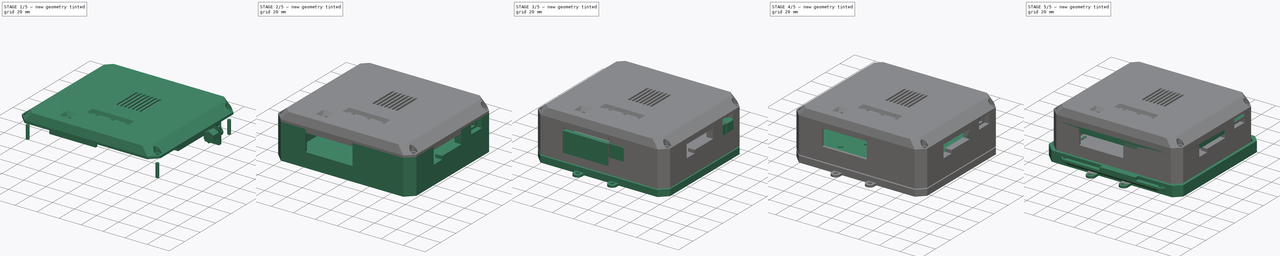
[diagram: build sequence overview — one tinted view per stage of 5, left to right]
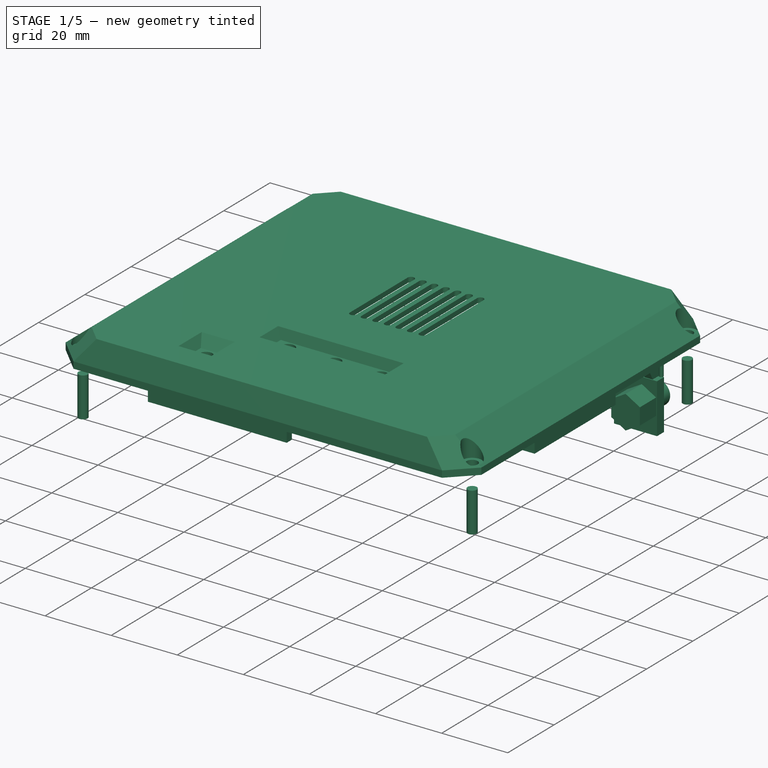
[diagram: stage 1 of 5 — iso view after this stage's code; geometry added in this stage tinted green]
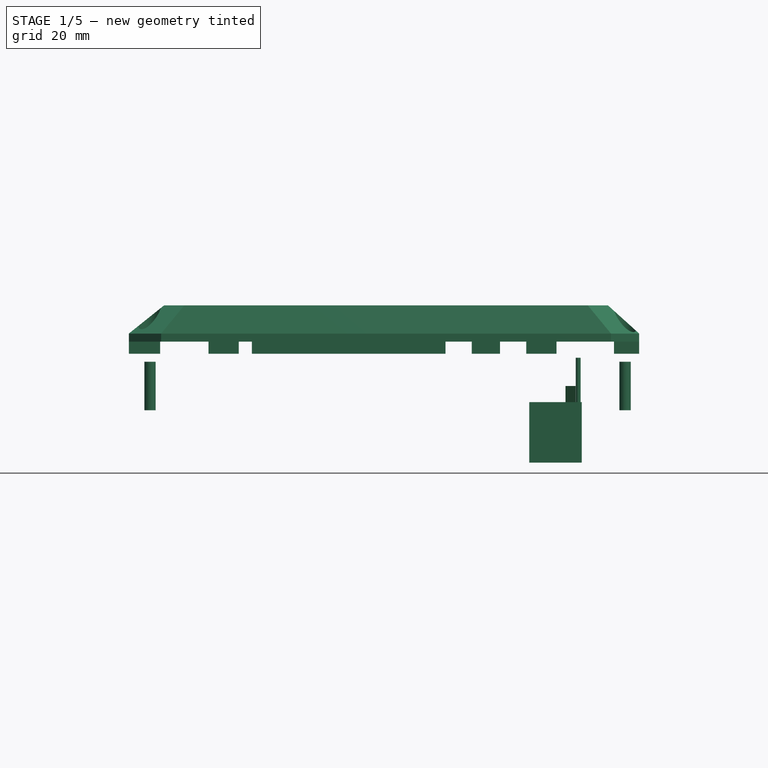
[diagram: stage 1 of 5 — front view after this stage's code; geometry added in this stage tinted green]
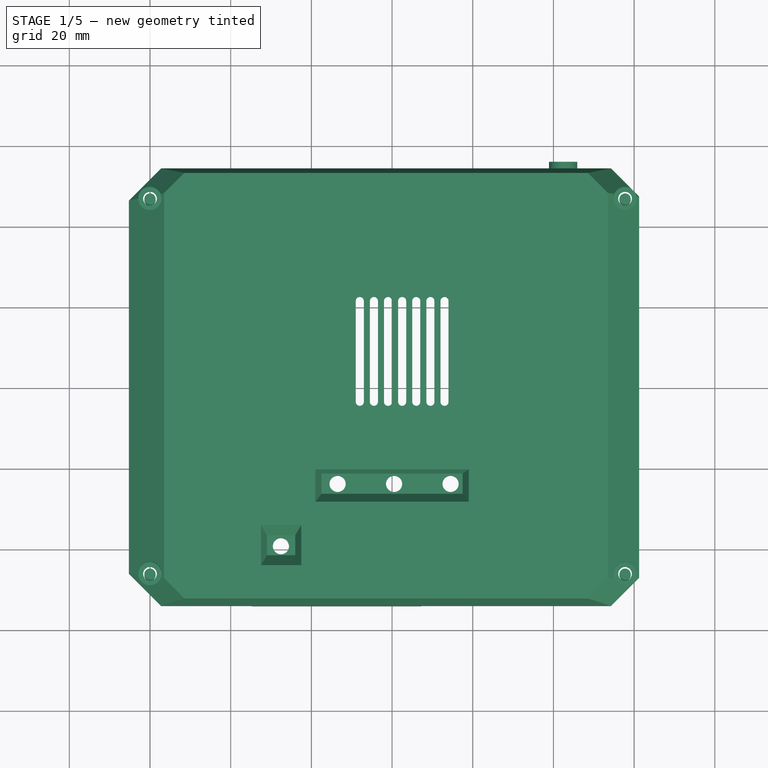
[diagram: stage 1 of 5 — top view after this stage's code; geometry added in this stage tinted green]
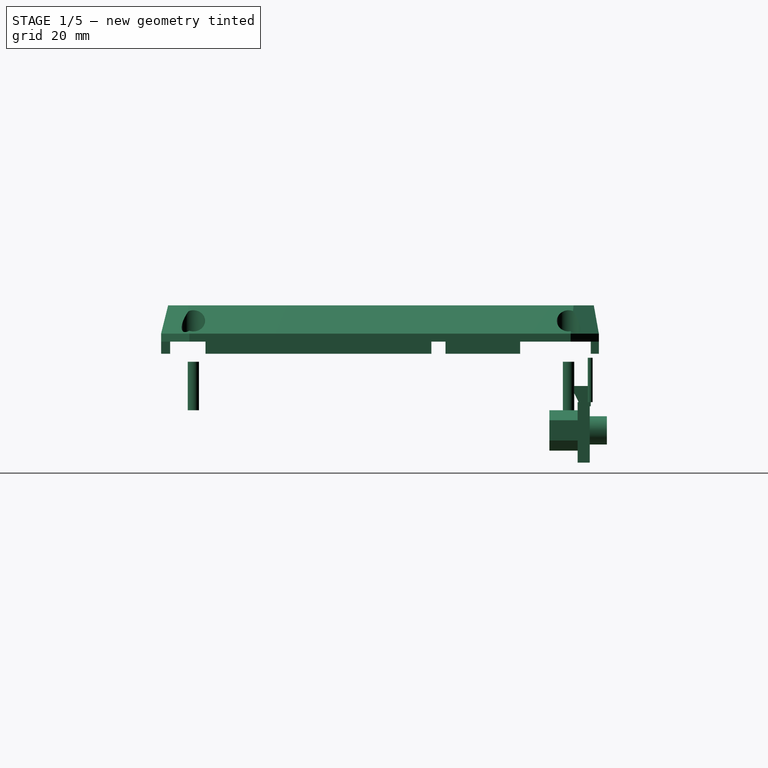
[diagram: stage 1 of 5 — right view after this stage's code; geometry added in this stage tinted green]
FCSTD DOCUMENT  (FreeCAD 0.17R13320 (Git))
Label: coibri2-box
License: All rights reserved
LicenseURL: http://en.wikipedia.org/wiki/All_rights_reserved
objects: Sketcher::SketchObject×49, Part::Extrusion×29, Part::Box×26, Part::MultiFuse×17, Part::Cut×11, Part::Loft×8, Part::Cylinder×4, Part::Feature×2, Part::Prism×2, Part::FeaturePython×2
note: 150 computed .brp shape members not serialized (recipe doc carries the construction recipe); baked Part::Feature solids carry a one-line shape summary decoded from their .brp

FEATURE [Part::Extrusion] Extrude093
  Base = -> Sketch104
  Dir = (0,0,-12)
  DirMode = 0
  FaceMakerClass = Part::FaceMakerExtrusion
  LengthFwd = 0
  LengthRev = 0
  Solid = true
  Symmetric = false
FEATURE [Part::Box] Box026  label="Cube026"
  AttacherType = Attacher::AttachEngine3D
  Height = 15
  Length = 13
  Placement = pos=(34,48.75,2) rot=(0,0,1;0rad)
  Width = 3
FEATURE [Part::Prism] Prism001
  AttacherType = Attacher::AttachEngine3D
  Circumradius = 5
  Height = 10
  Placement = pos=(42.4,51.75,10) rot=(0.935113,-0.250563,0.250563;1.63783rad)
  Polygon = 6
FEATURE [Part::Cylinder] Cylinder007
  Angle = 360
  AttacherType = Attacher::AttachEngine3D
  Height = 8
  Placement = pos=(42.4,48,10) rot=(-1,0,0;1.5708rad)
  Radius = 3.5
FEATURE [Sketcher::SketchObject] Sketch105
  MapMode = 5
  Placement = pos=(0,0,0) rot=(0.57735,0.57735,0.57735;2.0944rad)
  sketch-geometry (4):
    g0: LineSegment StartX=0 StartY=0 StartZ=0 EndX=0 EndY=5 EndZ=0
    g1: LineSegment StartX=0 StartY=5 StartZ=0 EndX=-5 EndY=5 EndZ=0
    g2: LineSegment StartX=-5 StartY=5 StartZ=0 EndX=-2.5 EndY=0 EndZ=0
    g3: LineSegment StartX=-2.5 StartY=0 StartZ=0 EndX=0 EndY=0 EndZ=0
  constraints (11):
    c: Coincident(g-1,g0)
    c: Vertical(g0)
    c: Coincident(g0,g1)
    c: Horizontal(g1)
    c: DistanceX(g1,g1) = 5
    c: Coincident(g1,g2)
    c: PointOnObject(g2,g-1)
    c: Coincident(g2,g3)
    c: Coincident(g3,g-1)
    c: DistanceY(g0,g0) = 5
    c: DistanceX(g3,g3) = 2.5
FEATURE [Part::Extrusion] Extrude094
  Base = -> Sketch105
  Dir = (2.5,0,0)
  DirMode = 0
  FaceMakerClass = Part::FaceMakerExtrusion
  LengthFwd = 0
  LengthRev = 0
  Placement = pos=(43,52,16) rot=(0,0,1;0rad)
  Solid = true
  Symmetric = false
FEATURE [Part::Cylinder] Cylinder008
  Angle = 360
  AttacherType = Attacher::AttachEngine3D
  Height = 11
  Placement = pos=(46.125,51.85,17) rot=(0,0,1;0rad)
  Radius = 0.6
FEATURE [Part::MultiFuse] Fusion035005
  Shapes = -> [Prism001,Cylinder007,Cylinder008]
FEATURE [Sketcher::SketchObject] Sketch106
  MapMode = 5
  sketch-geometry (12):
    g0: LineSegment StartX=54.25 StartY=-54.5 StartZ=0 EndX=-57.25 EndY=-54.5 EndZ=0
    g1: LineSegment [constr] StartX=50.25 StartY=47.25 StartZ=0 EndX=50.25 EndY=-47.25 EndZ=0
    g2: LineSegment [constr] StartX=50.25 StartY=-47.25 StartZ=0 EndX=-50.25 EndY=-47.25 EndZ=0
    g3: LineSegment [constr] StartX=-50.25 StartY=-47.25 StartZ=0 EndX=-50.25 EndY=47.25 EndZ=0
    g4: LineSegment [constr] StartX=-50.25 StartY=47.25 StartZ=0 EndX=50.25 EndY=47.25 EndZ=0
    g5: LineSegment StartX=-57.25 StartY=54 StartZ=0 EndX=54.25 EndY=54 EndZ=0
    g6: LineSegment StartX=-57.25 StartY=54 StartZ=0 EndX=-65.25 EndY=46 EndZ=0
    g7: LineSegment StartX=-65.25 StartY=46 StartZ=0 EndX=-65.25 EndY=-46.5 EndZ=0
    g8: LineSegment StartX=-65.25 StartY=-46.5 StartZ=0 EndX=-57.25 EndY=-54.5 EndZ=0
    g9: LineSegment StartX=54.25 StartY=54 StartZ=0 EndX=61.25 EndY=47 EndZ=0
    g10: LineSegment StartX=61.25 StartY=47 StartZ=0 EndX=61.25 EndY=-47.5 EndZ=0
    g11: LineSegment StartX=61.25 StartY=-47.5 StartZ=0 EndX=54.25 EndY=-54.5 EndZ=0
  constraints (36):
    c: Horizontal(g0)
    c: Coincident(g1,g2)
    c: Coincident(g2,g3)
    c: Vertical(g1)
    c: Vertical(g3)
    c: Symmetric(g3,g2,g-1)
    c: Coincident(g4,g1)
    c: Horizontal(g4)
    c: Symmetric(g2,g1,g-2)
    c: DistanceY(g1,g1) = 94.5
    c: Symmetric(g1,g1,g-1)
    c: Coincident(g4,g3)
    c: DistanceX(g2,g1) = 100.5
    c: Horizontal(g5)
    c: DistanceX(g1,g5) = 4
    c: DistanceX(g5,g3) = 7
    c: Coincident(g6,g7)
    c: Vertical(g7)
    c: Coincident(g7,g8)
    c: Equal(g6,g8)
    c: Coincident(g8,g0)
    c: Coincident(g6,g5)
    c: Angle(g7,g6) = 2.35619
    c: DistanceX(g6,g5) = 8
    c: Coincident(g9,g10)
    c: Vertical(g10)
    c: Coincident(g10,g11)
    c: Equal(g11,g9)
    c: Coincident(g9,g5)
    c: Coincident(g11,g0)
    c: Equal(g0,g5)
    c: Angle(g9,g10) = 2.35619
    c: DistanceX(g5,g9) = 7
    c: DistanceY(g0,g2) = 7.25
    c: Angle(g8,g7) = 2.35619
    c: DistanceY(g3,g5) = 6.75
FEATURE [Sketcher::SketchObject] Sketch107
  MapMode = 5
  Placement = pos=(0,0,9) rot=(0,0,1;0rad)
  sketch-geometry (12):
    g0: LineSegment StartX=48.5 StartY=-52.75 StartZ=0 EndX=-51.5 EndY=-52.75 EndZ=0
    g1: LineSegment [constr] StartX=43.5 StartY=45 StartZ=0 EndX=43.5 EndY=-45 EndZ=0
    g2: LineSegment [constr] StartX=43.5 StartY=-45 StartZ=0 EndX=-43.5 EndY=-45 EndZ=0
    g3: LineSegment [constr] StartX=-43.5 StartY=-45 StartZ=0 EndX=-43.5 EndY=45 EndZ=0
    g4: LineSegment [constr] StartX=-43.5 StartY=45 StartZ=0 EndX=43.5 EndY=45 EndZ=0
    g5: LineSegment StartX=-51.5 StartY=52.75 StartZ=0 EndX=48.5 EndY=52.75 EndZ=0
    g6: LineSegment StartX=-51.5 StartY=52.75 StartZ=0 EndX=-56.5 EndY=47.75 EndZ=0
    g7: LineSegment StartX=-56.5 StartY=47.75 StartZ=0 EndX=-56.5 EndY=-47.75 EndZ=0
    g8: LineSegment StartX=-56.5 StartY=-47.75 StartZ=0 EndX=-51.5 EndY=-52.75 EndZ=0
    g9: LineSegment StartX=48.5 StartY=52.75 StartZ=0 EndX=53.5 EndY=47.75 EndZ=0
    g10: LineSegment StartX=53.5 StartY=47.75 StartZ=0 EndX=53.5 EndY=-47.75 EndZ=0
    g11: LineSegment StartX=53.5 StartY=-47.75 StartZ=0 EndX=48.5 EndY=-52.75 EndZ=0
  constraints (35):
    c: Horizontal(g0)
    c: Symmetric(g5,g0,g-1)
    c: Coincident(g1,g2)
    c: Coincident(g2,g3)
    c: Vertical(g1)
    c: Vertical(g3)
    c: Symmetric(g3,g2,g-1)
    c: Coincident(g4,g1)
    c: Horizontal(g4)
    c: Symmetric(g2,g1,g-2)
    c: DistanceY(g1,g1) = 90
    c: Symmetric(g1,g1,g-1)
    c: Coincident(g4,g3)
    c: DistanceX(g2,g1) = 87
    c: Horizontal(g5)
    c: DistanceX(g1,g5) = 5
    c: DistanceX(g5,g3) = 8
    c: Coincident(g6,g7)
    c: Vertical(g7)
    c: Coincident(g7,g8)
    c: Equal(g6,g8)
    c: Coincident(g8,g0)
    c: Coincident(g6,g5)
    c: Angle(g7,g6) = 2.35619
    c: DistanceX(g6,g5) = 5
    c: Coincident(g9,g10)
    c: Vertical(g10)
    c: Coincident(g10,g11)
    c: Equal(g11,g9)
    c: Coincident(g9,g5)
    c: Coincident(g11,g0)
    c: Equal(g0,g5)
    c: Angle(g9,g10) = 2.35619
    c: DistanceX(g5,g9) = 5
    c: DistanceY(g0,g2) = 7.75
FEATURE [Sketcher::SketchObject] Sketch108
  MapMode = 5
  sketch-geometry (12):
    g0: LineSegment StartX=47.5 StartY=-52.25 StartZ=0 EndX=-50.5 EndY=-52.25 EndZ=0
    g1: LineSegment [constr] StartX=43.5 StartY=45.25 StartZ=0 EndX=43.5 EndY=-45.25 EndZ=0
    g2: LineSegment [constr] StartX=43.5 StartY=-45.25 StartZ=0 EndX=-43.5 EndY=-45.25 EndZ=0
    g3: LineSegment [constr] StartX=-43.5 StartY=-45.25 StartZ=0 EndX=-43.5 EndY=45.25 EndZ=0
    g4: LineSegment [constr] StartX=-43.5 StartY=45.25 StartZ=0 EndX=43.5 EndY=45.25 EndZ=0
    g5: LineSegment StartX=-50.5 StartY=51.75 StartZ=0 EndX=47.5 EndY=51.75 EndZ=0
    g6: LineSegment StartX=-50.5 StartY=51.75 StartZ=0 EndX=-57.5 EndY=44.75 EndZ=0
    g7: LineSegment StartX=-57.5 StartY=44.75 StartZ=0 EndX=-57.5 EndY=-45.25 EndZ=0
    g8: LineSegment StartX=-57.5 StartY=-45.25 StartZ=0 EndX=-50.5 EndY=-52.25 EndZ=0
    g9: LineSegment StartX=47.5 StartY=51.75 StartZ=0 EndX=55 EndY=44.25 EndZ=0
    g10: LineSegment StartX=55 StartY=44.25 StartZ=0 EndX=55 EndY=-44.75 EndZ=0
    g11: LineSegment StartX=55 StartY=-44.75 StartZ=0 EndX=47.5 EndY=-52.25 EndZ=0
  constraints (36):
    c: Horizontal(g0)
    c: Coincident(g1,g2)
    c: Coincident(g2,g3)
    c: Vertical(g1)
    c: Vertical(g3)
    c: Symmetric(g3,g2,g-1)
    c: Coincident(g4,g1)
    c: Horizontal(g4)
    c: Symmetric(g2,g1,g-2)
    c: DistanceY(g1,g1) = 90.5
    c: Symmetric(g1,g1,g-1)
    c: Coincident(g4,g3)
    c: DistanceX(g2,g1) = 87
    c: Horizontal(g5)
    c: DistanceX(g1,g5) = 4
    c: DistanceX(g5,g3) = 7
    c: Coincident(g6,g7)
    c: Vertical(g7)
    c: Coincident(g7,g8)
    c: Equal(g6,g8)
    c: Coincident(g8,g0)
    c: Coincident(g6,g5)
    c: Angle(g7,g6) = 2.35619
    c: DistanceX(g6,g5) = 7
    c: Coincident(g9,g10)
    c: Vertical(g10)
    c: Coincident(g10,g11)
    c: Equal(g11,g9)
    c: Coincident(g9,g5)
    c: Coincident(g11,g0)
    c: Equal(g0,g5)
    c: Angle(g9,g10) = 2.35619
    c: DistanceX(g5,g9) = 7.5
    c: DistanceY(g0,g2) = 7
    c: Angle(g8,g7) = 2.35619
    c: DistanceY(g3,g5) = 6.5
FEATURE [Sketcher::SketchObject] Sketch109
  MapMode = 5
  Placement = pos=(0,0,4.5) rot=(0,0,1;0rad)
  sketch-geometry (12):
    g0: LineSegment StartX=45 StartY=-51.75 StartZ=0 EndX=-48 EndY=-51.75 EndZ=0
    g1: LineSegment [constr] StartX=41 StartY=44 StartZ=0 EndX=41 EndY=-44 EndZ=0
    g2: LineSegment [constr] StartX=41 StartY=-44 StartZ=0 EndX=-41 EndY=-44 EndZ=0
    g3: LineSegment [constr] StartX=-41 StartY=-44 StartZ=0 EndX=-41 EndY=44 EndZ=0
    g4: LineSegment [constr] StartX=-41 StartY=44 StartZ=0 EndX=41 EndY=44 EndZ=0
    g5: LineSegment StartX=-48 StartY=51.75 StartZ=0 EndX=45 EndY=51.75 EndZ=0
    g6: LineSegment StartX=-48 StartY=51.75 StartZ=0 EndX=-56 EndY=43.75 EndZ=0
    g7: LineSegment StartX=-56 StartY=43.75 StartZ=0 EndX=-56 EndY=-43.75 EndZ=0
    g8: LineSegment StartX=-56 StartY=-43.75 StartZ=0 EndX=-48 EndY=-51.75 EndZ=0
    g9: LineSegment StartX=45 StartY=51.75 StartZ=0 EndX=53 EndY=43.75 EndZ=0
    g10: LineSegment StartX=53 StartY=43.75 StartZ=0 EndX=53 EndY=-43.75 EndZ=0
    g11: LineSegment StartX=53 StartY=-43.75 StartZ=0 EndX=45 EndY=-51.75 EndZ=0
  constraints (35):
    c: Horizontal(g0)
    c: Symmetric(g5,g0,g-1)
    c: Coincident(g1,g2)
    c: Coincident(g2,g3)
    c: Vertical(g1)
    c: Vertical(g3)
    c: Symmetric(g3,g2,g-1)
    c: Coincident(g4,g1)
    c: Horizontal(g4)
    c: Symmetric(g2,g1,g-2)
    c: DistanceY(g1,g1) = 88
    c: Symmetric(g1,g1,g-1)
    c: Coincident(g4,g3)
    c: DistanceX(g2,g1) = 82
    c: Horizontal(g5)
    c: DistanceX(g1,g5) = 4
    c: DistanceX(g5,g3) = 7
    c: Coincident(g6,g7)
    c: Vertical(g7)
    c: Coincident(g7,g8)
    c: Equal(g6,g8)
    c: Coincident(g8,g0)
    c: Coincident(g6,g5)
    c: Angle(g7,g6) = 2.35619
    c: DistanceX(g6,g5) = 8
    c: Coincident(g9,g10)
    c: Vertical(g10)
    c: Coincident(g10,g11)
    c: Equal(g11,g9)
    c: Coincident(g9,g5)
    c: Coincident(g11,g0)
    c: Equal(g0,g5)
    c: Angle(g9,g10) = 2.35619
    c: DistanceX(g5,g9) = 8
    c: DistanceY(g0,g2) = 7.75
FEATURE [Part::Loft] Loft004
  Closed = false
  MaxDegree = 5
  Ruled = true
  Sections = -> [Sketch108,Sketch109]
  Solid = true
FEATURE [Sketcher::SketchObject] Sketch110
  MapMode = 5
  sketch-geometry (12):
    g0: LineSegment StartX=-52 StartY=43 StartZ=0 EndX=52 EndY=43 EndZ=0
    g1: LineSegment StartX=52 StartY=43 StartZ=0 EndX=52 EndY=-21 EndZ=0
    g2: LineSegment StartX=52 StartY=-21 StartZ=0 EndX=-52 EndY=-21 EndZ=0
    g3: LineSegment StartX=-52 StartY=-21 StartZ=0 EndX=-52 EndY=43 EndZ=0
    g4: LineSegment StartX=18.5 StartY=-33 StartZ=0 EndX=23.5 EndY=-33 EndZ=0
    g5: LineSegment StartX=23.5 StartY=-33 StartZ=0 EndX=23.5 EndY=-39 EndZ=0
    g6: LineSegment StartX=23.5 StartY=-39 StartZ=0 EndX=18.5 EndY=-39 EndZ=0
    g7: LineSegment StartX=18.5 StartY=-39 StartZ=0 EndX=18.5 EndY=-33 EndZ=0
    g8: LineSegment StartX=5 StartY=-46 StartZ=0 EndX=14 EndY=-46 EndZ=0
    g9: LineSegment StartX=14 StartY=-46 StartZ=0 EndX=14 EndY=-49 EndZ=0
    g10: LineSegment StartX=14 StartY=-49 StartZ=0 EndX=5 EndY=-49 EndZ=0
    g11: LineSegment StartX=5 StartY=-49 StartZ=0 EndX=5 EndY=-46 EndZ=0
  constraints (36):
    c: Coincident(g0,g1)
    c: Coincident(g1,g2)
    c: Coincident(g2,g3)
    c: Coincident(g3,g0)
    c: Horizontal(g0)
    c: Horizontal(g2)
    c: Vertical(g1)
    c: Vertical(g3)
    c: Symmetric(g0,g0,g-2)
    c: DistanceX(g0,g0) = 104
    c: DistanceY(g1,g-1) = 21
    c: DistanceY(g-1,g0) = 43
    c: Coincident(g4,g5)
    c: Coincident(g5,g6)
    c: Coincident(g6,g7)
    c: Coincident(g7,g4)
    c: Horizontal(g4)
    c: Horizontal(g6)
    c: Vertical(g5)
    c: Vertical(g7)
    c: Coincident(g8,g9)
    c: Coincident(g9,g10)
    c: Coincident(g10,g11)
    c: Coincident(g11,g8)
    c: Horizontal(g8)
    c: Horizontal(g10)
    c: Vertical(g9)
    c: Vertical(g11)
    c: DistanceX(g8,g8) = 9
    c: DistanceY(g9,g9) = 3
    c: DistanceY(g7,g7) = 6
    c: DistanceY(g6,g-1) = 39
    c: DistanceX(g-1,g4) = 18.5
    c: DistanceY(g10,g-1) = 49
    c: DistanceX(g-1,g8) = 5
    c: DistanceX(g4,g4) = 5
FEATURE [Part::Extrusion] Extrude095
  Base = -> Sketch110
  Dir = (0,0,5)
  DirMode = 0
  FaceMakerClass = Part::FaceMakerExtrusion
  LengthFwd = 0
  LengthRev = 0
  Placement = pos=(0,0,2.5) rot=(0,0,1;0rad)
  Solid = true
  Symmetric = false
FEATURE [Sketcher::SketchObject] Sketch111
  MapMode = 5
  sketch-geometry (8):
    g0: Circle CenterX=-60 CenterY=46.5 CenterZ=0 NormalX=0 NormalY=0 NormalZ=1 AngleXU=0 Radius=1.7
    g1: Circle CenterX=57.75 CenterY=46.5 CenterZ=0 NormalX=0 NormalY=0 NormalZ=1 AngleXU=0 Radius=1.7
    g2: Circle CenterX=-60 CenterY=-46.5 CenterZ=0 NormalX=0 NormalY=0 NormalZ=1 AngleXU=0 Radius=1.7
    g3: Circle CenterX=57.75 CenterY=-46.5 CenterZ=0 NormalX=0 NormalY=0 NormalZ=1 AngleXU=0 Radius=1.7
    g4: LineSegment [constr] StartX=-60 StartY=46.5 StartZ=0 EndX=57.75 EndY=46.5 EndZ=0
    g5: LineSegment [constr] StartX=57.75 StartY=46.5 StartZ=0 EndX=57.75 EndY=-46.5 EndZ=0
    g6: LineSegment [constr] StartX=57.75 StartY=-46.5 StartZ=0 EndX=-60 EndY=-46.5 EndZ=0
    g7: LineSegment [constr] StartX=-60 StartY=-46.5 StartZ=0 EndX=-60 EndY=46.5 EndZ=0
  constraints (20):
    c: Radius(g0) = 1.7
    c: Equal(g0,g1)
    c: Equal(g0,g3)
    c: Equal(g0,g2)
    c: Coincident(g4,g5)
    c: Coincident(g5,g6)
    c: Coincident(g6,g7)
    c: Coincident(g7,g4)
    c: Horizontal(g4)
    c: Horizontal(g6)
    c: Vertical(g5)
    c: Vertical(g7)
    c: Coincident(g4,g0)
    c: Coincident(g5,g3)
    c: Coincident(g1,g4)
    c: Coincident(g2,g6)
    c: Symmetric(g2,g0,g-1)
    c: DistanceY(g7,g7) = 93
    c: DistanceX(g2,g-1) = 60
    c: DistanceX(g-1,g3) = 57.75
FEATURE [Part::Extrusion] Extrude096
  Base = -> Sketch111
  Dir = (0,0,5)
  DirMode = 0
  FaceMakerClass = Part::FaceMakerExtrusion
  LengthFwd = 0
  LengthRev = 0
  Solid = true
  Symmetric = false
FEATURE [Sketcher::SketchObject] Sketch112
  MapMode = 5
  sketch-geometry (8):
    g0: Circle CenterX=-60 CenterY=46.5 CenterZ=0 NormalX=0 NormalY=0 NormalZ=1 AngleXU=0 Radius=2.9
    g1: Circle CenterX=57.75 CenterY=46.5 CenterZ=0 NormalX=0 NormalY=0 NormalZ=1 AngleXU=0 Radius=2.9
    g2: Circle CenterX=-60 CenterY=-46.5 CenterZ=0 NormalX=0 NormalY=0 NormalZ=1 AngleXU=0 Radius=2.9
    g3: Circle CenterX=57.75 CenterY=-46.5 CenterZ=0 NormalX=0 NormalY=0 NormalZ=1 AngleXU=0 Radius=2.9
    g4: LineSegment [constr] StartX=-60 StartY=46.5 StartZ=0 EndX=57.75 EndY=46.5 EndZ=0
    g5: LineSegment [constr] StartX=57.75 StartY=46.5 StartZ=0 EndX=57.75 EndY=-46.5 EndZ=0
    g6: LineSegment [constr] StartX=57.75 StartY=-46.5 StartZ=0 EndX=-60 EndY=-46.5 EndZ=0
    g7: LineSegment [constr] StartX=-60 StartY=-46.5 StartZ=0 EndX=-60 EndY=46.5 EndZ=0
  constraints (20):
    c: Radius(g0) = 2.9
    c: Equal(g0,g1)
    c: Equal(g0,g3)
    c: Equal(g0,g2)
    c: Coincident(g4,g5)
    c: Coincident(g5,g6)
    c: Coincident(g6,g7)
    c: Coincident(g7,g4)
    c: Horizontal(g4)
    c: Horizontal(g6)
    c: Vertical(g5)
    c: Vertical(g7)
    c: Coincident(g4,g0)
    c: Coincident(g5,g3)
    c: Coincident(g1,g4)
    c: Coincident(g2,g6)
    c: Symmetric(g2,g0,g-1)
    c: DistanceY(g7,g7) = 93
    c: DistanceX(g2,g-1) = 60
    c: DistanceX(g-1,g3) = 57.75
FEATURE [Part::Extrusion] Extrude097
  Base = -> Sketch112
  Dir = (0,0,10)
  DirMode = 0
  FaceMakerClass = Part::FaceMakerExtrusion
  LengthFwd = 0
  LengthRev = 0
  Placement = pos=(0,0,2) rot=(0,0,1;0rad)
  Solid = true
  Symmetric = false
FEATURE [Part::MultiFuse] Fusion035007
  Shapes = -> [Extrude096,Extrude097]
FEATURE [Sketcher::SketchObject] Sketch113
  MapMode = 5
  sketch-geometry (38):
    g0: ArcOfCircle CenterX=-8 CenterY=21 CenterZ=0 NormalX=0 NormalY=0 NormalZ=1 AngleXU=0 Radius=1 StartAngle=0 EndAngle=3.14159
    g1: ArcOfCircle CenterX=-8 CenterY=-4 CenterZ=0 NormalX=0 NormalY=0 NormalZ=1 AngleXU=0 Radius=1 StartAngle=3.14159 EndAngle=6.28319
    g2: LineSegment StartX=-9 StartY=21 StartZ=0 EndX=-9 EndY=-4 EndZ=0
    g3: LineSegment StartX=-7 StartY=21 StartZ=0 EndX=-7 EndY=-4 EndZ=0
    g4: ArcOfCircle CenterX=-4.5 CenterY=21 CenterZ=0 NormalX=0 NormalY=0 NormalZ=1 AngleXU=0 Radius=1 StartAngle=0 EndAngle=3.14159
    g5: ArcOfCircle CenterX=-4.5 CenterY=-4 CenterZ=0 NormalX=0 NormalY=0 NormalZ=1 AngleXU=0 Radius=1 StartAngle=3.14159 EndAngle=6.28319
    g6: LineSegment StartX=-5.5 StartY=21 StartZ=0 EndX=-5.5 EndY=-4 EndZ=0
    g7: LineSegment StartX=-3.5 StartY=21 StartZ=0 EndX=-3.5 EndY=-4 EndZ=0
    g8: ArcOfCircle CenterX=-1 CenterY=21 CenterZ=0 NormalX=0 NormalY=0 NormalZ=1 AngleXU=0 Radius=1 StartAngle=0 EndAngle=3.14159
    g9: ArcOfCircle CenterX=-1 CenterY=-4 CenterZ=0 NormalX=0 NormalY=0 NormalZ=1 AngleXU=0 Radius=1 StartAngle=3.14159 EndAngle=6.28319
    g10: LineSegment StartX=-2 StartY=21 StartZ=0 EndX=-2 EndY=-4 EndZ=0
    g11: LineSegment StartX=0 StartY=21 StartZ=0 EndX=0 EndY=-4 EndZ=0
    g12: ArcOfCircle CenterX=2.5 CenterY=21 CenterZ=0 NormalX=0 NormalY=0 NormalZ=1 AngleXU=0 Radius=1 StartAngle=0 EndAngle=3.14159
    g13: ArcOfCircle CenterX=2.5 CenterY=-4 CenterZ=0 NormalX=0 NormalY=0 NormalZ=1 AngleXU=0 Radius=1 StartAngle=3.14159 EndAngle=6.28319
    g14: LineSegment StartX=1.5 StartY=21 StartZ=0 EndX=1.5 EndY=-4 EndZ=0
    g15: LineSegment StartX=3.5 StartY=21 StartZ=0 EndX=3.5 EndY=-4 EndZ=0
    g16: ArcOfCircle CenterX=13 CenterY=21 CenterZ=0 NormalX=0 NormalY=0 NormalZ=1 AngleXU=0 Radius=1 StartAngle=0 EndAngle=3.14159
    g17: ArcOfCircle CenterX=13 CenterY=-4 CenterZ=0 NormalX=0 NormalY=0 NormalZ=1 AngleXU=0 Radius=1 StartAngle=3.14159 EndAngle=6.28319
    g18: LineSegment StartX=12 StartY=21 StartZ=0 EndX=12 EndY=-4 EndZ=0
    g19: LineSegment StartX=14 StartY=21 StartZ=0 EndX=14 EndY=-4 EndZ=0
    g20: LineSegment [constr] StartX=-8 StartY=21 StartZ=0 EndX=13 EndY=21 EndZ=0
    g21: LineSegment [constr] StartX=13 StartY=21 StartZ=0 EndX=13 EndY=-4 EndZ=0
    g22: LineSegment [constr] StartX=13 StartY=-4 StartZ=0 EndX=-8 EndY=-4 EndZ=0
    g23: LineSegment [constr] StartX=-8 StartY=-4 StartZ=0 EndX=-8 EndY=21 EndZ=0
    g24: ArcOfCircle CenterX=6 CenterY=21 CenterZ=0 NormalX=0 NormalY=0 NormalZ=1 AngleXU=0 Radius=1 StartAngle=0 EndAngle=3.14159
    g25: ArcOfCircle CenterX=6 CenterY=-4 CenterZ=0 NormalX=0 NormalY=0 NormalZ=1 AngleXU=0 Radius=1 StartAngle=3.14159 EndAngle=6.28319
    g26: LineSegment StartX=5 StartY=21 StartZ=0 EndX=5 EndY=-4 EndZ=0
    g27: LineSegment StartX=7 StartY=21 StartZ=0 EndX=7 EndY=-4 EndZ=0
    g28: ArcOfCircle CenterX=9.5 CenterY=21 CenterZ=0 NormalX=0 NormalY=0 NormalZ=1 AngleXU=0 Radius=1 StartAngle=0 EndAngle=3.14159
    g29: ArcOfCircle CenterX=9.5 CenterY=-4 CenterZ=0 NormalX=0 NormalY=0 NormalZ=1 AngleXU=0 Radius=1 StartAngle=3.14159 EndAngle=6.28319
    g30: LineSegment StartX=8.5 StartY=21 StartZ=0 EndX=8.5 EndY=-4 EndZ=0
    g31: LineSegment StartX=10.5 StartY=21 StartZ=0 EndX=10.5 EndY=-4 EndZ=0
    g32: Circle CenterX=-13.5 CenterY=-24.3 CenterZ=0 NormalX=0 NormalY=0 NormalZ=1 AngleXU=0 Radius=2
    g33: LineSegment [constr] StartX=-13.5 StartY=-24.3 StartZ=0 EndX=0.5 EndY=-24.3 EndZ=0
    g34: LineSegment [constr] StartX=0.5 StartY=-24.3 StartZ=0 EndX=14.5 EndY=-24.3 EndZ=0
    g35: Circle CenterX=0.5 CenterY=-24.3 CenterZ=0 NormalX=0 NormalY=0 NormalZ=1 AngleXU=0 Radius=2
    g36: Circle CenterX=14.5 CenterY=-24.3 CenterZ=0 NormalX=0 NormalY=0 NormalZ=1 AngleXU=0 Radius=2
    g37: Circle CenterX=-27.55 CenterY=-39.75 CenterZ=0 NormalX=0 NormalY=0 NormalZ=1 AngleXU=0 Radius=2
  constraints (96):
    c: Tangent(g0,g3) = 1.5708
    c: Tangent(g0,g2) = -1.5708
    c: Tangent(g2,g1) = -1.5708
    c: Tangent(g3,g1) = 1.5708
    c: Vertical(g2)
    c: Equal(g0,g1)
    c: Tangent(g4,g7) = 1.5708
    c: Tangent(g4,g6) = -1.5708
    c: Tangent(g6,g5) = -1.5708
    c: Tangent(g7,g5) = 1.5708
    c: Vertical(g6)
    c: Equal(g4,g5)
    c: Tangent(g8,g11) = 1.5708
    c: Tangent(g8,g10) = -1.5708
    c: Tangent(g10,g9) = -1.5708
    c: Tangent(g11,g9) = 1.5708
    c: Vertical(g10)
    c: Equal(g8,g9)
    c: Tangent(g12,g15) = 1.5708
    c: Tangent(g12,g14) = -1.5708
    c: Tangent(g14,g13) = -1.5708
    c: Tangent(g15,g13) = 1.5708
    c: Vertical(g14)
    c: Equal(g12,g13)
    c: Tangent(g16,g19) = 1.5708
    c: Tangent(g16,g18) = -1.5708
    c: Tangent(g18,g17) = -1.5708
    c: Tangent(g19,g17) = 1.5708
    c: Vertical(g18)
    c: Equal(g16,g17)
    c: Radius(g0) = 1
    c: Equal(g0,g4)
    c: Equal(g0,g8)
    c: Equal(g0,g12)
    c: Equal(g0,g16)
    c: Equal(g2,g6)
    c: Equal(g6,g10)
    c: Equal(g10,g14)
    c: Equal(g14,g18)
    c: Coincident(g20,g21)
    c: Coincident(g21,g22)
    c: Coincident(g22,g23)
    c: Coincident(g23,g20)
    c: Horizontal(g20)
    c: Horizontal(g22)
    c: Vertical(g21)
    c: Vertical(g23)
    c: Coincident(g20,g0)
    c: Coincident(g21,g17)
    c: PointOnObject(g4,g20)
    c: PointOnObject(g8,g20)
    c: PointOnObject(g12,g20)
    c: Coincident(g16,g20)
    c: DistanceY(g23,g23) = 25
    c: DistanceX(g0,g4) = 3.5
    c: DistanceX(g4,g8) = 3.5
    c: DistanceX(g8,g12) = 3.5
    c: Tangent(g24,g27) = 1.5708
    c: Tangent(g24,g26) = -1.5708
    c: Tangent(g26,g25) = -1.5708
    c: Tangent(g27,g25) = 1.5708
    c: Vertical(g26)
    c: Equal(g24,g25)
    c: Tangent(g28,g31) = 1.5708
    c: Tangent(g28,g30) = -1.5708
    c: Tangent(g30,g29) = -1.5708
    c: Tangent(g31,g29) = 1.5708
    c: Vertical(g30)
    c: Equal(g28,g29)
    c: PointOnObject(g24,g20)
    c: PointOnObject(g28,g20)
    c: Equal(g28,g16)
    c: DistanceX(g12,g24) = 3.5
    c: DistanceX(g24,g28) = 3.5
    c: DistanceX(g28,g16) = 3.5
    c: Equal(g2,g26)
    c: Equal(g26,g30)
    c: DistanceX(g1,g-1) = 8
    c: DistanceY(g1,g-1) = 4
    c: Equal(g24,g0)
    c: Coincident(g33,g32)
    c: Horizontal(g33)
    c: Coincident(g34,g33)
    c: Horizontal(g34)
    c: Equal(g33,g34)
    c: DistanceX(g33,g33) = 14
    c: Coincident(g35,g33)
    c: Coincident(g36,g34)
    c: DistanceY(g32,g-1) = 24.3
    c: DistanceX(g32,g-1) = 13.5
    c: Radius(g32) = 2
    c: Equal(g32,g35)
    c: Equal(g32,g36)
    c: Equal(g32,g37)
    c: DistanceX(g37,g32) = 14.05
    c: DistanceY(g37,g32) = 15.45
FEATURE [Part::Extrusion] Extrude098
  Base = -> Sketch113
  Dir = (0,0,10)
  DirMode = 0
  FaceMakerClass = Part::FaceMakerExtrusion
  LengthFwd = 0
  LengthRev = 0
  Solid = true
  Symmetric = false
FEATURE [Sketcher::SketchObject] Sketch114
  MapMode = 5
  sketch-geometry (4):
    g0: LineSegment StartX=-17.5 StartY=2.5 StartZ=0 EndX=17.5 EndY=2.5 EndZ=0
    g1: LineSegment StartX=17.5 StartY=2.5 StartZ=0 EndX=17.5 EndY=-2.5 EndZ=0
    g2: LineSegment StartX=17.5 StartY=-2.5 StartZ=0 EndX=-17.5 EndY=-2.5 EndZ=0
    g3: LineSegment StartX=-17.5 StartY=-2.5 StartZ=0 EndX=-17.5 EndY=2.5 EndZ=0
  constraints (12):
    c: Coincident(g0,g1)
    c: Coincident(g1,g2)
    c: Coincident(g2,g3)
    c: Coincident(g3,g0)
    c: Horizontal(g0)
    c: Horizontal(g2)
    c: Vertical(g1)
    c: Vertical(g3)
    c: Symmetric(g0,g0,g-2)
    c: Symmetric(g2,g0,g-1)
    c: DistanceX(g0,g0) = 35
    c: DistanceY(g1,g1) = 5
FEATURE [Sketcher::SketchObject] Sketch115
  MapMode = 5
  Placement = pos=(0,0,3) rot=(0,0,1;0rad)
  sketch-geometry (4):
    g0: LineSegment StartX=-19 StartY=3.5 StartZ=0 EndX=19 EndY=3.5 EndZ=0
    g1: LineSegment StartX=19 StartY=3.5 StartZ=0 EndX=19 EndY=-4.5 EndZ=0
    g2: LineSegment StartX=19 StartY=-4.5 StartZ=0 EndX=-19 EndY=-4.5 EndZ=0
    g3: LineSegment StartX=-19 StartY=-4.5 StartZ=0 EndX=-19 EndY=3.5 EndZ=0
  constraints (12):
    c: Coincident(g0,g1)
    c: Coincident(g1,g2)
    c: Coincident(g2,g3)
    c: Coincident(g3,g0)
    c: Horizontal(g0)
    c: Horizontal(g2)
    c: Vertical(g1)
    c: Vertical(g3)
    c: Symmetric(g0,g0,g-2)
    c: DistanceX(g0,g0) = 38
    c: DistanceY(g1,g1) = 8
    c: DistanceY(g-1,g0) = 3.5
FEATURE [Part::Loft] Loft005
  Closed = false
  MaxDegree = 5
  Placement = pos=(0,-24.25,6) rot=(0,0,1;0rad)
  Ruled = true
  Sections = -> [Sketch114,Sketch115]
  Solid = true
FEATURE [Sketcher::SketchObject] Sketch116
  MapMode = 5
  sketch-geometry (4):
    g0: LineSegment StartX=-3.5 StartY=2.5 StartZ=0 EndX=3.5 EndY=2.5 EndZ=0
    g1: LineSegment StartX=3.5 StartY=2.5 StartZ=0 EndX=3.5 EndY=-2.5 EndZ=0
    g2: LineSegment StartX=3.5 StartY=-2.5 StartZ=0 EndX=-3.5 EndY=-2.5 EndZ=0
    g3: LineSegment StartX=-3.5 StartY=-2.5 StartZ=0 EndX=-3.5 EndY=2.5 EndZ=0
  constraints (12):
    c: Coincident(g0,g1)
    c: Coincident(g1,g2)
    c: Coincident(g2,g3)
    c: Coincident(g3,g0)
    c: Horizontal(g0)
    c: Horizontal(g2)
    c: Vertical(g1)
    c: Vertical(g3)
    c: Symmetric(g0,g0,g-2)
    c: Symmetric(g2,g0,g-1)
    c: DistanceX(g0,g0) = 7
    c: DistanceY(g1,g1) = 5
FEATURE [Sketcher::SketchObject] Sketch117
  MapMode = 5
  Placement = pos=(0,0,3) rot=(0,0,1;0rad)
  sketch-geometry (4):
    g0: LineSegment StartX=-5 StartY=5 StartZ=0 EndX=5 EndY=5 EndZ=0
    g1: LineSegment StartX=5 StartY=5 StartZ=0 EndX=5 EndY=-5 EndZ=0
    g2: LineSegment StartX=5 StartY=-5 StartZ=0 EndX=-5 EndY=-5 EndZ=0
    g3: LineSegment StartX=-5 StartY=-5 StartZ=0 EndX=-5 EndY=5 EndZ=0
  constraints (12):
    c: Coincident(g0,g1)
    c: Coincident(g1,g2)
    c: Coincident(g2,g3)
    c: Coincident(g3,g0)
    c: Horizontal(g0)
    c: Horizontal(g2)
    c: Vertical(g1)
    c: Vertical(g3)
    c: Symmetric(g0,g0,g-2)
    c: Symmetric(g2,g0,g-1)
    c: DistanceX(g0,g0) = 10
    c: DistanceY(g1,g1) = 10
FEATURE [Part::Loft] Loft006
  Closed = false
  MaxDegree = 5
  Placement = pos=(-27.5,-39.5,6) rot=(0,0,1;0rad)
  Ruled = true
  Sections = -> [Sketch116,Sketch117]
  Solid = true
FEATURE [Part::MultiFuse] Fusion035006
  Shapes = -> [Extrude095,Loft004,Fusion035007,Extrude098,Loft005,Loft006]
FEATURE [Sketcher::SketchObject] Sketch118
  MapMode = 5
  sketch-geometry (37):
    g0: LineSegment StartX=-65.25 StartY=12.5 StartZ=0 EndX=-57.5 EndY=12.5 EndZ=0
    g1: LineSegment StartX=-57.5 StartY=12.5 StartZ=0 EndX=-57.5 EndY=-43.5 EndZ=0
    g2: LineSegment StartX=-57.5 StartY=-43.5 StartZ=0 EndX=-65.25 EndY=-43.5 EndZ=0
    g3: LineSegment StartX=-65.25 StartY=-43.5 StartZ=0 EndX=-65.25 EndY=12.5 EndZ=0
    g4: LineSegment StartX=-61.5 StartY=33 StartZ=0 EndX=-57.5 EndY=33 EndZ=0
    g5: LineSegment StartX=-57.5 StartY=33 StartZ=0 EndX=-57.5 EndY=16 EndZ=0
    g6: LineSegment StartX=-57.5 StartY=16 StartZ=0 EndX=-61.5 EndY=16 EndZ=0
    g7: LineSegment StartX=-61.5 StartY=16 StartZ=0 EndX=-61.5 EndY=33 EndZ=0
    g8: LineSegment StartX=55 StartY=10.5 StartZ=0 EndX=61.25 EndY=10.5 EndZ=0
    g9: LineSegment StartX=61.25 StartY=10.5 StartZ=0 EndX=61.25 EndY=-24.5 EndZ=0
    g10: LineSegment StartX=61.25 StartY=-24.5 StartZ=0 EndX=55 EndY=-24.5 EndZ=0
    g11: LineSegment StartX=55 StartY=-24.5 StartZ=0 EndX=55 EndY=10.5 EndZ=0
    g12: LineSegment StartX=-34.75 StartY=-52.25 StartZ=0 EndX=7.25 EndY=-52.25 EndZ=0
    g13: LineSegment StartX=7.25 StartY=-52.25 StartZ=0 EndX=7.25 EndY=-54.5 EndZ=0
    g14: LineSegment StartX=7.25 StartY=-54.5 StartZ=0 EndX=-34.75 EndY=-54.5 EndZ=0
    g15: LineSegment StartX=-34.75 StartY=-54.5 StartZ=0 EndX=-34.75 EndY=-52.25 EndZ=0
    g16: LineSegment StartX=55 StartY=34.5 StartZ=0 EndX=57 EndY=34.5 EndZ=0
    g17: LineSegment StartX=57 StartY=34.5 StartZ=0 EndX=57 EndY=27 EndZ=0
    g18: LineSegment StartX=57 StartY=27 StartZ=0 EndX=55 EndY=27 EndZ=0
    g19: LineSegment StartX=55 StartY=27 StartZ=0 EndX=55 EndY=34.5 EndZ=0
    g20: LineSegment StartX=33.25 StartY=54 StartZ=0 EndX=40.75 EndY=54 EndZ=0
    g21: LineSegment StartX=40.75 StartY=54 StartZ=0 EndX=40.75 EndY=52 EndZ=0
    g22: LineSegment StartX=40.75 StartY=52 StartZ=0 EndX=33.25 EndY=52 EndZ=0
    g23: LineSegment StartX=33.25 StartY=52 StartZ=0 EndX=33.25 EndY=54 EndZ=0
    g24: LineSegment StartX=-45.5 StartY=54 StartZ=0 EndX=-38 EndY=54 EndZ=0
    g25: LineSegment StartX=-38 StartY=54 StartZ=0 EndX=-38 EndY=52 EndZ=0
    g26: LineSegment StartX=-38 StartY=52 StartZ=0 EndX=-45.5 EndY=52 EndZ=0
    g27: LineSegment StartX=-45.5 StartY=52 StartZ=0 EndX=-45.5 EndY=54 EndZ=0
    g28: LineSegment StartX=1.25 StartY=54 StartZ=0 EndX=13.25 EndY=54 EndZ=0
    g29: LineSegment StartX=13.25 StartY=54 StartZ=0 EndX=13.25 EndY=52 EndZ=0
    g30: LineSegment StartX=13.25 StartY=52 StartZ=0 EndX=1.25 EndY=52 EndZ=0
    g31: LineSegment StartX=1.25 StartY=52 StartZ=0 EndX=1.25 EndY=54 EndZ=0
    g32: LineSegment StartX=19.75 StartY=54 StartZ=0 EndX=26.75 EndY=54 EndZ=0
    g33: LineSegment StartX=26.75 StartY=54 StartZ=0 EndX=26.75 EndY=52 EndZ=0
    g34: LineSegment StartX=26.75 StartY=52 StartZ=0 EndX=19.75 EndY=52 EndZ=0
    g35: LineSegment StartX=19.75 StartY=52 StartZ=0 EndX=19.75 EndY=54 EndZ=0
    g36: LineSegment [constr] StartX=-45.5 StartY=52 StartZ=0 EndX=40.75 EndY=52 EndZ=0
  constraints (110):
    c: Coincident(g0,g1)
    c: Coincident(g1,g2)
    c: Coincident(g2,g3)
    c: Coincident(g3,g0)
    c: Horizontal(g0)
    c: Horizontal(g2)
    c: Vertical(g1)
    c: Vertical(g3)
    c: DistanceY(g3,g3) = 56
    c: DistanceX(g2,g2) = 7.75
    c: DistanceX(g0,g-1) = 57.5
    c: DistanceY(g-1,g0) = 12.5
    c: Coincident(g4,g5)
    c: Coincident(g5,g6)
    c: Coincident(g6,g7)
    c: Coincident(g7,g4)
    c: Horizontal(g4)
    c: Horizontal(g6)
    c: Vertical(g5)
    c: Vertical(g7)
    c: DistanceX(g4,g4) = 4
    c: DistanceY(g7,g7) = 17
    c: DistanceX(g5,g-1) = 57.5
    c: DistanceY(g-1,g5) = 16
    c: Coincident(g8,g9)
    c: Coincident(g9,g10)
    c: Coincident(g10,g11)
    c: Coincident(g11,g8)
    c: Horizontal(g8)
    c: Horizontal(g10)
    c: Vertical(g9)
    c: Vertical(g11)
    c: DistanceX(g10,g10) = 6.25
    c: DistanceY(g9,g9) = 35
    c: DistanceX(g-1,g10) = 55
    c: DistanceY(g10,g-1) = 24.5
    c: Coincident(g12,g13)
    c: Coincident(g13,g14)
    c: Coincident(g14,g15)
    c: Coincident(g15,g12)
    c: Horizontal(g12)
    c: Horizontal(g14)
    c: Vertical(g13)
    c: Vertical(g15)
    c: DistanceY(g13,g13) = 2.25
    c: DistanceY(g12,g-1) = 52.25
    c: Coincident(g16,g17)
    c: Coincident(g17,g18)
    c: Coincident(g18,g19)
    c: Coincident(g19,g16)
    c: Horizontal(g16)
    c: Horizontal(g18)
    c: Vertical(g17)
    c: Vertical(g19)
    c: DistanceX(g18,g18) = 2
    c: Coincident(g20,g21)
    c: Coincident(g21,g22)
    c: Coincident(g22,g23)
    c: Coincident(g23,g20)
    c: Horizontal(g20)
    c: Horizontal(g22)
    c: Vertical(g21)
    c: Vertical(g23)
    c: Coincident(g24,g25)
    c: Coincident(g25,g26)
    c: Coincident(g26,g27)
    c: Coincident(g27,g24)
    c: Horizontal(g24)
    c: Horizontal(g26)
    c: Vertical(g25)
    c: Vertical(g27)
    c: Coincident(g28,g29)
    c: Coincident(g29,g30)
    c: Coincident(g30,g31)
    c: Coincident(g31,g28)
    c: Horizontal(g28)
    c: Horizontal(g30)
    c: Vertical(g29)
    c: Vertical(g31)
    c: Coincident(g32,g33)
    c: Coincident(g33,g34)
    c: Coincident(g34,g35)
    c: Coincident(g35,g32)
    c: Horizontal(g32)
    c: Horizontal(g34)
    c: Vertical(g33)
    c: Vertical(g35)
    c: Coincident(g36,g26)
    c: Coincident(g36,g21)
    c: Horizontal(g36)
    c: PointOnObject(g33,g36)
    c: PointOnObject(g29,g36)
    c: Equal(g21,g33)
    c: Equal(g33,g29)
    c: Equal(g29,g25)
    c: DistanceY(g27,g27) = 2
    c: DistanceY(g-1,g21) = 52
    c: Equal(g20,g24)
    c: DistanceX(g20,g20) = 7.5
    c: DistanceX(g-1,g21) = 40.75
    c: DistanceX(g32,g20) = 14
    c: DistanceX(g32,g32) = 7
    c: DistanceX(g28,g20) = 27.5
    c: DistanceX(g28,g28) = 12
    c: DistanceX(g24,g20) = 78.75
    c: PointOnObject(g18,g11)
    c: DistanceY(g8,g17) = 16.5
    c: DistanceY(g17,g17) = 7.5
    c: DistanceX(g12,g-1) = 34.75
    c: DistanceX(g14,g14) = 42
FEATURE [Part::Extrusion] Extrude099
  Base = -> Sketch118
  Dir = (0,0,-3)
  DirMode = 0
  FaceMakerClass = Part::FaceMakerExtrusion
  LengthFwd = 0
  LengthRev = 0
  Solid = true
  Symmetric = false
FEATURE [Sketcher::SketchObject] Sketch119
  MapMode = 5
  Placement = pos=(0,0,2) rot=(0,0,1;0rad)
  sketch-geometry (12):
    g0: LineSegment StartX=54.25 StartY=-54.5 StartZ=0 EndX=-57.25 EndY=-54.5 EndZ=0
    g1: LineSegment [constr] StartX=50.25 StartY=47.25 StartZ=0 EndX=50.25 EndY=-47.25 EndZ=0
    g2: LineSegment [constr] StartX=50.25 StartY=-47.25 StartZ=0 EndX=-50.25 EndY=-47.25 EndZ=0
    g3: LineSegment [constr] StartX=-50.25 StartY=-47.25 StartZ=0 EndX=-50.25 EndY=47.25 EndZ=0
    g4: LineSegment [constr] StartX=-50.25 StartY=47.25 StartZ=0 EndX=50.25 EndY=47.25 EndZ=0
    g5: LineSegment StartX=-57.25 StartY=54 StartZ=0 EndX=54.25 EndY=54 EndZ=0
    g6: LineSegment StartX=-57.25 StartY=54 StartZ=0 EndX=-65.25 EndY=46 EndZ=0
    g7: LineSegment StartX=-65.25 StartY=46 StartZ=0 EndX=-65.25 EndY=-46.5 EndZ=0
    g8: LineSegment StartX=-65.25 StartY=-46.5 StartZ=0 EndX=-57.25 EndY=-54.5 EndZ=0
    g9: LineSegment StartX=54.25 StartY=54 StartZ=0 EndX=61.25 EndY=47 EndZ=0
    g10: LineSegment StartX=61.25 StartY=47 StartZ=0 EndX=61.25 EndY=-47.5 EndZ=0
    g11: LineSegment StartX=61.25 StartY=-47.5 StartZ=0 EndX=54.25 EndY=-54.5 EndZ=0
  constraints (36):
    c: Horizontal(g0)
    c: Coincident(g1,g2)
    c: Coincident(g2,g3)
    c: Vertical(g1)
    c: Vertical(g3)
    c: Symmetric(g3,g2,g-1)
    c: Coincident(g4,g1)
    c: Horizontal(g4)
    c: Symmetric(g2,g1,g-2)
    c: DistanceY(g1,g1) = 94.5
    c: Symmetric(g1,g1,g-1)
    c: Coincident(g4,g3)
    c: DistanceX(g2,g1) = 100.5
    c: Horizontal(g5)
    c: DistanceX(g1,g5) = 4
    c: DistanceX(g5,g3) = 7
    c: Coincident(g6,g7)
    c: Vertical(g7)
    c: Coincident(g7,g8)
    c: Equal(g6,g8)
    c: Coincident(g8,g0)
    c: Coincident(g6,g5)
    c: Angle(g7,g6) = 2.35619
    c: DistanceX(g6,g5) = 8
    c: Coincident(g9,g10)
    c: Vertical(g10)
    c: Coincident(g10,g11)
    c: Equal(g11,g9)
    c: Coincident(g9,g5)
    c: Coincident(g11,g0)
    c: Equal(g0,g5)
    c: Angle(g9,g10) = 2.35619
    c: DistanceX(g5,g9) = 7
    c: DistanceY(g0,g2) = 7.25
    c: Angle(g8,g7) = 2.35619
    c: DistanceY(g3,g5) = 6.75
FEATURE [Part::Loft] Loft007
  Closed = false
  MaxDegree = 5
  Ruled = true
  Sections = -> [Sketch106,Sketch119,Sketch107]
  Solid = true
FEATURE [Part::Cut] Cut010
  Base = -> Loft007
  Tool = -> Fusion035006
FEATURE [Part::MultiFuse] Fusion035008  label="Colibri3Cover"
  Placement = pos=(0,0,32) rot=(0,0,1;0rad)
  Shapes = -> [Extrude099,Cut010]
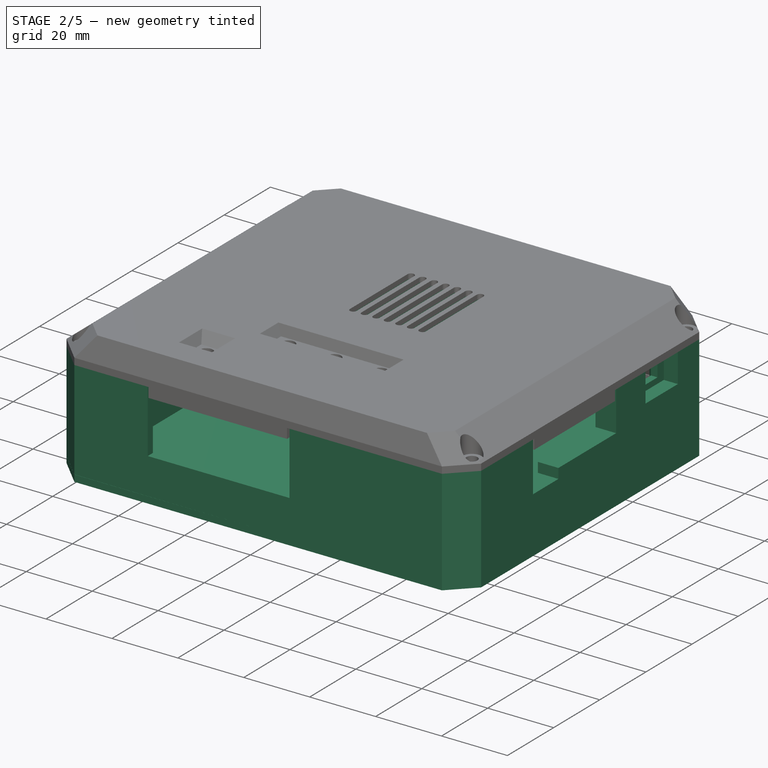
[diagram: stage 2 of 5 — iso view after this stage's code; geometry added in this stage tinted green]
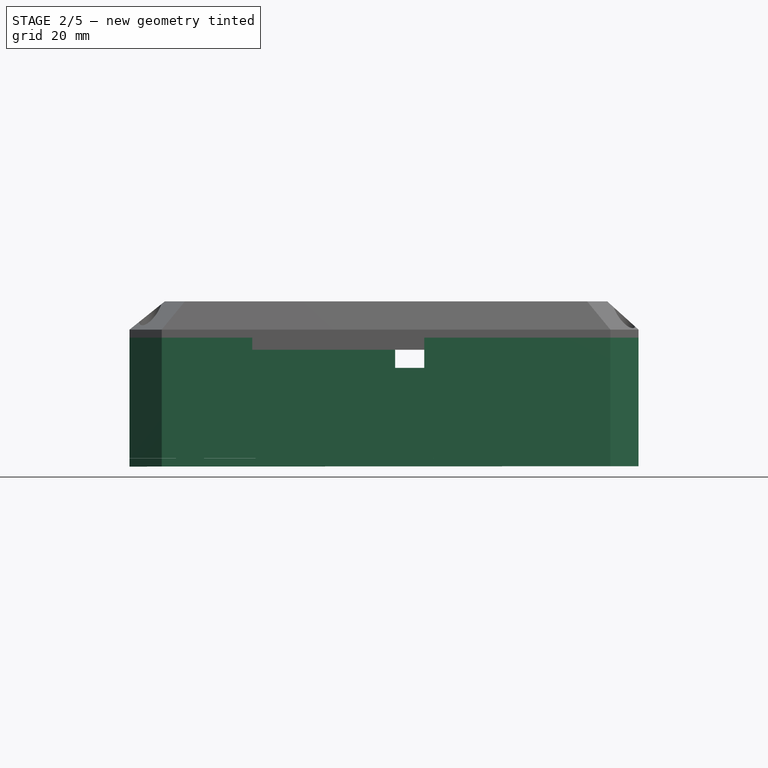
[diagram: stage 2 of 5 — front view after this stage's code; geometry added in this stage tinted green]
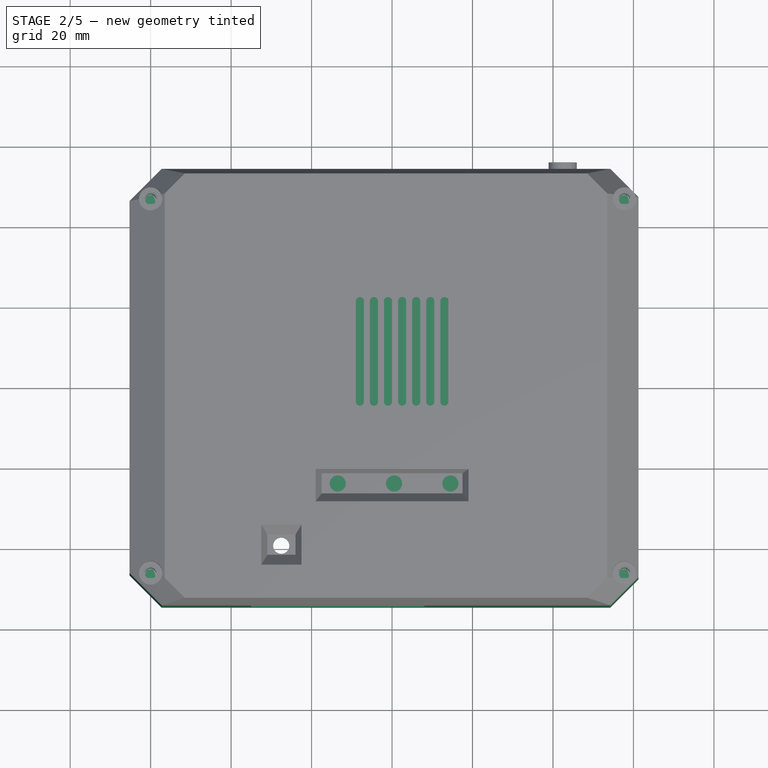
[diagram: stage 2 of 5 — top view after this stage's code; geometry added in this stage tinted green]
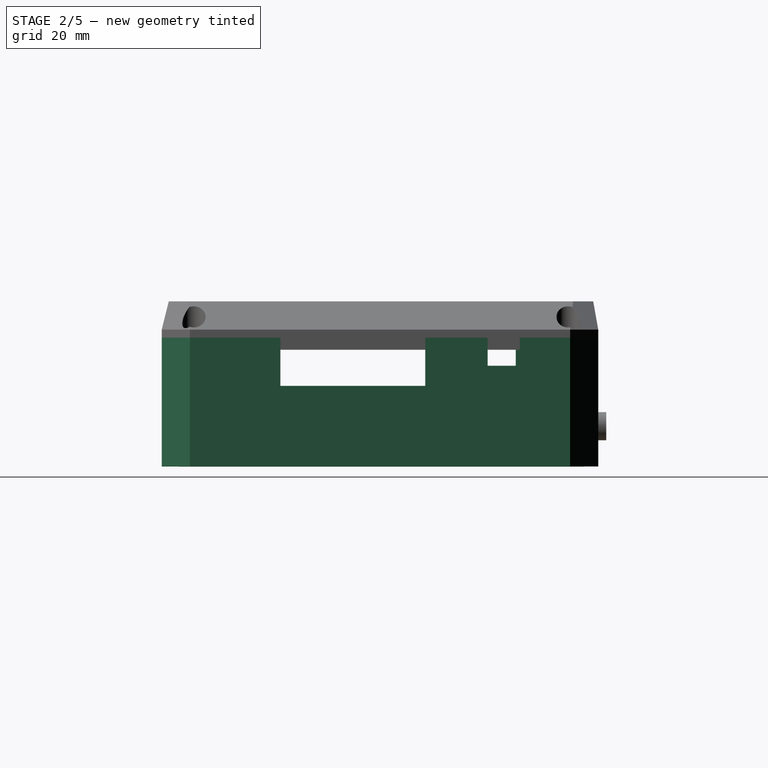
[diagram: stage 2 of 5 — right view after this stage's code; geometry added in this stage tinted green]
FEATURE [Part::Feature] Fusion035001  label="Fusion036"
  shape: bbox 126.5 x 123 x 43.05 mm, 376 faces, 3 solids (baked)
FEATURE [Sketcher::SketchObject] Sketch100
  MapMode = 5
  sketch-geometry (16):
    g0: LineSegment StartX=54.25 StartY=-54.5 StartZ=0 EndX=-57.25 EndY=-54.5 EndZ=0
    g1: LineSegment [constr] StartX=50.25 StartY=47.25 StartZ=0 EndX=50.25 EndY=-47.25 EndZ=0
    g2: LineSegment [constr] StartX=50.25 StartY=-47.25 StartZ=0 EndX=-50.25 EndY=-47.25 EndZ=0
    g3: LineSegment [constr] StartX=-50.25 StartY=-47.25 StartZ=0 EndX=-50.25 EndY=47.25 EndZ=0
    g4: LineSegment [constr] StartX=-50.25 StartY=47.25 StartZ=0 EndX=50.25 EndY=47.25 EndZ=0
    g5: LineSegment StartX=-57.25 StartY=54 StartZ=0 EndX=54.25 EndY=54 EndZ=0
    g6: LineSegment StartX=-57.25 StartY=54 StartZ=0 EndX=-65.25 EndY=46 EndZ=0
    g7: LineSegment StartX=-65.25 StartY=46 StartZ=0 EndX=-65.25 EndY=-46.5 EndZ=0
    g8: LineSegment StartX=-65.25 StartY=-46.5 StartZ=0 EndX=-57.25 EndY=-54.5 EndZ=0
    g9: LineSegment StartX=54.25 StartY=54 StartZ=0 EndX=61.25 EndY=47 EndZ=0
    g10: LineSegment StartX=61.25 StartY=47 StartZ=0 EndX=61.25 EndY=-47.5 EndZ=0
    g11: LineSegment StartX=61.25 StartY=-47.5 StartZ=0 EndX=54.25 EndY=-54.5 EndZ=0
    g12: LineSegment StartX=10.25 StartY=-50.5 StartZ=0 EndX=-36.75 EndY=-50.5 EndZ=0
    g13: LineSegment StartX=10.25 StartY=-50.5 StartZ=0 EndX=10.25 EndY=-35.5 EndZ=0
    g14: LineSegment StartX=10.25 StartY=-35.5 StartZ=0 EndX=-36.75 EndY=-35.5 EndZ=0
    g15: LineSegment StartX=-36.75 StartY=-35.5 StartZ=0 EndX=-36.75 EndY=-50.5 EndZ=0
  constraints (48):
    c: Horizontal(g0)
    c: Coincident(g1,g2)
    c: Coincident(g2,g3)
    c: Vertical(g1)
    c: Vertical(g3)
    c: Symmetric(g3,g2,g-1)
    c: Coincident(g4,g1)
    c: Horizontal(g4)
    c: Symmetric(g2,g1,g-2)
    c: DistanceY(g1,g1) = 94.5
    c: Symmetric(g1,g1,g-1)
    c: Coincident(g4,g3)
    c: DistanceX(g2,g1) = 100.5
    c: Horizontal(g5)
    c: DistanceX(g1,g5) = 4
    c: DistanceX(g5,g3) = 7
    c: Coincident(g6,g7)
    c: Vertical(g7)
    c: Coincident(g7,g8)
    c: Equal(g6,g8)
    c: Coincident(g8,g0)
    c: Coincident(g6,g5)
    c: Angle(g7,g6) = 2.35619
    c: DistanceX(g6,g5) = 8
    c: Coincident(g9,g10)
    c: Vertical(g10)
    c: Coincident(g10,g11)
    c: Equal(g11,g9)
    c: Coincident(g9,g5)
    c: Coincident(g11,g0)
    c: Equal(g0,g5)
    c: Angle(g9,g10) = 2.35619
    c: DistanceX(g5,g9) = 7
    c: DistanceY(g0,g2) = 7.25
    c: Angle(g8,g7) = 2.35619
    c: DistanceY(g3,g5) = 6.75
    c: Horizontal(g12)
    c: DistanceX(g12,g12) = 47
    c: DistanceY(g0,g12) = 4
    c: DistanceX(g12,g1) = 40
    c: Coincident(g12,g13)
    c: Vertical(g13)
    c: Coincident(g13,g14)
    c: Horizontal(g14)
    c: Coincident(g14,g15)
    c: Coincident(g15,g12)
    c: Vertical(g15)
    c: DistanceY(g13,g13) = 15
FEATURE [Part::Extrusion] Extrude089
  Base = -> Sketch100
  Dir = (0,0,2)
  DirMode = 0
  FaceMakerClass = Part::FaceMakerExtrusion
  LengthFwd = 0
  LengthRev = 0
  Placement = pos=(0,0,0) rot=(-0.004291,-0.999991,0.000696;0.000701rad)
  Solid = true
  Symmetric = false
FEATURE [Sketcher::SketchObject] Sketch101
  MapMode = 5
  sketch-geometry (26):
    g0: LineSegment [constr] StartX=-50.25 StartY=47.25 StartZ=0 EndX=50.25 EndY=47.25 EndZ=0
    g1: LineSegment [constr] StartX=50.25 StartY=47.25 StartZ=0 EndX=50.25 EndY=-47.25 EndZ=0
    g2: LineSegment [constr] StartX=-50.25 StartY=-47.25 StartZ=0 EndX=-50.25 EndY=47.25 EndZ=0
    g3: GeomPoint [constr] X=50.25 Y=-47.25 Z=0
    g4: Circle CenterX=-50.25 CenterY=-47.25 CenterZ=0 NormalX=0 NormalY=0 NormalZ=1 AngleXU=0 Radius=1.4
    g5: Circle CenterX=50.25 CenterY=47.25 CenterZ=0 NormalX=0 NormalY=0 NormalZ=1 AngleXU=0 Radius=1.4
    g6: Circle CenterX=-50.25 CenterY=47.25 CenterZ=0 NormalX=0 NormalY=0 NormalZ=1 AngleXU=0 Radius=1.4
    g7: Circle CenterX=25.25 CenterY=-42.25 CenterZ=0 NormalX=0 NormalY=0 NormalZ=1 AngleXU=0 Radius=4
    g8: Circle CenterX=25.25 CenterY=-42.25 CenterZ=0 NormalX=0 NormalY=0 NormalZ=1 AngleXU=0 Radius=1.4
    g9: Circle CenterX=53.25 CenterY=-51.25 CenterZ=0 NormalX=0 NormalY=0 NormalZ=1 AngleXU=0 Radius=2.25
    g10: LineSegment [constr] StartX=-50.25 StartY=-47.25 StartZ=0 EndX=50.25 EndY=-47.25 EndZ=0
    g11: LineSegment StartX=-53.75 StartY=52.75 StartZ=0 EndX=-46.75 EndY=52.75 EndZ=0
    g12: LineSegment StartX=-46.75 StartY=52.75 StartZ=0 EndX=-46.75 EndY=47.25 EndZ=0
    g13: LineSegment [constr] StartX=-46.75 StartY=47.25 StartZ=0 EndX=-53.75 EndY=47.25 EndZ=0
    g14: LineSegment StartX=-53.75 StartY=47.25 StartZ=0 EndX=-53.75 EndY=52.75 EndZ=0
    g15: ArcOfCircle CenterX=-50.25 CenterY=47.25 CenterZ=0 NormalX=0 NormalY=0 NormalZ=1 AngleXU=0 Radius=3.5 StartAngle=3.14159 EndAngle=6.28319
    g16: LineSegment StartX=46.75 StartY=52.75 StartZ=0 EndX=53.75 EndY=52.75 EndZ=0
    g17: LineSegment StartX=53.75 StartY=52.75 StartZ=0 EndX=53.75 EndY=47.25 EndZ=0
    g18: LineSegment [constr] StartX=53.75 StartY=47.25 StartZ=0 EndX=46.75 EndY=47.25 EndZ=0
    g19: LineSegment StartX=46.75 StartY=47.25 StartZ=0 EndX=46.75 EndY=52.75 EndZ=0
    g20: ArcOfCircle CenterX=50.25 CenterY=47.25 CenterZ=0 NormalX=0 NormalY=0 NormalZ=1 AngleXU=0 Radius=3.5 StartAngle=3.14159 EndAngle=6.28319
    g21: LineSegment StartX=-53.75 StartY=-52.75 StartZ=0 EndX=-46.75 EndY=-52.75 EndZ=0
    g22: LineSegment StartX=-46.75 StartY=-52.75 StartZ=0 EndX=-46.75 EndY=-47.25 EndZ=0
    g23: LineSegment [constr] StartX=-46.75 StartY=-47.25 StartZ=0 EndX=-53.75 EndY=-47.25 EndZ=0
    g24: LineSegment StartX=-53.75 StartY=-47.25 StartZ=0 EndX=-53.75 EndY=-52.75 EndZ=0
    g25: ArcOfCircle CenterX=-50.25 CenterY=-47.25 CenterZ=0 NormalX=0 NormalY=0 NormalZ=1 AngleXU=0 Radius=3.5 StartAngle=0 EndAngle=3.14159
  constraints (69):
    c: Coincident(g0,g1)
    c: Coincident(g2,g0)
    c: Horizontal(g0)
    c: Vertical(g1)
    c: Vertical(g2)
    c: Symmetric(g0,g0,g-2)
    c: Symmetric(g0,g4,g-1)
    c: DistanceX(g0,g0) = 100.5
    c: DistanceY(g3,g0) = 94.5
    c: Coincident(g5,g0)
    c: Coincident(g3,g1)
    c: Radius(g6) = 1.4
    c: Equal(g6,g5)
    c: Equal(g6,g4)
    c: Coincident(g8,g7)
    c: Equal(g8,g6)
    c: DistanceY(g4,g7) = 5
    c: DistanceX(g4,g7) = 75.5
    c: Radius(g9) = 2.25
    c: DistanceY(g9,g1) = 4
    c: DistanceX(g1,g9) = 3
    c: Radius(g7) = 4
    c: Coincident(g0,g6)
    c: Coincident(g4,g2)
    c: Coincident(g10,g2)
    c: Horizontal(g10)
    c: Coincident(g10,g1)
    c: Coincident(g11,g12)
    c: Coincident(g12,g13)
    c: Coincident(g13,g14)
    c: Coincident(g14,g11)
    c: Horizontal(g11)
    c: Horizontal(g13)
    c: Vertical(g12)
    c: Vertical(g14)
    c: PointOnObject(g12,g0)
    c: Coincident(g15,g0)
    c: Coincident(g15,g13)
    c: Coincident(g15,g12)
    c: Radius(g15) = 3.5
    c: DistanceY(g14,g14) = 5.5
    c: Coincident(g16,g17)
    c: Coincident(g17,g18)
    c: Coincident(g18,g19)
    c: Coincident(g19,g16)
    c: Horizontal(g16)
    c: Horizontal(g18)
    c: Vertical(g17)
    c: Vertical(g19)
    c: PointOnObject(g18,g0)
    c: Coincident(g20,g0)
    c: Coincident(g20,g18)
    c: Coincident(g20,g17)
    c: Equal(g20,g15)
    c: Equal(g19,g14)
    c: Coincident(g21,g22)
    c: Coincident(g22,g23)
    c: Coincident(g23,g24)
    c: Coincident(g24,g21)
    c: Horizontal(g21)
    c: Horizontal(g23)
    c: Vertical(g22)
    c: Vertical(g24)
    c: PointOnObject(g22,g10)
    c: Coincident(g25,g2)
    c: Coincident(g25,g23)
    c: Coincident(g25,g22)
    c: Equal(g25,g15)
    c: Equal(g24,g14)
FEATURE [Part::Extrusion] Extrude090
  Base = -> Sketch101
  Dir = (0,0,27.4)
  DirMode = 0
  FaceMakerClass = Part::FaceMakerExtrusion
  LengthFwd = 0
  LengthRev = 0
  Placement = pos=(0,0,1) rot=(0,0,1;0rad)
  Solid = true
  Symmetric = false
FEATURE [Sketcher::SketchObject] Sketch102
  MapMode = 5
  sketch-geometry (12):
    g0: LineSegment StartX=54.25 StartY=-54.5 StartZ=0 EndX=-57.25 EndY=-54.5 EndZ=0
    g1: LineSegment [constr] StartX=50.25 StartY=47.25 StartZ=0 EndX=50.25 EndY=-47.25 EndZ=0
    g2: LineSegment [constr] StartX=50.25 StartY=-47.25 StartZ=0 EndX=-50.25 EndY=-47.25 EndZ=0
    g3: LineSegment [constr] StartX=-50.25 StartY=-47.25 StartZ=0 EndX=-50.25 EndY=47.25 EndZ=0
    g4: LineSegment [constr] StartX=-50.25 StartY=47.25 StartZ=0 EndX=50.25 EndY=47.25 EndZ=0
    g5: LineSegment StartX=-57.25 StartY=54 StartZ=0 EndX=54.25 EndY=54 EndZ=0
    g6: LineSegment StartX=-57.25 StartY=54 StartZ=0 EndX=-65.25 EndY=46 EndZ=0
    g7: LineSegment StartX=-65.25 StartY=46 StartZ=0 EndX=-65.25 EndY=-46.5 EndZ=0
    g8: LineSegment StartX=-65.25 StartY=-46.5 StartZ=0 EndX=-57.25 EndY=-54.5 EndZ=0
    g9: LineSegment StartX=54.25 StartY=54 StartZ=0 EndX=61.25 EndY=47 EndZ=0
    g10: LineSegment StartX=61.25 StartY=47 StartZ=0 EndX=61.25 EndY=-47.5 EndZ=0
    g11: LineSegment StartX=61.25 StartY=-47.5 StartZ=0 EndX=54.25 EndY=-54.5 EndZ=0
  constraints (36):
    c: Horizontal(g0)
    c: Coincident(g1,g2)
    c: Coincident(g2,g3)
    c: Vertical(g1)
    c: Vertical(g3)
    c: Symmetric(g3,g2,g-1)
    c: Coincident(g4,g1)
    c: Horizontal(g4)
    c: Symmetric(g2,g1,g-2)
    c: DistanceY(g1,g1) = 94.5
    c: Symmetric(g1,g1,g-1)
    c: Coincident(g4,g3)
    c: DistanceX(g2,g1) = 100.5
    c: Horizontal(g5)
    c: DistanceX(g1,g5) = 4
    c: DistanceX(g5,g3) = 7
    c: Coincident(g6,g7)
    c: Vertical(g7)
    c: Coincident(g7,g8)
    c: Equal(g6,g8)
    c: Coincident(g8,g0)
    c: Coincident(g6,g5)
    c: Angle(g7,g6) = 2.35619
    c: DistanceX(g6,g5) = 8
    c: Coincident(g9,g10)
    c: Vertical(g10)
    c: Coincident(g10,g11)
    c: Equal(g11,g9)
    c: Coincident(g9,g5)
    c: Coincident(g11,g0)
    c: Equal(g0,g5)
    c: Angle(g9,g10) = 2.35619
    c: DistanceX(g5,g9) = 7
    c: DistanceY(g0,g2) = 7.25
    c: Angle(g8,g7) = 2.35619
    c: DistanceY(g3,g5) = 6.75
FEATURE [Part::Extrusion] Extrude091
  Base = -> Sketch102
  Dir = (0,0,30)
  DirMode = 0
  FaceMakerClass = Part::FaceMakerExtrusion
  LengthFwd = 0
  LengthRev = 0
  Solid = true
  Symmetric = false
FEATURE [Sketcher::SketchObject] Sketch103
  MapMode = 5
  sketch-geometry (12):
    g0: LineSegment StartX=53.5 StartY=-52.25 StartZ=0 EndX=-56.5 EndY=-52.25 EndZ=0
    g1: LineSegment [constr] StartX=48.5 StartY=45 StartZ=0 EndX=48.5 EndY=-45 EndZ=0
    g2: LineSegment [constr] StartX=48.5 StartY=-45 StartZ=0 EndX=-48.5 EndY=-45 EndZ=0
    g3: LineSegment [constr] StartX=-48.5 StartY=-45 StartZ=0 EndX=-48.5 EndY=45 EndZ=0
    g4: LineSegment [constr] StartX=-48.5 StartY=45 StartZ=0 EndX=48.5 EndY=45 EndZ=0
    g5: LineSegment StartX=-56.5 StartY=51.75 StartZ=0 EndX=53.5 EndY=51.75 EndZ=0
    g6: LineSegment StartX=-56.5 StartY=51.75 StartZ=0 EndX=-57.5 EndY=50.75 EndZ=0
    g7: LineSegment StartX=-57.5 StartY=50.75 StartZ=0 EndX=-57.5 EndY=-51.25 EndZ=0
    g8: LineSegment StartX=-57.5 StartY=-51.25 StartZ=0 EndX=-56.5 EndY=-52.25 EndZ=0
    g9: LineSegment StartX=53.5 StartY=51.75 StartZ=0 EndX=55 EndY=50.25 EndZ=0
    g10: LineSegment StartX=55 StartY=50.25 StartZ=0 EndX=55 EndY=-50.75 EndZ=0
    g11: LineSegment StartX=55 StartY=-50.75 StartZ=0 EndX=53.5 EndY=-52.25 EndZ=0
  constraints (36):
    c: Horizontal(g0)
    c: Coincident(g1,g2)
    c: Coincident(g2,g3)
    c: Vertical(g1)
    c: Vertical(g3)
    c: Symmetric(g3,g2,g-1)
    c: Coincident(g4,g1)
    c: Horizontal(g4)
    c: Symmetric(g2,g1,g-2)
    c: DistanceY(g1,g1) = 90
    c: Symmetric(g1,g1,g-1)
    c: Coincident(g4,g3)
    c: DistanceX(g2,g1) = 97
    c: Horizontal(g5)
    c: DistanceX(g1,g5) = 5
    c: DistanceX(g5,g3) = 8
    c: Coincident(g6,g7)
    c: Vertical(g7)
    c: Coincident(g7,g8)
    c: Equal(g6,g8)
    c: Coincident(g8,g0)
    c: Coincident(g6,g5)
    c: Angle(g7,g6) = 2.35619
    c: DistanceX(g6,g5) = 1
    c: Coincident(g9,g10)
    c: Vertical(g10)
    c: Coincident(g10,g11)
    c: Equal(g11,g9)
    c: Coincident(g9,g5)
    c: Coincident(g11,g0)
    c: Equal(g0,g5)
    c: Angle(g9,g10) = 2.35619
    c: DistanceX(g5,g9) = 1.5
    c: DistanceY(g0,g2) = 7.25
    c: DistanceY(g3,g5) = 6.75
    c: Angle(g8,g7) = 2.35619
FEATURE [Part::Extrusion] Extrude092
  Base = -> Sketch103
  Dir = (0,0,30)
  DirMode = 0
  FaceMakerClass = Part::FaceMakerExtrusion
  LengthFwd = 0
  LengthRev = 0
  Solid = true
  Symmetric = false
FEATURE [Part::Cut] Cut007
  Base = -> Extrude091
  Placement = pos=(0,0,2) rot=(0,0,1;0rad)
  Tool = -> Extrude092
FEATURE [Part::Box] Box014  label="Cube014"
  AttacherType = Attacher::AttachEngine3D
  Height = 12
  Length = 10
  Placement = pos=(-67,-44,15) rot=(0,0,1;0rad)
  Width = 56.75
FEATURE [Part::Box] Box015  label="Cube015"
  AttacherType = Attacher::AttachEngine3D
  Height = 20
  Length = 10
  Placement = pos=(-67,15.5,8.5) rot=(0,0,1;0rad)
  Width = 18
FEATURE [Part::Box] Box016  label="Cube016"
  AttacherType = Attacher::AttachEngine3D
  Height = 15
  Length = 10
  Placement = pos=(54,-25,12) rot=(0,0,1;0rad)
  Width = 11
FEATURE [Part::Box] Box017  label="Cube017"
  AttacherType = Attacher::AttachEngine3D
  Height = 12
  Length = 10
  Placement = pos=(54,-14,15) rot=(0,0,1;0rad)
  Width = 25
FEATURE [Part::Box] Box018  label="Cube018"
  AttacherType = Attacher::AttachEngine3D
  Height = 7
  Length = 8.5
  Placement = pos=(32.75,51,20) rot=(0,0,1;0rad)
  Width = 4
FEATURE [Part::Box] Box019  label="Cube019"
  AttacherType = Attacher::AttachEngine3D
  Height = 10.5
  Length = 8
  Placement = pos=(19,51,16.5) rot=(0,0,1;0rad)
  Width = 4
FEATURE [Part::Box] Box020  label="Cube020"
  AttacherType = Attacher::AttachEngine3D
  Height = 7
  Length = 8.5
  Placement = pos=(-45.9,51,20) rot=(0,0,1;0rad)
  Width = 4
FEATURE [Part::Box] Box021  label="Cube021"
  AttacherType = Attacher::AttachEngine3D
  Height = 8
  Length = 13
  Placement = pos=(0.75,51,19.5) rot=(0,0,1;0rad)
  Width = 4
FEATURE [Sketcher::SketchObject] Sketch104
  MapMode = 5
  Placement = pos=(0,0,27) rot=(0,0,1;0rad)
  sketch-geometry (8):
    g0: Circle CenterX=-60 CenterY=46.5 CenterZ=0 NormalX=0 NormalY=0 NormalZ=1 AngleXU=0 Radius=1.4
    g1: Circle CenterX=57.75 CenterY=46.5 CenterZ=0 NormalX=0 NormalY=0 NormalZ=1 AngleXU=0 Radius=1.4
    g2: Circle CenterX=-60 CenterY=-46.5 CenterZ=0 NormalX=0 NormalY=0 NormalZ=1 AngleXU=0 Radius=1.4
    g3: Circle CenterX=57.75 CenterY=-46.5 CenterZ=0 NormalX=0 NormalY=0 NormalZ=1 AngleXU=0 Radius=1.4
    g4: LineSegment [constr] StartX=-60 StartY=46.5 StartZ=0 EndX=57.75 EndY=46.5 EndZ=0
    g5: LineSegment [constr] StartX=57.75 StartY=46.5 StartZ=0 EndX=57.75 EndY=-46.5 EndZ=0
    g6: LineSegment [constr] StartX=57.75 StartY=-46.5 StartZ=0 EndX=-60 EndY=-46.5 EndZ=0
    g7: LineSegment [constr] StartX=-60 StartY=-46.5 StartZ=0 EndX=-60 EndY=46.5 EndZ=0
  constraints (20):
    c: Radius(g0) = 1.4
    c: Equal(g0,g1)
    c: Equal(g0,g3)
    c: Equal(g0,g2)
    c: Coincident(g4,g5)
    c: Coincident(g5,g6)
    c: Coincident(g6,g7)
    c: Coincident(g7,g4)
    c: Horizontal(g4)
    c: Horizontal(g6)
    c: Vertical(g5)
    c: Vertical(g7)
    c: Coincident(g4,g0)
    c: Coincident(g5,g3)
    c: Coincident(g1,g4)
    c: Coincident(g2,g6)
    c: Symmetric(g2,g0,g-1)
    c: DistanceY(g7,g7) = 93
    c: DistanceX(g2,g-1) = 60
    c: DistanceX(g-1,g3) = 57.75
FEATURE [Part::Box] Box022  label="Cube022"
  AttacherType = Attacher::AttachEngine3D
  Height = 8
  Length = 10
  Placement = pos=(54,26.5,20) rot=(0,0,1;0rad)
  Width = 8.5
FEATURE [Part::Box] Box023  label="Cube023"
  AttacherType = Attacher::AttachEngine3D
  Height = 9
  Length = 5
  Placement = pos=(57,23.75,18.25) rot=(0,0,1;0rad)
  Width = 14
FEATURE [Part::Box] Box024  label="Cube024"
  AttacherType = Attacher::AttachEngine3D
  Height = 19
  Length = 43
  Placement = pos=(-35,-56,8) rot=(0,0,1;0rad)
  Width = 4
FEATURE [Part::MultiFuse] Fusion035003
  Placement = pos=(0,0,5) rot=(0,0,1;0rad)
  Shapes = -> [Box014,Box015,Box016,Box017,Box018,Box019,Box020,Box021,Box022,Box023,Box024,Extrude093]
FEATURE [Part::Cut] Cut008
  Base = -> Cut007
  Tool = -> Fusion035003
FEATURE [Part::MultiFuse] Fusion035002
  Shapes = -> [Extrude089,Extrude090,Box026,Extrude094]
FEATURE [Part::MultiFuse] Fusion035004
  Shapes = -> [Fusion035002,Cut008]
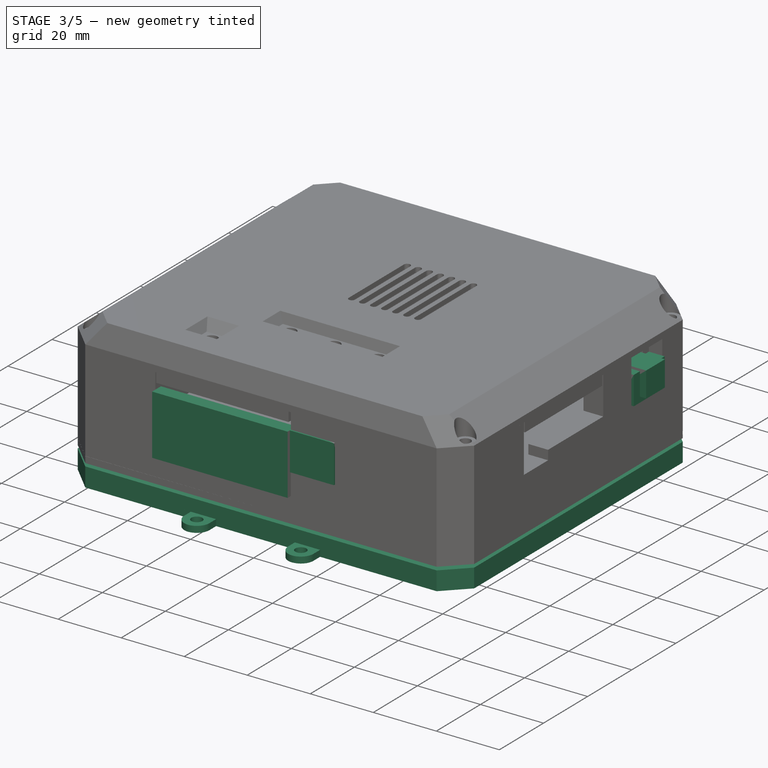
[diagram: stage 3 of 5 — iso view after this stage's code; geometry added in this stage tinted green]
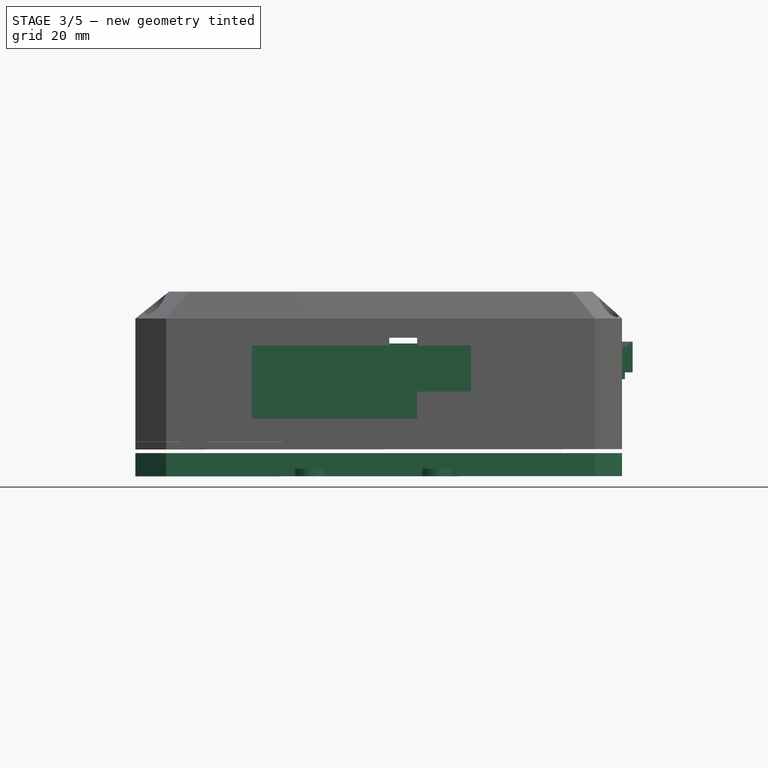
[diagram: stage 3 of 5 — front view after this stage's code; geometry added in this stage tinted green]
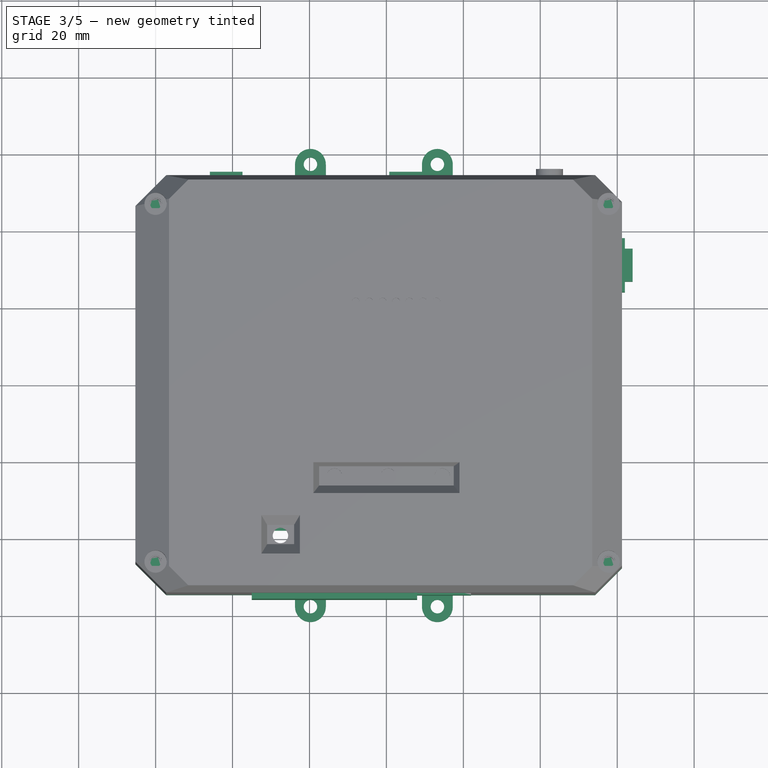
[diagram: stage 3 of 5 — top view after this stage's code; geometry added in this stage tinted green]
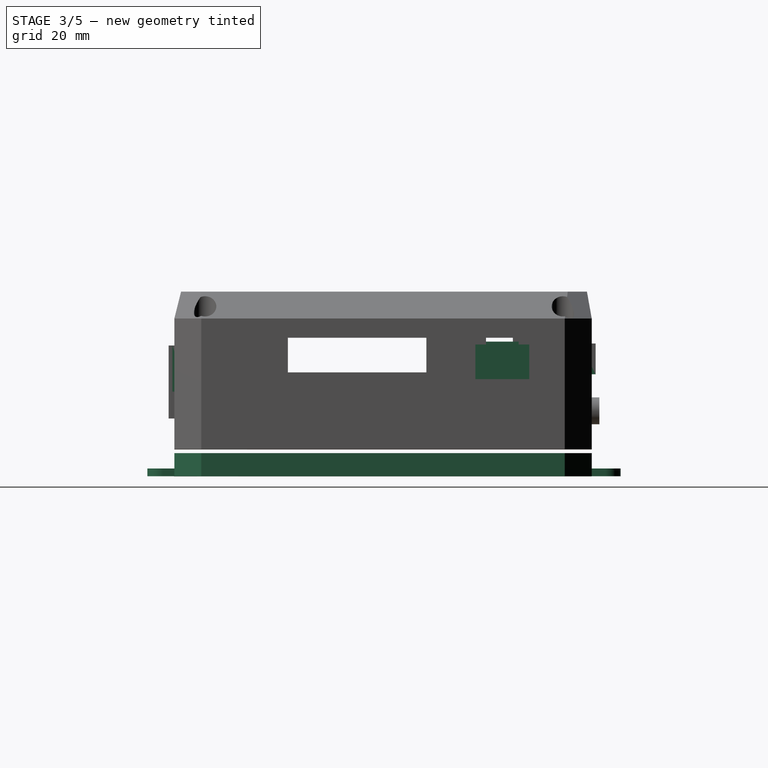
[diagram: stage 3 of 5 — right view after this stage's code; geometry added in this stage tinted green]
FEATURE [Part::Box] Box006  label="Cube006"
  AttacherType = Attacher::AttachEngine3D
  Height = 7
  Length = 8.5
  Placement = pos=(-45.9,51,20) rot=(0,0,1;0rad)
  Width = 4
FEATURE [Part::Box] Box007  label="Cube007"
  AttacherType = Attacher::AttachEngine3D
  Height = 8
  Length = 13
  Placement = pos=(0.75,51,19.5) rot=(0,0,1;0rad)
  Width = 4
FEATURE [Sketcher::SketchObject] Sketch075
  MapMode = 5
  Placement = pos=(0,0,27) rot=(0,0,1;0rad)
  sketch-geometry (8):
    g0: Circle CenterX=-60 CenterY=46.5 CenterZ=0 NormalX=0 NormalY=0 NormalZ=1 AngleXU=0 Radius=1.4
    g1: Circle CenterX=57.75 CenterY=46.5 CenterZ=0 NormalX=0 NormalY=0 NormalZ=1 AngleXU=0 Radius=1.4
    g2: Circle CenterX=-60 CenterY=-46.5 CenterZ=0 NormalX=0 NormalY=0 NormalZ=1 AngleXU=0 Radius=1.4
    g3: Circle CenterX=57.75 CenterY=-46.5 CenterZ=0 NormalX=0 NormalY=0 NormalZ=1 AngleXU=0 Radius=1.4
    g4: LineSegment [constr] StartX=-60 StartY=46.5 StartZ=0 EndX=57.75 EndY=46.5 EndZ=0
    g5: LineSegment [constr] StartX=57.75 StartY=46.5 StartZ=0 EndX=57.75 EndY=-46.5 EndZ=0
    g6: LineSegment [constr] StartX=57.75 StartY=-46.5 StartZ=0 EndX=-60 EndY=-46.5 EndZ=0
    g7: LineSegment [constr] StartX=-60 StartY=-46.5 StartZ=0 EndX=-60 EndY=46.5 EndZ=0
  constraints (20):
    c: Radius(g0) = 1.4
    c: Equal(g0,g1)
    c: Equal(g0,g3)
    c: Equal(g0,g2)
    c: Coincident(g4,g5)
    c: Coincident(g5,g6)
    c: Coincident(g6,g7)
    c: Coincident(g7,g4)
    c: Horizontal(g4)
    c: Horizontal(g6)
    c: Vertical(g5)
    c: Vertical(g7)
    c: Coincident(g4,g0)
    c: Coincident(g5,g3)
    c: Coincident(g1,g4)
    c: Coincident(g2,g6)
    c: Symmetric(g2,g0,g-1)
    c: DistanceY(g7,g7) = 93
    c: DistanceX(g2,g-1) = 60
    c: DistanceX(g-1,g3) = 57.75
FEATURE [Part::Box] Box008  label="Cube008"
  AttacherType = Attacher::AttachEngine3D
  Height = 8
  Length = 10
  Placement = pos=(54,26.5,20) rot=(0,0,1;0rad)
  Width = 8.5
FEATURE [Part::Box] Box009  label="Cube009"
  AttacherType = Attacher::AttachEngine3D
  Height = 9
  Length = 5
  Placement = pos=(57,23.75,18.25) rot=(0,0,1;0rad)
  Width = 14
FEATURE [Part::Box] Box010  label="Cube010"
  AttacherType = Attacher::AttachEngine3D
  Height = 19
  Length = 43
  Placement = pos=(-35,-56,8) rot=(0,0,1;0rad)
  Width = 4
FEATURE [Part::Extrusion] Extrude
  Base = -> Sketch075
  Dir = (0,0,-12)
  DirMode = 0
  FaceMakerClass = Part::FaceMakerExtrusion
  LengthFwd = 0
  LengthRev = 0
  Solid = true
  Symmetric = false
FEATURE [Part::Box] Box011  label="Cube011"
  AttacherType = Attacher::AttachEngine3D
  Height = 12
  Length = 14
  Placement = pos=(8,-55,15) rot=(0,0,1;0rad)
  Width = 4
FEATURE [Part::Box] Box012  label="Cube012"
  AttacherType = Attacher::AttachEngine3D
  Height = 15
  Length = 13
  Placement = pos=(34,48.75,2) rot=(0,0,1;0rad)
  Width = 3
FEATURE [Part::Prism] Prism
  AttacherType = Attacher::AttachEngine3D
  Circumradius = 5
  Height = 10
  Placement = pos=(42.4,51.75,10) rot=(0.935113,-0.250563,0.250563;1.63783rad)
  Polygon = 6
FEATURE [Part::Cylinder] Cylinder006
  Angle = 360
  AttacherType = Attacher::AttachEngine3D
  Height = 8
  Placement = pos=(42.4,48,10) rot=(-1,0,0;1.5708rad)
  Radius = 3.5
FEATURE [Sketcher::SketchObject] Sketch091
  MapMode = 5
  Placement = pos=(0,0,0) rot=(0.57735,0.57735,0.57735;2.0944rad)
  sketch-geometry (4):
    g0: LineSegment StartX=0 StartY=0 StartZ=0 EndX=0 EndY=5 EndZ=0
    g1: LineSegment StartX=0 StartY=5 StartZ=0 EndX=-5 EndY=5 EndZ=0
    g2: LineSegment StartX=-5 StartY=5 StartZ=0 EndX=-2.5 EndY=0 EndZ=0
    g3: LineSegment StartX=-2.5 StartY=0 StartZ=0 EndX=0 EndY=0 EndZ=0
  constraints (11):
    c: Coincident(g-1,g0)
    c: Vertical(g0)
    c: Coincident(g0,g1)
    c: Horizontal(g1)
    c: DistanceX(g1,g1) = 5
    c: Coincident(g1,g2)
    c: PointOnObject(g2,g-1)
    c: Coincident(g2,g3)
    c: Coincident(g3,g-1)
    c: DistanceY(g0,g0) = 5
    c: DistanceX(g3,g3) = 2.5
FEATURE [Part::Extrusion] Extrude080
  Base = -> Sketch091
  Dir = (2.5,0,0)
  DirMode = 0
  FaceMakerClass = Part::FaceMakerExtrusion
  LengthFwd = 0
  LengthRev = 0
  Placement = pos=(43,52,16) rot=(0,0,1;0rad)
  Solid = true
  Symmetric = false
FEATURE [Part::Cylinder] Cylinder
  Angle = 360
  AttacherType = Attacher::AttachEngine3D
  Height = 11
  Placement = pos=(46.125,51.85,17) rot=(0,0,1;0rad)
  Radius = 0.6
FEATURE [Part::MultiFuse] Fusion032
  Shapes = -> [Prism,Cylinder006,Cylinder]
FEATURE [Sketcher::SketchObject] Sketch097
  MapMode = 5
  sketch-geometry (36):
    g0: LineSegment [constr] StartX=50.25 StartY=47.25 StartZ=0 EndX=50.25 EndY=-47.25 EndZ=0
    g1: LineSegment [constr] StartX=50.25 StartY=-47.25 StartZ=0 EndX=-50.25 EndY=-47.25 EndZ=0
    g2: LineSegment [constr] StartX=-50.25 StartY=-47.25 StartZ=0 EndX=-50.25 EndY=47.25 EndZ=0
    g3: LineSegment [constr] StartX=-50.25 StartY=47.25 StartZ=0 EndX=50.25 EndY=47.25 EndZ=0
    g4: LineSegment StartX=-57.25 StartY=54 StartZ=0 EndX=-65.25 EndY=46 EndZ=0
    g5: LineSegment StartX=-65.25 StartY=46 StartZ=0 EndX=-65.25 EndY=-46.5 EndZ=0
    g6: LineSegment StartX=-65.25 StartY=-46.5 StartZ=0 EndX=-57.25 EndY=-54.5 EndZ=0
    g7: LineSegment StartX=54.25 StartY=54 StartZ=0 EndX=61.25 EndY=47 EndZ=0
    g8: LineSegment StartX=61.25 StartY=47 StartZ=0 EndX=61.25 EndY=-47.5 EndZ=0
    g9: LineSegment StartX=61.25 StartY=-47.5 StartZ=0 EndX=54.25 EndY=-54.5 EndZ=0
    g10: LineSegment StartX=8.5 StartY=-48.5 StartZ=0 EndX=-35 EndY=-48.5 EndZ=0
    g11: LineSegment StartX=8.5 StartY=-48.5 StartZ=0 EndX=8.5 EndY=-37.75 EndZ=0
    g12: LineSegment StartX=8.5 StartY=-37.75 StartZ=0 EndX=-35 EndY=-37.75 EndZ=0
    g13: LineSegment StartX=-35 StartY=-37.75 StartZ=0 EndX=-35 EndY=-48.5 EndZ=0
    g14: LineSegment StartX=9.25 StartY=54 StartZ=0 EndX=9.25 EndY=57.5 EndZ=0
    g15: LineSegment StartX=17.25 StartY=57.5 StartZ=0 EndX=17.25 EndY=54 EndZ=0
    g16: ArcOfCircle CenterX=13.25 CenterY=57.5 CenterZ=0 NormalX=0 NormalY=0 NormalZ=1 AngleXU=0 Radius=4 StartAngle=6.28318 EndAngle=9.42478
    g17: Circle CenterX=13.25 CenterY=57.5 CenterZ=0 NormalX=0 NormalY=0 NormalZ=1 AngleXU=0 Radius=1.75
    g18: LineSegment StartX=17.25 StartY=54 StartZ=0 EndX=54.25 EndY=54 EndZ=0
    g19: LineSegment StartX=9.25 StartY=-54.5 StartZ=0 EndX=9.25 EndY=-57.5 EndZ=0
    g20: LineSegment StartX=17.25 StartY=-57.5 StartZ=0 EndX=17.25 EndY=-54.5 EndZ=0
    g21: ArcOfCircle CenterX=13.25 CenterY=-57.5 CenterZ=0 NormalX=0 NormalY=0 NormalZ=1 AngleXU=0 Radius=4 StartAngle=3.14159 EndAngle=6.28319
    g22: Circle CenterX=13.25 CenterY=-57.5 CenterZ=0 NormalX=0 NormalY=0 NormalZ=1 AngleXU=0 Radius=1.75
    g23: LineSegment StartX=17.25 StartY=-54.5 StartZ=0 EndX=54.25 EndY=-54.5 EndZ=0
    g24: LineSegment StartX=-15.75 StartY=-54.5 StartZ=0 EndX=-15.75 EndY=-57.5 EndZ=0
    g25: LineSegment StartX=-23.75 StartY=-57.5 StartZ=0 EndX=-23.75 EndY=-54.5 EndZ=0
    g26: ArcOfCircle CenterX=-19.75 CenterY=-57.5 CenterZ=0 NormalX=0 NormalY=0 NormalZ=1 AngleXU=0 Radius=4 StartAngle=3.14159 EndAngle=6.28319
    g27: Circle CenterX=-19.75 CenterY=-57.5 CenterZ=0 NormalX=0 NormalY=0 NormalZ=1 AngleXU=0 Radius=1.75
    g28: LineSegment StartX=-15.75 StartY=54 StartZ=0 EndX=-15.75 EndY=57.5 EndZ=0
    g29: LineSegment StartX=-23.75 StartY=57.5 StartZ=0 EndX=-23.75 EndY=54 EndZ=0
    g30: ArcOfCircle CenterX=-19.75 CenterY=57.5 CenterZ=0 NormalX=0 NormalY=0 NormalZ=1 AngleXU=0 Radius=4 StartAngle=6.28319 EndAngle=9.42478
    g31: Circle CenterX=-19.75 CenterY=57.5 CenterZ=0 NormalX=0 NormalY=0 NormalZ=1 AngleXU=0 Radius=1.75
    g32: LineSegment StartX=-57.25 StartY=54 StartZ=0 EndX=-23.75 EndY=54 EndZ=0
    g33: LineSegment StartX=-15.75 StartY=54 StartZ=0 EndX=9.25 EndY=54 EndZ=0
    g34: LineSegment StartX=-57.25 StartY=-54.5 StartZ=0 EndX=-23.75 EndY=-54.5 EndZ=0
    g35: LineSegment StartX=-15.75 StartY=-54.5 StartZ=0 EndX=9.25 EndY=-54.5 EndZ=0
  constraints (106):
    c: Coincident(g0,g1)
    c: Coincident(g1,g2)
    c: Vertical(g0)
    c: Vertical(g2)
    c: Symmetric(g2,g1,g-1)
    c: Coincident(g3,g0)
    c: Horizontal(g3)
    c: Symmetric(g1,g0,g-2)
    c: DistanceY(g0,g0) = 94.5
    c: Symmetric(g0,g0,g-1)
    c: Coincident(g3,g2)
    c: DistanceX(g1,g0) = 100.5
    c: DistanceX(g0,g7) = 4
    c: DistanceX(g4,g2) = 7
    c: Coincident(g4,g5)
    c: Vertical(g5)
    c: Coincident(g5,g6)
    c: Equal(g4,g6)
    c: Angle(g5,g4) = 2.35619
    c: DistanceX(g4,g4) = 8
    c: Coincident(g7,g8)
    c: Vertical(g8)
    c: Coincident(g8,g9)
    c: Equal(g9,g7)
    c: Angle(g7,g8) = 2.35619
    c: DistanceX(g7,g7) = 7
    c: DistanceY(g6,g1) = 7.25
    c: Angle(g6,g5) = 2.35619
    c: DistanceY(g2,g4) = 6.75
    c: Horizontal(g10)
    c: DistanceX(g10,g10) = 43.5
    c: DistanceY(g6,g10) = 6
    c: DistanceX(g10,g0) = 41.75
    c: Coincident(g10,g11)
    c: Vertical(g11)
    c: Coincident(g11,g12)
    c: Horizontal(g12)
    c: Coincident(g12,g13)
    c: Coincident(g13,g10)
    c: Vertical(g13)
    c: DistanceY(g11,g11) = 10.75
    c: Angle(g8,g9) = 2.35619
    c: Vertical(g14)
    c: Vertical(g15)
    c: Coincident(g16,g14)
    c: Coincident(g16,g15)
    c: Tangent(g14,g16)
    c: Tangent(g15,g16)
    c: Equal(g14,g15)
    c: Radius(g16) = 4
    c: Coincident(g17,g16)
    c: Radius(g17) = 1.75
    c: Coincident(g18,g15)
    c: Horizontal(g18)
    c: Coincident(g18,g7)
    c: Vertical(g19)
    c: Vertical(g20)
    c: Coincident(g21,g19)
    c: Coincident(g21,g20)
    c: Tangent(g19,g21)
    c: Tangent(g20,g21)
    c: Equal(g19,g20)
    c: Coincident(g22,g21)
    c: Coincident(g23,g20)
    c: Horizontal(g23)
    c: Coincident(g23,g9)
    c: Equal(g22,g17)
    c: Equal(g16,g21)
    c: DistanceY(g21,g16) = 115
    c: Symmetric(g21,g16,g-1)
    c: Vertical(g28)
    c: Vertical(g29)
    c: Coincident(g30,g28)
    c: Coincident(g30,g29)
    c: Tangent(g28,g30)
    c: Tangent(g29,g30)
    c: Equal(g28,g29)
    c: Coincident(g31,g30)
    c: Vertical(g24)
    c: Vertical(g25)
    c: Coincident(g26,g24)
    c: Coincident(g26,g25)
    c: Tangent(g24,g26)
    c: Tangent(g25,g26)
    c: Equal(g24,g25)
    c: Coincident(g27,g26)
    c: Equal(g27,g31)
    c: Equal(g30,g26)
    c: Equal(g30,g16)
    c: Equal(g31,g17)
    c: Coincident(g32,g4)
    c: Coincident(g32,g29)
    c: Horizontal(g32)
    c: Coincident(g33,g28)
    c: Coincident(g33,g14)
    c: Horizontal(g33)
    c: Equal(g28,g14)
    c: Coincident(g34,g6)
    c: Coincident(g34,g25)
    c: Horizontal(g34)
    c: Coincident(g35,g24)
    c: Coincident(g35,g19)
    c: Horizontal(g35)
    c: Symmetric(g26,g30,g-1)
    c: DistanceX(g4,g30) = 45.5
    c: DistanceX(g16,g7) = 48
FEATURE [Part::Extrusion] Extrude086
  Base = -> Sketch097
  Dir = (0,0,2)
  DirMode = 0
  FaceMakerClass = Part::FaceMakerExtrusion
  LengthFwd = 0
  LengthRev = 0
  Placement = pos=(0,0,0) rot=(-0.004291,-0.999991,0.000696;0.000701rad)
  Solid = true
  Symmetric = false
FEATURE [Sketcher::SketchObject] Sketch098
  MapMode = 5
  sketch-geometry (12):
    g0: LineSegment StartX=54.25 StartY=-54.5 StartZ=0 EndX=-57.25 EndY=-54.5 EndZ=0
    g1: LineSegment [constr] StartX=50.25 StartY=47.25 StartZ=0 EndX=50.25 EndY=-47.25 EndZ=0
    g2: LineSegment [constr] StartX=50.25 StartY=-47.25 StartZ=0 EndX=-50.25 EndY=-47.25 EndZ=0
    g3: LineSegment [constr] StartX=-50.25 StartY=-47.25 StartZ=0 EndX=-50.25 EndY=47.25 EndZ=0
    g4: LineSegment [constr] StartX=-50.25 StartY=47.25 StartZ=0 EndX=50.25 EndY=47.25 EndZ=0
    g5: LineSegment StartX=-57.25 StartY=54 StartZ=0 EndX=54.25 EndY=54 EndZ=0
    g6: LineSegment StartX=-57.25 StartY=54 StartZ=0 EndX=-65.25 EndY=46 EndZ=0
    g7: LineSegment StartX=-65.25 StartY=46 StartZ=0 EndX=-65.25 EndY=-46.5 EndZ=0
    g8: LineSegment StartX=-65.25 StartY=-46.5 StartZ=0 EndX=-57.25 EndY=-54.5 EndZ=0
    g9: LineSegment StartX=54.25 StartY=54 StartZ=0 EndX=61.25 EndY=47 EndZ=0
    g10: LineSegment StartX=61.25 StartY=47 StartZ=0 EndX=61.25 EndY=-47.5 EndZ=0
    g11: LineSegment StartX=61.25 StartY=-47.5 StartZ=0 EndX=54.25 EndY=-54.5 EndZ=0
  constraints (36):
    c: Horizontal(g0)
    c: Coincident(g1,g2)
    c: Coincident(g2,g3)
    c: Vertical(g1)
    c: Vertical(g3)
    c: Symmetric(g3,g2,g-1)
    c: Coincident(g4,g1)
    c: Horizontal(g4)
    c: Symmetric(g2,g1,g-2)
    c: DistanceY(g1,g1) = 94.5
    c: Symmetric(g1,g1,g-1)
    c: Coincident(g4,g3)
    c: DistanceX(g2,g1) = 100.5
    c: Horizontal(g5)
    c: DistanceX(g1,g5) = 4
    c: DistanceX(g5,g3) = 7
    c: Coincident(g6,g7)
    c: Vertical(g7)
    c: Coincident(g7,g8)
    c: Equal(g6,g8)
    c: Coincident(g8,g0)
    c: Coincident(g6,g5)
    c: Angle(g7,g6) = 2.35619
    c: DistanceX(g6,g5) = 8
    c: Coincident(g9,g10)
    c: Vertical(g10)
    c: Coincident(g10,g11)
    c: Equal(g11,g9)
    c: Coincident(g9,g5)
    c: Coincident(g11,g0)
    c: Equal(g0,g5)
    c: Angle(g9,g10) = 2.35619
    c: DistanceX(g5,g9) = 7
    c: DistanceY(g0,g2) = 7.25
    c: Angle(g8,g7) = 2.35619
    c: DistanceY(g3,g5) = 6.75
FEATURE [Part::Extrusion] Extrude087
  Base = -> Sketch098
  Dir = (0,0,5)
  DirMode = 0
  FaceMakerClass = Part::FaceMakerExtrusion
  LengthFwd = 0
  LengthRev = 0
  Solid = true
  Symmetric = false
FEATURE [Sketcher::SketchObject] Sketch099
  MapMode = 5
  sketch-geometry (12):
    g0: LineSegment StartX=53.5 StartY=-52.25 StartZ=0 EndX=-56.5 EndY=-52.25 EndZ=0
    g1: LineSegment [constr] StartX=48.5 StartY=45 StartZ=0 EndX=48.5 EndY=-45 EndZ=0
    g2: LineSegment [constr] StartX=48.5 StartY=-45 StartZ=0 EndX=-48.5 EndY=-45 EndZ=0
    g3: LineSegment [constr] StartX=-48.5 StartY=-45 StartZ=0 EndX=-48.5 EndY=45 EndZ=0
    g4: LineSegment [constr] StartX=-48.5 StartY=45 StartZ=0 EndX=48.5 EndY=45 EndZ=0
    g5: LineSegment StartX=-56.5 StartY=51.75 StartZ=0 EndX=53.5 EndY=51.75 EndZ=0
    g6: LineSegment StartX=-56.5 StartY=51.75 StartZ=0 EndX=-63.5 EndY=44.75 EndZ=0
    g7: LineSegment StartX=-63.5 StartY=44.75 StartZ=0 EndX=-63.5 EndY=-45.25 EndZ=0
    g8: LineSegment StartX=-63.5 StartY=-45.25 StartZ=0 EndX=-56.5 EndY=-52.25 EndZ=0
    g9: LineSegment StartX=53.5 StartY=51.75 StartZ=0 EndX=58.5 EndY=46.75 EndZ=0
    g10: LineSegment StartX=58.5 StartY=46.75 StartZ=0 EndX=58.5 EndY=-47.25 EndZ=0
    g11: LineSegment StartX=58.5 StartY=-47.25 StartZ=0 EndX=53.5 EndY=-52.25 EndZ=0
  constraints (36):
    c: Horizontal(g0)
    c: Coincident(g1,g2)
    c: Coincident(g2,g3)
    c: Vertical(g1)
    c: Vertical(g3)
    c: Symmetric(g3,g2,g-1)
    c: Coincident(g4,g1)
    c: Horizontal(g4)
    c: Symmetric(g2,g1,g-2)
    c: DistanceY(g1,g1) = 90
    c: Symmetric(g1,g1,g-1)
    c: Coincident(g4,g3)
    c: DistanceX(g2,g1) = 97
    c: Horizontal(g5)
    c: DistanceX(g1,g5) = 5
    c: DistanceX(g5,g3) = 8
    c: Coincident(g6,g7)
    c: Vertical(g7)
    c: Coincident(g7,g8)
    c: Equal(g6,g8)
    c: Coincident(g8,g0)
    c: Coincident(g6,g5)
    c: Angle(g7,g6) = 2.35619
    c: DistanceX(g6,g5) = 7
    c: Coincident(g9,g10)
    c: Vertical(g10)
    c: Coincident(g10,g11)
    c: Equal(g11,g9)
    c: Coincident(g9,g5)
    c: Coincident(g11,g0)
    c: Equal(g0,g5)
    c: Angle(g9,g10) = 2.35619
    c: DistanceX(g5,g9) = 5
    c: DistanceY(g0,g2) = 7.25
    c: DistanceY(g3,g5) = 6.75
    c: Angle(g8,g7) = 2.35619
FEATURE [Part::Extrusion] Extrude088
  Base = -> Sketch099
  Dir = (0,0,5)
  DirMode = 0
  FaceMakerClass = Part::FaceMakerExtrusion
  LengthFwd = 0
  LengthRev = 0
  Solid = true
  Symmetric = false
FEATURE [Part::Cut] Cut006
  Base = -> Extrude087
  Placement = pos=(0,0,1) rot=(0,0,1;0rad)
  Tool = -> Extrude088
FEATURE [Part::MultiFuse] Fusion034
  Placement = pos=(0,0,-7) rot=(0,0,1;0rad)
  Shapes = -> [Extrude086,Cut006]
FEATURE [Part::Cut] Cut009  label="Colibri3Box"
  Base = -> Fusion035004
  Tool = -> Fusion035005
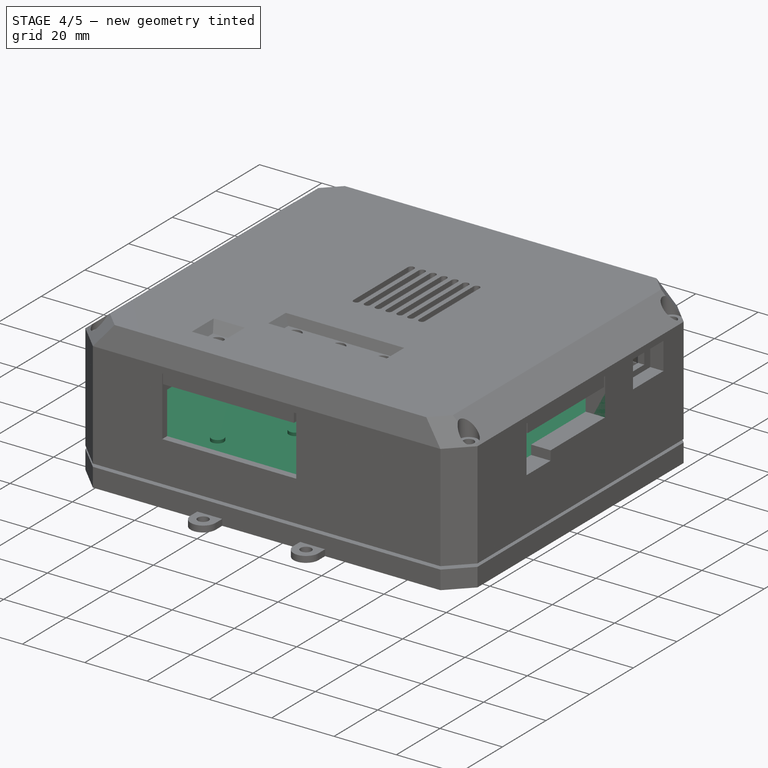
[diagram: stage 4 of 5 — iso view after this stage's code; geometry added in this stage tinted green]
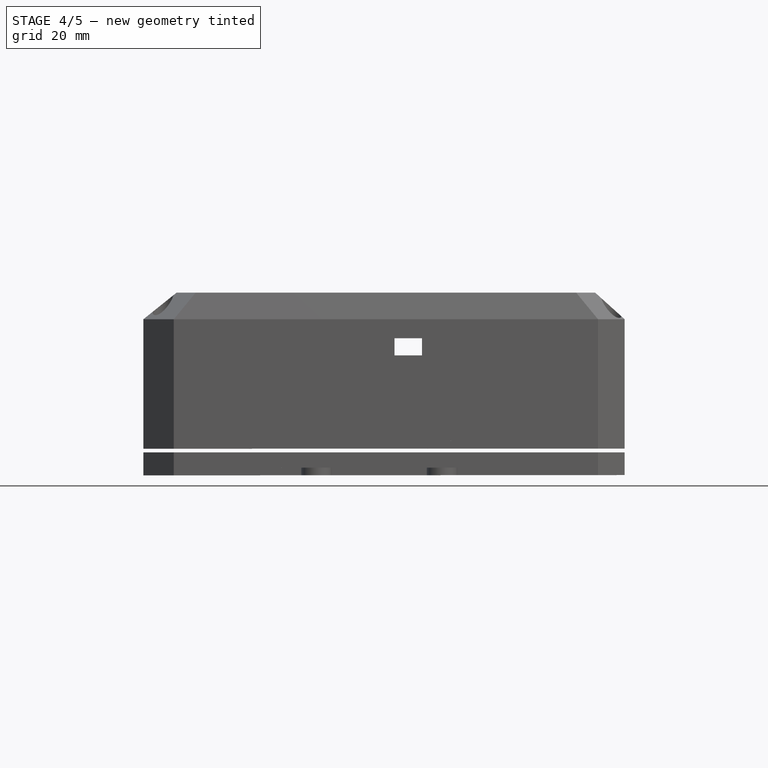
[diagram: stage 4 of 5 — front view after this stage's code; geometry added in this stage tinted green]
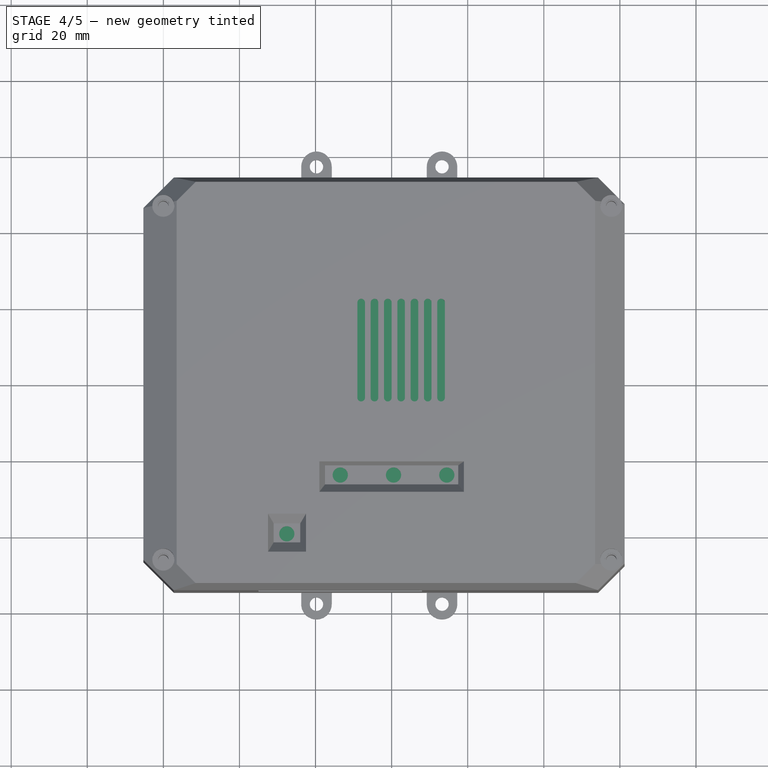
[diagram: stage 4 of 5 — top view after this stage's code; geometry added in this stage tinted green]
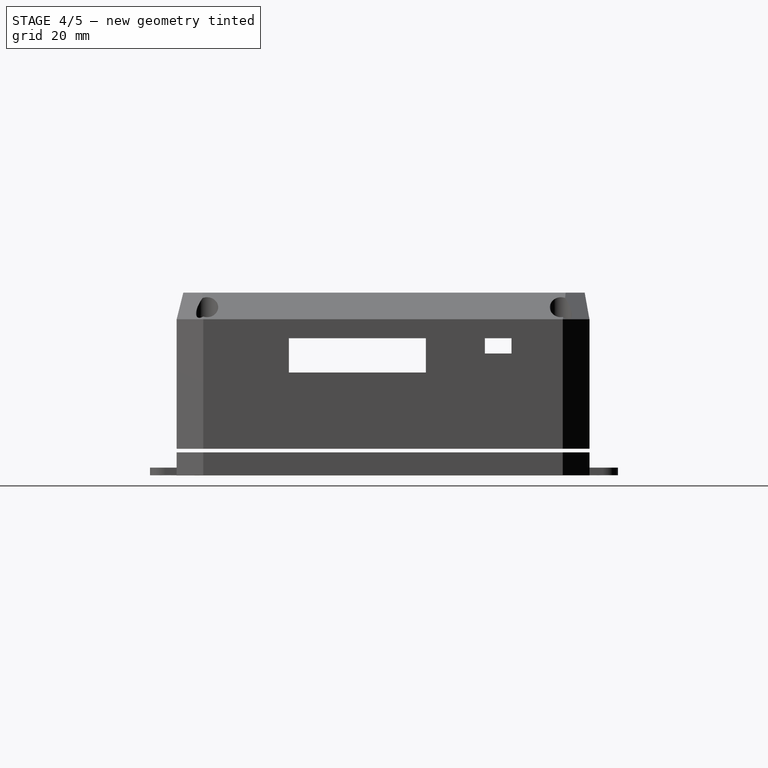
[diagram: stage 4 of 5 — right view after this stage's code; geometry added in this stage tinted green]
FEATURE [Part::Feature] Compound001
  Placement = pos=(50.25,47.25,30) rot=(0,0.707107,0.707107;3.14159rad)
  shape: large baked B-rep (132 MB .brp); summary skipped
FEATURE [Sketcher::SketchObject] Sketch071
  MapMode = 5
  sketch-geometry (24):
    g0: LineSegment StartX=54.25 StartY=-54.5 StartZ=0 EndX=-57.25 EndY=-54.5 EndZ=0
    g1: LineSegment [constr] StartX=50.25 StartY=47.25 StartZ=0 EndX=50.25 EndY=-47.25 EndZ=0
    g2: LineSegment [constr] StartX=50.25 StartY=-47.25 StartZ=0 EndX=-50.25 EndY=-47.25 EndZ=0
    g3: LineSegment [constr] StartX=-50.25 StartY=-47.25 StartZ=0 EndX=-50.25 EndY=47.25 EndZ=0
    g4: LineSegment [constr] StartX=-50.25 StartY=47.25 StartZ=0 EndX=50.25 EndY=47.25 EndZ=0
    g5: LineSegment StartX=-57.25 StartY=54 StartZ=0 EndX=54.25 EndY=54 EndZ=0
    g6: LineSegment StartX=-57.25 StartY=54 StartZ=0 EndX=-65.25 EndY=46 EndZ=0
    g7: LineSegment StartX=-65.25 StartY=46 StartZ=0 EndX=-65.25 EndY=-46.5 EndZ=0
    g8: LineSegment StartX=-65.25 StartY=-46.5 StartZ=0 EndX=-57.25 EndY=-54.5 EndZ=0
    g9: LineSegment StartX=54.25 StartY=54 StartZ=0 EndX=61.25 EndY=47 EndZ=0
    g10: LineSegment StartX=61.25 StartY=47 StartZ=0 EndX=61.25 EndY=-47.5 EndZ=0
    g11: LineSegment StartX=61.25 StartY=-47.5 StartZ=0 EndX=54.25 EndY=-54.5 EndZ=0
    g12: LineSegment StartX=-46.25 StartY=42 StartZ=0 EndX=42.25 EndY=42 EndZ=0
    g13: LineSegment StartX=42.25 StartY=42 StartZ=0 EndX=49.25 EndY=35 EndZ=0
    g14: LineSegment StartX=49.25 StartY=35 StartZ=0 EndX=49.25 EndY=-16.5 EndZ=0
    g15: LineSegment StartX=10.25 StartY=-50.5 StartZ=0 EndX=-36.75 EndY=-50.5 EndZ=0
    g16: LineSegment StartX=-53.25 StartY=-16.5 StartZ=0 EndX=-53.25 EndY=35 EndZ=0
    g17: LineSegment StartX=-53.25 StartY=35 StartZ=0 EndX=-46.25 EndY=42 EndZ=0
    g18: LineSegment StartX=-46.25 StartY=-23.5 StartZ=0 EndX=42.25 EndY=-23.5 EndZ=0
    g19: LineSegment StartX=42.25 StartY=-23.5 StartZ=0 EndX=49.25 EndY=-16.5 EndZ=0
    g20: LineSegment StartX=10.25 StartY=-50.5 StartZ=0 EndX=10.25 EndY=-35.5 EndZ=0
    g21: LineSegment StartX=10.25 StartY=-35.5 StartZ=0 EndX=-36.75 EndY=-35.5 EndZ=0
    g22: LineSegment StartX=-36.75 StartY=-35.5 StartZ=0 EndX=-36.75 EndY=-50.5 EndZ=0
    g23: LineSegment StartX=-53.25 StartY=-16.5 StartZ=0 EndX=-46.25 EndY=-23.5 EndZ=0
  constraints (72):
    c: Horizontal(g0)
    c: Coincident(g1,g2)
    c: Coincident(g2,g3)
    c: Vertical(g1)
    c: Vertical(g3)
    c: Symmetric(g3,g2,g-1)
    c: Coincident(g4,g1)
    c: Horizontal(g4)
    c: Symmetric(g2,g1,g-2)
    c: DistanceY(g1,g1) = 94.5
    c: Symmetric(g1,g1,g-1)
    c: Coincident(g4,g3)
    c: DistanceX(g2,g1) = 100.5
    c: Horizontal(g5)
    c: DistanceX(g1,g5) = 4
    c: DistanceX(g5,g3) = 7
    c: Coincident(g6,g7)
    c: Vertical(g7)
    c: Coincident(g7,g8)
    c: Equal(g6,g8)
    c: Coincident(g8,g0)
    c: Coincident(g6,g5)
    c: Angle(g7,g6) = 2.35619
    c: DistanceX(g6,g5) = 8
    c: Coincident(g9,g10)
    c: Vertical(g10)
    c: Coincident(g10,g11)
    c: Equal(g11,g9)
    c: Coincident(g9,g5)
    c: Coincident(g11,g0)
    c: Equal(g0,g5)
    c: Angle(g9,g10) = 2.35619
    c: DistanceX(g5,g9) = 7
    c: DistanceY(g0,g2) = 7.25
    c: Angle(g8,g7) = 2.35619
    c: DistanceY(g3,g5) = 6.75
    c: Horizontal(g12)
    c: Coincident(g12,g13)
    c: Coincident(g13,g14)
    c: Vertical(g14)
    c: Horizontal(g15)
    c: Vertical(g16)
    c: Coincident(g16,g17)
    c: Coincident(g17,g12)
    c: Parallel(g13,g9)
    c: Horizontal(g18)
    c: Coincident(g18,g19)
    c: Parallel(g19,g11)
    c: Coincident(g14,g19)
    c: Parallel(g17,g6)
    c: DistanceX(g15,g15) = 47
    c: DistanceX(g14,g10) = 12
    c: DistanceX(g7,g16) = 12
    c: DistanceY(g12,g5) = 12
    c: DistanceX(g12,g1) = 8
    c: DistanceY(g0,g15) = 4
    c: DistanceX(g15,g1) = 40
    c: Coincident(g15,g20)
    c: Vertical(g20)
    c: Coincident(g20,g21)
    c: Horizontal(g21)
    c: Coincident(g21,g22)
    c: Coincident(g22,g15)
    c: Vertical(g22)
    c: Coincident(g23,g18)
    c: Parallel(g23,g8)
    c: Coincident(g23,g16)
    c: DistanceY(g20,g18) = 12
    c: DistanceY(g20,g20) = 15
    c: Equal(g23,g19)
    c: Equal(g19,g13)
    c: Equal(g17,g13)
FEATURE [Part::Extrusion] Extrude070
  Base = -> Sketch071
  Dir = (0,0,2)
  DirMode = 0
  FaceMakerClass = Part::FaceMakerExtrusion
  LengthFwd = 0
  LengthRev = 0
  Placement = pos=(0,0,0) rot=(-0.004291,-0.999991,0.000696;0.000701rad)
  Solid = true
  Symmetric = false
FEATURE [Sketcher::SketchObject] Sketch072
  MapMode = 5
  sketch-geometry (26):
    g0: LineSegment [constr] StartX=-50.25 StartY=47.25 StartZ=0 EndX=50.25 EndY=47.25 EndZ=0
    g1: LineSegment [constr] StartX=50.25 StartY=47.25 StartZ=0 EndX=50.25 EndY=-47.25 EndZ=0
    g2: LineSegment [constr] StartX=-50.25 StartY=-47.25 StartZ=0 EndX=-50.25 EndY=47.25 EndZ=0
    g3: GeomPoint [constr] X=50.25 Y=-47.25 Z=0
    g4: Circle CenterX=-50.25 CenterY=-47.25 CenterZ=0 NormalX=0 NormalY=0 NormalZ=1 AngleXU=0 Radius=1.4
    g5: Circle CenterX=50.25 CenterY=47.25 CenterZ=0 NormalX=0 NormalY=0 NormalZ=1 AngleXU=0 Radius=1.4
    g6: Circle CenterX=-50.25 CenterY=47.25 CenterZ=0 NormalX=0 NormalY=0 NormalZ=1 AngleXU=0 Radius=1.4
    g7: Circle CenterX=25.25 CenterY=-42.25 CenterZ=0 NormalX=0 NormalY=0 NormalZ=1 AngleXU=0 Radius=4
    g8: Circle CenterX=25.25 CenterY=-42.25 CenterZ=0 NormalX=0 NormalY=0 NormalZ=1 AngleXU=0 Radius=1.4
    g9: Circle CenterX=53.25 CenterY=-51.25 CenterZ=0 NormalX=0 NormalY=0 NormalZ=1 AngleXU=0 Radius=2.25
    g10: LineSegment [constr] StartX=-50.25 StartY=-47.25 StartZ=0 EndX=50.25 EndY=-47.25 EndZ=0
    g11: LineSegment StartX=-53.75 StartY=52.75 StartZ=0 EndX=-46.75 EndY=52.75 EndZ=0
    g12: LineSegment StartX=-46.75 StartY=52.75 StartZ=0 EndX=-46.75 EndY=47.25 EndZ=0
    g13: LineSegment [constr] StartX=-46.75 StartY=47.25 StartZ=0 EndX=-53.75 EndY=47.25 EndZ=0
    g14: LineSegment StartX=-53.75 StartY=47.25 StartZ=0 EndX=-53.75 EndY=52.75 EndZ=0
    g15: ArcOfCircle CenterX=-50.25 CenterY=47.25 CenterZ=0 NormalX=0 NormalY=0 NormalZ=1 AngleXU=0 Radius=3.5 StartAngle=3.14159 EndAngle=6.28319
    g16: LineSegment StartX=46.75 StartY=52.75 StartZ=0 EndX=53.75 EndY=52.75 EndZ=0
    g17: LineSegment StartX=53.75 StartY=52.75 StartZ=0 EndX=53.75 EndY=47.25 EndZ=0
    g18: LineSegment [constr] StartX=53.75 StartY=47.25 StartZ=0 EndX=46.75 EndY=47.25 EndZ=0
    g19: LineSegment StartX=46.75 StartY=47.25 StartZ=0 EndX=46.75 EndY=52.75 EndZ=0
    g20: ArcOfCircle CenterX=50.25 CenterY=47.25 CenterZ=0 NormalX=0 NormalY=0 NormalZ=1 AngleXU=0 Radius=3.5 StartAngle=3.14159 EndAngle=6.28319
    g21: LineSegment StartX=-53.75 StartY=-52.75 StartZ=0 EndX=-46.75 EndY=-52.75 EndZ=0
    g22: LineSegment StartX=-46.75 StartY=-52.75 StartZ=0 EndX=-46.75 EndY=-47.25 EndZ=0
    g23: LineSegment [constr] StartX=-46.75 StartY=-47.25 StartZ=0 EndX=-53.75 EndY=-47.25 EndZ=0
    g24: LineSegment StartX=-53.75 StartY=-47.25 StartZ=0 EndX=-53.75 EndY=-52.75 EndZ=0
    g25: ArcOfCircle CenterX=-50.25 CenterY=-47.25 CenterZ=0 NormalX=0 NormalY=0 NormalZ=1 AngleXU=0 Radius=3.5 StartAngle=0 EndAngle=3.14159
  constraints (69):
    c: Coincident(g0,g1)
    c: Coincident(g2,g0)
    c: Horizontal(g0)
    c: Vertical(g1)
    c: Vertical(g2)
    c: Symmetric(g0,g0,g-2)
    c: Symmetric(g0,g4,g-1)
    c: DistanceX(g0,g0) = 100.5
    c: DistanceY(g3,g0) = 94.5
    c: Coincident(g5,g0)
    c: Coincident(g3,g1)
    c: Radius(g6) = 1.4
    c: Equal(g6,g5)
    c: Equal(g6,g4)
    c: Coincident(g8,g7)
    c: Equal(g8,g6)
    c: DistanceY(g4,g7) = 5
    c: DistanceX(g4,g7) = 75.5
    c: Radius(g9) = 2.25
    c: DistanceY(g9,g1) = 4
    c: DistanceX(g1,g9) = 3
    c: Radius(g7) = 4
    c: Coincident(g0,g6)
    c: Coincident(g4,g2)
    c: Coincident(g10,g2)
    c: Horizontal(g10)
    c: Coincident(g10,g1)
    c: Coincident(g11,g12)
    c: Coincident(g12,g13)
    c: Coincident(g13,g14)
    c: Coincident(g14,g11)
    c: Horizontal(g11)
    c: Horizontal(g13)
    c: Vertical(g12)
    c: Vertical(g14)
    c: PointOnObject(g12,g0)
    c: Coincident(g15,g0)
    c: Coincident(g15,g13)
    c: Coincident(g15,g12)
    c: Radius(g15) = 3.5
    c: DistanceY(g14,g14) = 5.5
    c: Coincident(g16,g17)
    c: Coincident(g17,g18)
    c: Coincident(g18,g19)
    c: Coincident(g19,g16)
    c: Horizontal(g16)
    c: Horizontal(g18)
    c: Vertical(g17)
    c: Vertical(g19)
    c: PointOnObject(g18,g0)
    c: Coincident(g20,g0)
    c: Coincident(g20,g18)
    c: Coincident(g20,g17)
    c: Equal(g20,g15)
    c: Equal(g19,g14)
    c: Coincident(g21,g22)
    c: Coincident(g22,g23)
    c: Coincident(g23,g24)
    c: Coincident(g24,g21)
    c: Horizontal(g21)
    c: Horizontal(g23)
    c: Vertical(g22)
    c: Vertical(g24)
    c: PointOnObject(g22,g10)
    c: Coincident(g25,g2)
    c: Coincident(g25,g23)
    c: Coincident(g25,g22)
    c: Equal(g25,g15)
    c: Equal(g24,g14)
FEATURE [Part::Extrusion] Extrude071
  Base = -> Sketch072
  Dir = (0,0,22.4)
  DirMode = 0
  FaceMakerClass = Part::FaceMakerExtrusion
  LengthFwd = 0
  LengthRev = 0
  Placement = pos=(0,0,1) rot=(0,0,1;0rad)
  Solid = true
  Symmetric = false
FEATURE [Sketcher::SketchObject] Sketch073
  MapMode = 5
  sketch-geometry (12):
    g0: LineSegment StartX=54.25 StartY=-54.5 StartZ=0 EndX=-57.25 EndY=-54.5 EndZ=0
    g1: LineSegment [constr] StartX=50.25 StartY=47.25 StartZ=0 EndX=50.25 EndY=-47.25 EndZ=0
    g2: LineSegment [constr] StartX=50.25 StartY=-47.25 StartZ=0 EndX=-50.25 EndY=-47.25 EndZ=0
    g3: LineSegment [constr] StartX=-50.25 StartY=-47.25 StartZ=0 EndX=-50.25 EndY=47.25 EndZ=0
    g4: LineSegment [constr] StartX=-50.25 StartY=47.25 StartZ=0 EndX=50.25 EndY=47.25 EndZ=0
    g5: LineSegment StartX=-57.25 StartY=54 StartZ=0 EndX=54.25 EndY=54 EndZ=0
    g6: LineSegment StartX=-57.25 StartY=54 StartZ=0 EndX=-65.25 EndY=46 EndZ=0
    g7: LineSegment StartX=-65.25 StartY=46 StartZ=0 EndX=-65.25 EndY=-46.5 EndZ=0
    g8: LineSegment StartX=-65.25 StartY=-46.5 StartZ=0 EndX=-57.25 EndY=-54.5 EndZ=0
    g9: LineSegment StartX=54.25 StartY=54 StartZ=0 EndX=61.25 EndY=47 EndZ=0
    g10: LineSegment StartX=61.25 StartY=47 StartZ=0 EndX=61.25 EndY=-47.5 EndZ=0
    g11: LineSegment StartX=61.25 StartY=-47.5 StartZ=0 EndX=54.25 EndY=-54.5 EndZ=0
  constraints (36):
    c: Horizontal(g0)
    c: Coincident(g1,g2)
    c: Coincident(g2,g3)
    c: Vertical(g1)
    c: Vertical(g3)
    c: Symmetric(g3,g2,g-1)
    c: Coincident(g4,g1)
    c: Horizontal(g4)
    c: Symmetric(g2,g1,g-2)
    c: DistanceY(g1,g1) = 94.5
    c: Symmetric(g1,g1,g-1)
    c: Coincident(g4,g3)
    c: DistanceX(g2,g1) = 100.5
    c: Horizontal(g5)
    c: DistanceX(g1,g5) = 4
    c: DistanceX(g5,g3) = 7
    c: Coincident(g6,g7)
    c: Vertical(g7)
    c: Coincident(g7,g8)
    c: Equal(g6,g8)
    c: Coincident(g8,g0)
    c: Coincident(g6,g5)
    c: Angle(g7,g6) = 2.35619
    c: DistanceX(g6,g5) = 8
    c: Coincident(g9,g10)
    c: Vertical(g10)
    c: Coincident(g10,g11)
    c: Equal(g11,g9)
    c: Coincident(g9,g5)
    c: Coincident(g11,g0)
    c: Equal(g0,g5)
    c: Angle(g9,g10) = 2.35619
    c: DistanceX(g5,g9) = 7
    c: DistanceY(g0,g2) = 7.25
    c: Angle(g8,g7) = 2.35619
    c: DistanceY(g3,g5) = 6.75
FEATURE [Part::Extrusion] Extrude072
  Base = -> Sketch073
  Dir = (0,0,25)
  DirMode = 0
  FaceMakerClass = Part::FaceMakerExtrusion
  LengthFwd = 0
  LengthRev = 0
  Solid = true
  Symmetric = false
FEATURE [Sketcher::SketchObject] Sketch074
  MapMode = 5
  sketch-geometry (12):
    g0: LineSegment StartX=53.5 StartY=-52.25 StartZ=0 EndX=-56.5 EndY=-52.25 EndZ=0
    g1: LineSegment [constr] StartX=48.5 StartY=45 StartZ=0 EndX=48.5 EndY=-45 EndZ=0
    g2: LineSegment [constr] StartX=48.5 StartY=-45 StartZ=0 EndX=-48.5 EndY=-45 EndZ=0
    g3: LineSegment [constr] StartX=-48.5 StartY=-45 StartZ=0 EndX=-48.5 EndY=45 EndZ=0
    g4: LineSegment [constr] StartX=-48.5 StartY=45 StartZ=0 EndX=48.5 EndY=45 EndZ=0
    g5: LineSegment StartX=-56.5 StartY=51.75 StartZ=0 EndX=53.5 EndY=51.75 EndZ=0
    g6: LineSegment StartX=-56.5 StartY=51.75 StartZ=0 EndX=-57.5 EndY=50.75 EndZ=0
    g7: LineSegment StartX=-57.5 StartY=50.75 StartZ=0 EndX=-57.5 EndY=-51.25 EndZ=0
    g8: LineSegment StartX=-57.5 StartY=-51.25 StartZ=0 EndX=-56.5 EndY=-52.25 EndZ=0
    g9: LineSegment StartX=53.5 StartY=51.75 StartZ=0 EndX=55 EndY=50.25 EndZ=0
    g10: LineSegment StartX=55 StartY=50.25 StartZ=0 EndX=55 EndY=-50.75 EndZ=0
    g11: LineSegment StartX=55 StartY=-50.75 StartZ=0 EndX=53.5 EndY=-52.25 EndZ=0
  constraints (36):
    c: Horizontal(g0)
    c: Coincident(g1,g2)
    c: Coincident(g2,g3)
    c: Vertical(g1)
    c: Vertical(g3)
    c: Symmetric(g3,g2,g-1)
    c: Coincident(g4,g1)
    c: Horizontal(g4)
    c: Symmetric(g2,g1,g-2)
    c: DistanceY(g1,g1) = 90
    c: Symmetric(g1,g1,g-1)
    c: Coincident(g4,g3)
    c: DistanceX(g2,g1) = 97
    c: Horizontal(g5)
    c: DistanceX(g1,g5) = 5
    c: DistanceX(g5,g3) = 8
    c: Coincident(g6,g7)
    c: Vertical(g7)
    c: Coincident(g7,g8)
    c: Equal(g6,g8)
    c: Coincident(g8,g0)
    c: Coincident(g6,g5)
    c: Angle(g7,g6) = 2.35619
    c: DistanceX(g6,g5) = 1
    c: Coincident(g9,g10)
    c: Vertical(g10)
    c: Coincident(g10,g11)
    c: Equal(g11,g9)
    c: Coincident(g9,g5)
    c: Coincident(g11,g0)
    c: Equal(g0,g5)
    c: Angle(g9,g10) = 2.35619
    c: DistanceX(g5,g9) = 1.5
    c: DistanceY(g0,g2) = 7.25
    c: DistanceY(g3,g5) = 6.75
    c: Angle(g8,g7) = 2.35619
FEATURE [Part::Extrusion] Extrude073
  Base = -> Sketch074
  Dir = (0,0,25)
  DirMode = 0
  FaceMakerClass = Part::FaceMakerExtrusion
  LengthFwd = 0
  LengthRev = 0
  Solid = true
  Symmetric = false
FEATURE [Part::Cut] Cut
  Base = -> Extrude072
  Placement = pos=(0,0,2) rot=(0,0,1;0rad)
  Tool = -> Extrude073
FEATURE [Sketcher::SketchObject] Sketch
  MapMode = 5
  sketch-geometry (4):
    g0: LineSegment StartX=-27.5 StartY=5 StartZ=0 EndX=27.5 EndY=5 EndZ=0
    g1: LineSegment StartX=27.5 StartY=5 StartZ=0 EndX=27.5 EndY=-5 EndZ=0
    g2: LineSegment StartX=27.5 StartY=-5 StartZ=0 EndX=-27.5 EndY=-5 EndZ=0
    g3: LineSegment StartX=-27.5 StartY=-5 StartZ=0 EndX=-27.5 EndY=5 EndZ=0
  constraints (12):
    c: Coincident(g0,g1)
    c: Coincident(g1,g2)
    c: Coincident(g2,g3)
    c: Coincident(g3,g0)
    c: Horizontal(g0)
    c: Horizontal(g2)
    c: Vertical(g1)
    c: Vertical(g3)
    c: Symmetric(g0,g2,g-1)
    c: Symmetric(g2,g1,g-2)
    c: DistanceX(g2,g2) = 55
    c: DistanceY(g3,g3) = 10
FEATURE [Part::Box] Box  label="Cube"
  AttacherType = Attacher::AttachEngine3D
  Height = 12
  Length = 10
  Placement = pos=(-67,-44,15) rot=(0,0,1;0rad)
  Width = 56.75
FEATURE [Part::Box] Box001  label="Cube001"
  AttacherType = Attacher::AttachEngine3D
  Height = 20
  Length = 10
  Placement = pos=(-67,15.5,8.5) rot=(0,0,1;0rad)
  Width = 18
FEATURE [Part::Box] Box002  label="Cube002"
  AttacherType = Attacher::AttachEngine3D
  Height = 15
  Length = 10
  Placement = pos=(54,-25,12) rot=(0,0,1;0rad)
  Width = 11
FEATURE [Part::Box] Box003  label="Cube003"
  AttacherType = Attacher::AttachEngine3D
  Height = 12
  Length = 10
  Placement = pos=(54,-14,15) rot=(0,0,1;0rad)
  Width = 25
FEATURE [Part::Box] Box004  label="Cube004"
  AttacherType = Attacher::AttachEngine3D
  Height = 7
  Length = 8.5
  Placement = pos=(32.75,51,20) rot=(0,0,1;0rad)
  Width = 4
FEATURE [Part::Box] Box005  label="Cube005"
  AttacherType = Attacher::AttachEngine3D
  Height = 10.5
  Length = 8
  Placement = pos=(19,51,16.5) rot=(0,0,1;0rad)
  Width = 4
FEATURE [Sketcher::SketchObject] Sketch083
  MapMode = 5
  sketch-geometry (38):
    g0: ArcOfCircle CenterX=-8 CenterY=21 CenterZ=0 NormalX=0 NormalY=0 NormalZ=1 AngleXU=0 Radius=1 StartAngle=0 EndAngle=3.14159
    g1: ArcOfCircle CenterX=-8 CenterY=-4 CenterZ=0 NormalX=0 NormalY=0 NormalZ=1 AngleXU=0 Radius=1 StartAngle=3.14159 EndAngle=6.28319
    g2: LineSegment StartX=-9 StartY=21 StartZ=0 EndX=-9 EndY=-4 EndZ=0
    g3: LineSegment StartX=-7 StartY=21 StartZ=0 EndX=-7 EndY=-4 EndZ=0
    g4: ArcOfCircle CenterX=-4.5 CenterY=21 CenterZ=0 NormalX=0 NormalY=0 NormalZ=1 AngleXU=0 Radius=1 StartAngle=0 EndAngle=3.14159
    g5: ArcOfCircle CenterX=-4.5 CenterY=-4 CenterZ=0 NormalX=0 NormalY=0 NormalZ=1 AngleXU=0 Radius=1 StartAngle=3.14159 EndAngle=6.28319
    g6: LineSegment StartX=-5.5 StartY=21 StartZ=0 EndX=-5.5 EndY=-4 EndZ=0
    g7: LineSegment StartX=-3.5 StartY=21 StartZ=0 EndX=-3.5 EndY=-4 EndZ=0
    g8: ArcOfCircle CenterX=-1 CenterY=21 CenterZ=0 NormalX=0 NormalY=0 NormalZ=1 AngleXU=0 Radius=1 StartAngle=0 EndAngle=3.14159
    g9: ArcOfCircle CenterX=-1 CenterY=-4 CenterZ=0 NormalX=0 NormalY=0 NormalZ=1 AngleXU=0 Radius=1 StartAngle=3.14159 EndAngle=6.28319
    g10: LineSegment StartX=-2 StartY=21 StartZ=0 EndX=-2 EndY=-4 EndZ=0
    g11: LineSegment StartX=0 StartY=21 StartZ=0 EndX=0 EndY=-4 EndZ=0
    g12: ArcOfCircle CenterX=2.5 CenterY=21 CenterZ=0 NormalX=0 NormalY=0 NormalZ=1 AngleXU=0 Radius=1 StartAngle=0 EndAngle=3.14159
    g13: ArcOfCircle CenterX=2.5 CenterY=-4 CenterZ=0 NormalX=0 NormalY=0 NormalZ=1 AngleXU=0 Radius=1 StartAngle=3.14159 EndAngle=6.28319
    g14: LineSegment StartX=1.5 StartY=21 StartZ=0 EndX=1.5 EndY=-4 EndZ=0
    g15: LineSegment StartX=3.5 StartY=21 StartZ=0 EndX=3.5 EndY=-4 EndZ=0
    g16: ArcOfCircle CenterX=13 CenterY=21 CenterZ=0 NormalX=0 NormalY=0 NormalZ=1 AngleXU=0 Radius=1 StartAngle=0 EndAngle=3.14159
    g17: ArcOfCircle CenterX=13 CenterY=-4 CenterZ=0 NormalX=0 NormalY=0 NormalZ=1 AngleXU=0 Radius=1 StartAngle=3.14159 EndAngle=6.28319
    g18: LineSegment StartX=12 StartY=21 StartZ=0 EndX=12 EndY=-4 EndZ=0
    g19: LineSegment StartX=14 StartY=21 StartZ=0 EndX=14 EndY=-4 EndZ=0
    g20: LineSegment [constr] StartX=-8 StartY=21 StartZ=0 EndX=13 EndY=21 EndZ=0
    g21: LineSegment [constr] StartX=13 StartY=21 StartZ=0 EndX=13 EndY=-4 EndZ=0
    g22: LineSegment [constr] StartX=13 StartY=-4 StartZ=0 EndX=-8 EndY=-4 EndZ=0
    g23: LineSegment [constr] StartX=-8 StartY=-4 StartZ=0 EndX=-8 EndY=21 EndZ=0
    g24: ArcOfCircle CenterX=6 CenterY=21 CenterZ=0 NormalX=0 NormalY=0 NormalZ=1 AngleXU=0 Radius=1 StartAngle=0 EndAngle=3.14159
    g25: ArcOfCircle CenterX=6 CenterY=-4 CenterZ=0 NormalX=0 NormalY=0 NormalZ=1 AngleXU=0 Radius=1 StartAngle=3.14159 EndAngle=6.28319
    g26: LineSegment StartX=5 StartY=21 StartZ=0 EndX=5 EndY=-4 EndZ=0
    g27: LineSegment StartX=7 StartY=21 StartZ=0 EndX=7 EndY=-4 EndZ=0
    g28: ArcOfCircle CenterX=9.5 CenterY=21 CenterZ=0 NormalX=0 NormalY=0 NormalZ=1 AngleXU=0 Radius=1 StartAngle=0 EndAngle=3.14159
    g29: ArcOfCircle CenterX=9.5 CenterY=-4 CenterZ=0 NormalX=0 NormalY=0 NormalZ=1 AngleXU=0 Radius=1 StartAngle=3.14159 EndAngle=6.28319
    g30: LineSegment StartX=8.5 StartY=21 StartZ=0 EndX=8.5 EndY=-4 EndZ=0
    g31: LineSegment StartX=10.5 StartY=21 StartZ=0 EndX=10.5 EndY=-4 EndZ=0
    g32: Circle CenterX=-13.5 CenterY=-24.3 CenterZ=0 NormalX=0 NormalY=0 NormalZ=1 AngleXU=0 Radius=2
    g33: LineSegment [constr] StartX=-13.5 StartY=-24.3 StartZ=0 EndX=0.5 EndY=-24.3 EndZ=0
    g34: LineSegment [constr] StartX=0.5 StartY=-24.3 StartZ=0 EndX=14.5 EndY=-24.3 EndZ=0
    g35: Circle CenterX=0.5 CenterY=-24.3 CenterZ=0 NormalX=0 NormalY=0 NormalZ=1 AngleXU=0 Radius=2
    g36: Circle CenterX=14.5 CenterY=-24.3 CenterZ=0 NormalX=0 NormalY=0 NormalZ=1 AngleXU=0 Radius=2
    g37: Circle CenterX=-27.55 CenterY=-39.75 CenterZ=0 NormalX=0 NormalY=0 NormalZ=1 AngleXU=0 Radius=2
  constraints (96):
    c: Tangent(g0,g3) = 1.5708
    c: Tangent(g0,g2) = -1.5708
    c: Tangent(g2,g1) = -1.5708
    c: Tangent(g3,g1) = 1.5708
    c: Vertical(g2)
    c: Equal(g0,g1)
    c: Tangent(g4,g7) = 1.5708
    c: Tangent(g4,g6) = -1.5708
    c: Tangent(g6,g5) = -1.5708
    c: Tangent(g7,g5) = 1.5708
    c: Vertical(g6)
    c: Equal(g4,g5)
    c: Tangent(g8,g11) = 1.5708
    c: Tangent(g8,g10) = -1.5708
    c: Tangent(g10,g9) = -1.5708
    c: Tangent(g11,g9) = 1.5708
    c: Vertical(g10)
    c: Equal(g8,g9)
    c: Tangent(g12,g15) = 1.5708
    c: Tangent(g12,g14) = -1.5708
    c: Tangent(g14,g13) = -1.5708
    c: Tangent(g15,g13) = 1.5708
    c: Vertical(g14)
    c: Equal(g12,g13)
    c: Tangent(g16,g19) = 1.5708
    c: Tangent(g16,g18) = -1.5708
    c: Tangent(g18,g17) = -1.5708
    c: Tangent(g19,g17) = 1.5708
    c: Vertical(g18)
    c: Equal(g16,g17)
    c: Radius(g0) = 1
    c: Equal(g0,g4)
    c: Equal(g0,g8)
    c: Equal(g0,g12)
    c: Equal(g0,g16)
    c: Equal(g2,g6)
    c: Equal(g6,g10)
    c: Equal(g10,g14)
    c: Equal(g14,g18)
    c: Coincident(g20,g21)
    c: Coincident(g21,g22)
    c: Coincident(g22,g23)
    c: Coincident(g23,g20)
    c: Horizontal(g20)
    c: Horizontal(g22)
    c: Vertical(g21)
    c: Vertical(g23)
    c: Coincident(g20,g0)
    c: Coincident(g21,g17)
    c: PointOnObject(g4,g20)
    c: PointOnObject(g8,g20)
    c: PointOnObject(g12,g20)
    c: Coincident(g16,g20)
    c: DistanceY(g23,g23) = 25
    c: DistanceX(g0,g4) = 3.5
    c: DistanceX(g4,g8) = 3.5
    c: DistanceX(g8,g12) = 3.5
    c: Tangent(g24,g27) = 1.5708
    c: Tangent(g24,g26) = -1.5708
    c: Tangent(g26,g25) = -1.5708
    c: Tangent(g27,g25) = 1.5708
    c: Vertical(g26)
    c: Equal(g24,g25)
    c: Tangent(g28,g31) = 1.5708
    c: Tangent(g28,g30) = -1.5708
    c: Tangent(g30,g29) = -1.5708
    c: Tangent(g31,g29) = 1.5708
    c: Vertical(g30)
    c: Equal(g28,g29)
    c: PointOnObject(g24,g20)
    c: PointOnObject(g28,g20)
    c: Equal(g28,g16)
    c: DistanceX(g12,g24) = 3.5
    c: DistanceX(g24,g28) = 3.5
    c: DistanceX(g28,g16) = 3.5
    c: Equal(g2,g26)
    c: Equal(g26,g30)
    c: DistanceX(g1,g-1) = 8
    c: DistanceY(g1,g-1) = 4
    c: Equal(g24,g0)
    c: Coincident(g33,g32)
    c: Horizontal(g33)
    c: Coincident(g34,g33)
    c: Horizontal(g34)
    c: Equal(g33,g34)
    c: DistanceX(g33,g33) = 14
    c: Coincident(g35,g33)
    c: Coincident(g36,g34)
    c: DistanceY(g32,g-1) = 24.3
    c: DistanceX(g32,g-1) = 13.5
    c: Radius(g32) = 2
    c: Equal(g32,g35)
    c: Equal(g32,g36)
    c: Equal(g32,g37)
    c: DistanceX(g37,g32) = 14.05
    c: DistanceY(g37,g32) = 15.45
FEATURE [Part::Extrusion] Extrude077
  Base = -> Sketch083
  Dir = (0,0,10)
  DirMode = 0
  FaceMakerClass = Part::FaceMakerExtrusion
  LengthFwd = 0
  LengthRev = 0
  Solid = true
  Symmetric = false
FEATURE [Sketcher::SketchObject] Sketch084
  MapMode = 5
  sketch-geometry (4):
    g0: LineSegment StartX=-17.5 StartY=2.5 StartZ=0 EndX=17.5 EndY=2.5 EndZ=0
    g1: LineSegment StartX=17.5 StartY=2.5 StartZ=0 EndX=17.5 EndY=-2.5 EndZ=0
    g2: LineSegment StartX=17.5 StartY=-2.5 StartZ=0 EndX=-17.5 EndY=-2.5 EndZ=0
    g3: LineSegment StartX=-17.5 StartY=-2.5 StartZ=0 EndX=-17.5 EndY=2.5 EndZ=0
  constraints (12):
    c: Coincident(g0,g1)
    c: Coincident(g1,g2)
    c: Coincident(g2,g3)
    c: Coincident(g3,g0)
    c: Horizontal(g0)
    c: Horizontal(g2)
    c: Vertical(g1)
    c: Vertical(g3)
    c: Symmetric(g0,g0,g-2)
    c: Symmetric(g2,g0,g-1)
    c: DistanceX(g0,g0) = 35
    c: DistanceY(g1,g1) = 5
FEATURE [Sketcher::SketchObject] Sketch085
  MapMode = 5
  Placement = pos=(0,0,3) rot=(0,0,1;0rad)
  sketch-geometry (4):
    g0: LineSegment StartX=-19 StartY=3.5 StartZ=0 EndX=19 EndY=3.5 EndZ=0
    g1: LineSegment StartX=19 StartY=3.5 StartZ=0 EndX=19 EndY=-4.5 EndZ=0
    g2: LineSegment StartX=19 StartY=-4.5 StartZ=0 EndX=-19 EndY=-4.5 EndZ=0
    g3: LineSegment StartX=-19 StartY=-4.5 StartZ=0 EndX=-19 EndY=3.5 EndZ=0
  constraints (12):
    c: Coincident(g0,g1)
    c: Coincident(g1,g2)
    c: Coincident(g2,g3)
    c: Coincident(g3,g0)
    c: Horizontal(g0)
    c: Horizontal(g2)
    c: Vertical(g1)
    c: Vertical(g3)
    c: Symmetric(g0,g0,g-2)
    c: DistanceX(g0,g0) = 38
    c: DistanceY(g1,g1) = 8
    c: DistanceY(g-1,g0) = 3.5
FEATURE [Part::Loft] Loft002
  Closed = false
  MaxDegree = 5
  Placement = pos=(0,-24.25,6) rot=(0,0,1;0rad)
  Ruled = true
  Sections = -> [Sketch084,Sketch085]
  Solid = true
FEATURE [Sketcher::SketchObject] Sketch086
  MapMode = 5
  sketch-geometry (4):
    g0: LineSegment StartX=-3.5 StartY=2.5 StartZ=0 EndX=3.5 EndY=2.5 EndZ=0
    g1: LineSegment StartX=3.5 StartY=2.5 StartZ=0 EndX=3.5 EndY=-2.5 EndZ=0
    g2: LineSegment StartX=3.5 StartY=-2.5 StartZ=0 EndX=-3.5 EndY=-2.5 EndZ=0
    g3: LineSegment StartX=-3.5 StartY=-2.5 StartZ=0 EndX=-3.5 EndY=2.5 EndZ=0
  constraints (12):
    c: Coincident(g0,g1)
    c: Coincident(g1,g2)
    c: Coincident(g2,g3)
    c: Coincident(g3,g0)
    c: Horizontal(g0)
    c: Horizontal(g2)
    c: Vertical(g1)
    c: Vertical(g3)
    c: Symmetric(g0,g0,g-2)
    c: Symmetric(g2,g0,g-1)
    c: DistanceX(g0,g0) = 7
    c: DistanceY(g1,g1) = 5
FEATURE [Sketcher::SketchObject] Sketch087
  MapMode = 5
  Placement = pos=(0,0,3) rot=(0,0,1;0rad)
  sketch-geometry (4):
    g0: LineSegment StartX=-5 StartY=5 StartZ=0 EndX=5 EndY=5 EndZ=0
    g1: LineSegment StartX=5 StartY=5 StartZ=0 EndX=5 EndY=-5 EndZ=0
    g2: LineSegment StartX=5 StartY=-5 StartZ=0 EndX=-5 EndY=-5 EndZ=0
    g3: LineSegment StartX=-5 StartY=-5 StartZ=0 EndX=-5 EndY=5 EndZ=0
  constraints (12):
    c: Coincident(g0,g1)
    c: Coincident(g1,g2)
    c: Coincident(g2,g3)
    c: Coincident(g3,g0)
    c: Horizontal(g0)
    c: Horizontal(g2)
    c: Vertical(g1)
    c: Vertical(g3)
    c: Symmetric(g0,g0,g-2)
    c: Symmetric(g2,g0,g-1)
    c: DistanceX(g0,g0) = 10
    c: DistanceY(g1,g1) = 10
FEATURE [Part::Loft] Loft003
  Closed = false
  MaxDegree = 5
  Placement = pos=(-27.5,-39.5,6) rot=(0,0,1;0rad)
  Ruled = true
  Sections = -> [Sketch086,Sketch087]
  Solid = true
FEATURE [Sketcher::SketchObject] Sketch090
  MapMode = 5
  Placement = pos=(0,0,2) rot=(0,0,1;0rad)
  sketch-geometry (12):
    g0: LineSegment StartX=54.25 StartY=-54.5 StartZ=0 EndX=-57.25 EndY=-54.5 EndZ=0
    g1: LineSegment [constr] StartX=50.25 StartY=47.25 StartZ=0 EndX=50.25 EndY=-47.25 EndZ=0
    g2: LineSegment [constr] StartX=50.25 StartY=-47.25 StartZ=0 EndX=-50.25 EndY=-47.25 EndZ=0
    g3: LineSegment [constr] StartX=-50.25 StartY=-47.25 StartZ=0 EndX=-50.25 EndY=47.25 EndZ=0
    g4: LineSegment [constr] StartX=-50.25 StartY=47.25 StartZ=0 EndX=50.25 EndY=47.25 EndZ=0
    g5: LineSegment StartX=-57.25 StartY=54 StartZ=0 EndX=54.25 EndY=54 EndZ=0
    g6: LineSegment StartX=-57.25 StartY=54 StartZ=0 EndX=-65.25 EndY=46 EndZ=0
    g7: LineSegment StartX=-65.25 StartY=46 StartZ=0 EndX=-65.25 EndY=-46.5 EndZ=0
    g8: LineSegment StartX=-65.25 StartY=-46.5 StartZ=0 EndX=-57.25 EndY=-54.5 EndZ=0
    g9: LineSegment StartX=54.25 StartY=54 StartZ=0 EndX=61.25 EndY=47 EndZ=0
    g10: LineSegment StartX=61.25 StartY=47 StartZ=0 EndX=61.25 EndY=-47.5 EndZ=0
    g11: LineSegment StartX=61.25 StartY=-47.5 StartZ=0 EndX=54.25 EndY=-54.5 EndZ=0
  constraints (36):
    c: Horizontal(g0)
    c: Coincident(g1,g2)
    c: Coincident(g2,g3)
    c: Vertical(g1)
    c: Vertical(g3)
    c: Symmetric(g3,g2,g-1)
    c: Coincident(g4,g1)
    c: Horizontal(g4)
    c: Symmetric(g2,g1,g-2)
    c: DistanceY(g1,g1) = 94.5
    c: Symmetric(g1,g1,g-1)
    c: Coincident(g4,g3)
    c: DistanceX(g2,g1) = 100.5
    c: Horizontal(g5)
    c: DistanceX(g1,g5) = 4
    c: DistanceX(g5,g3) = 7
    c: Coincident(g6,g7)
    c: Vertical(g7)
    c: Coincident(g7,g8)
    c: Equal(g6,g8)
    c: Coincident(g8,g0)
    c: Coincident(g6,g5)
    c: Angle(g7,g6) = 2.35619
    c: DistanceX(g6,g5) = 8
    c: Coincident(g9,g10)
    c: Vertical(g10)
    c: Coincident(g10,g11)
    c: Equal(g11,g9)
    c: Coincident(g9,g5)
    c: Coincident(g11,g0)
    c: Equal(g0,g5)
    c: Angle(g9,g10) = 2.35619
    c: DistanceX(g5,g9) = 7
    c: DistanceY(g0,g2) = 7.25
    c: Angle(g8,g7) = 2.35619
    c: DistanceY(g3,g5) = 6.75
FEATURE [Part::Loft] Loft
  Closed = false
  MaxDegree = 5
  Ruled = true
  Sections = -> [Sketch076,Sketch090,Sketch077]
  Solid = true
FEATURE [Part::MultiFuse] Fusion
  Shapes = -> [Box,Box001,Box002,Box003,Box004,Box005,Box006,Box007,Box008,Box009,Box010,Extrude,Box011]
FEATURE [Part::Cut] Cut001
  Base = -> Cut
  Tool = -> Fusion
FEATURE [Part::MultiFuse] Fusion027
  Shapes = -> [Extrude070,Extrude071,Box012,Extrude080]
FEATURE [Part::MultiFuse] Fusion028
  Shapes = -> [Fusion027,Cut001]
FEATURE [Part::Cut] Cut003
  Base = -> Fusion028
  Tool = -> Fusion032
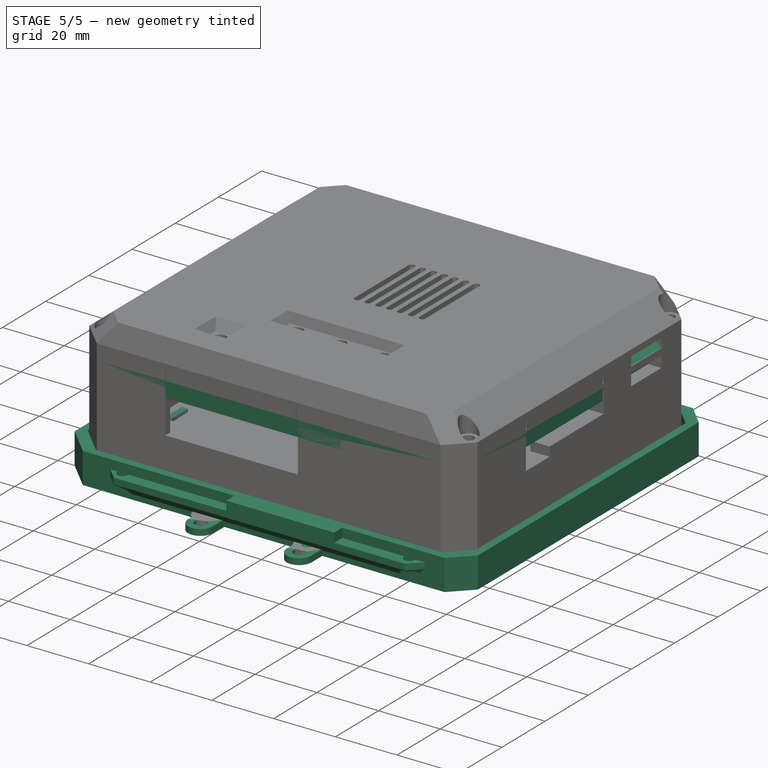
[diagram: stage 5 of 5 — iso view after this stage's code; geometry added in this stage tinted green]
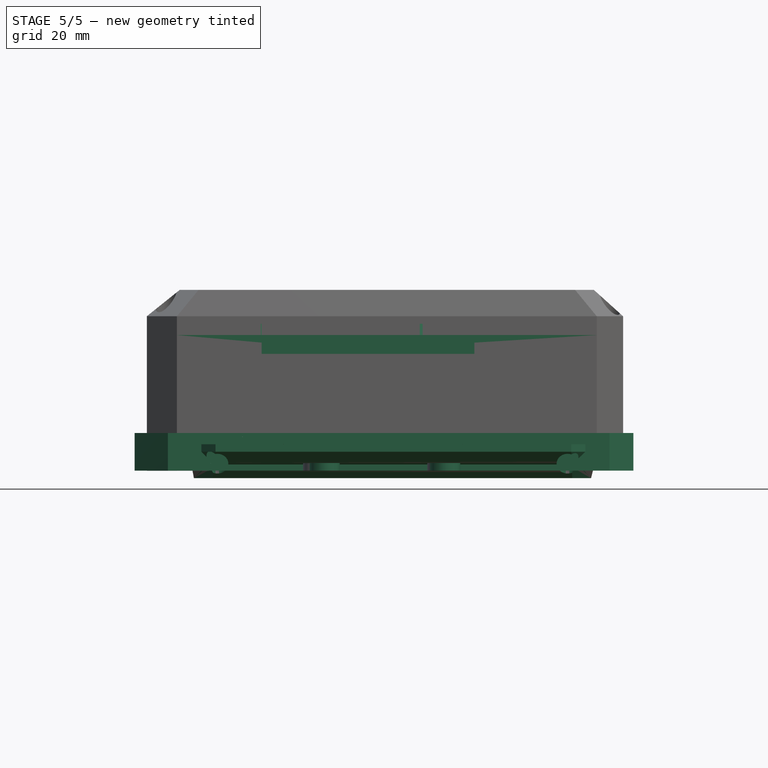
[diagram: stage 5 of 5 — front view after this stage's code; geometry added in this stage tinted green]
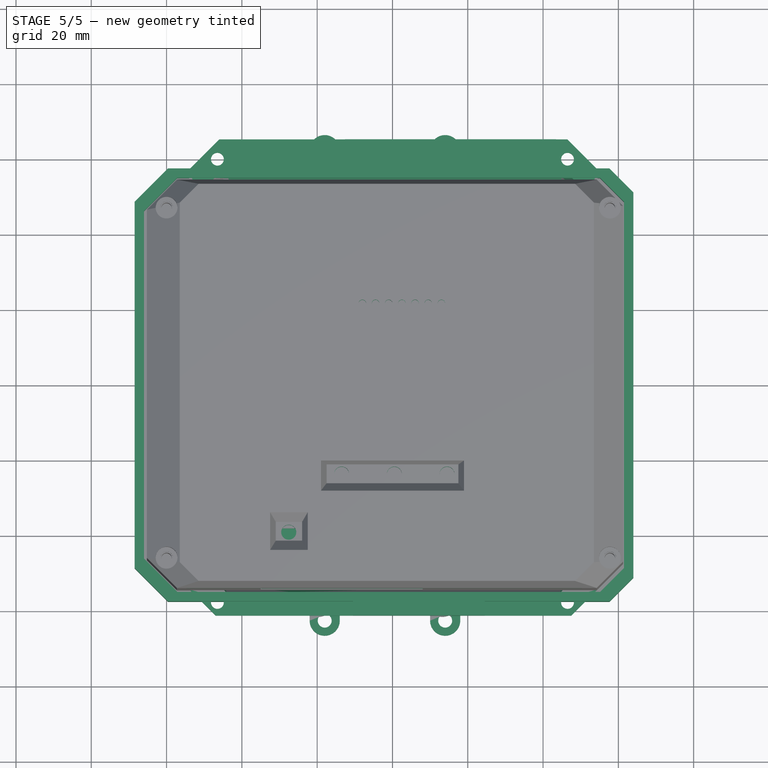
[diagram: stage 5 of 5 — top view after this stage's code; geometry added in this stage tinted green]
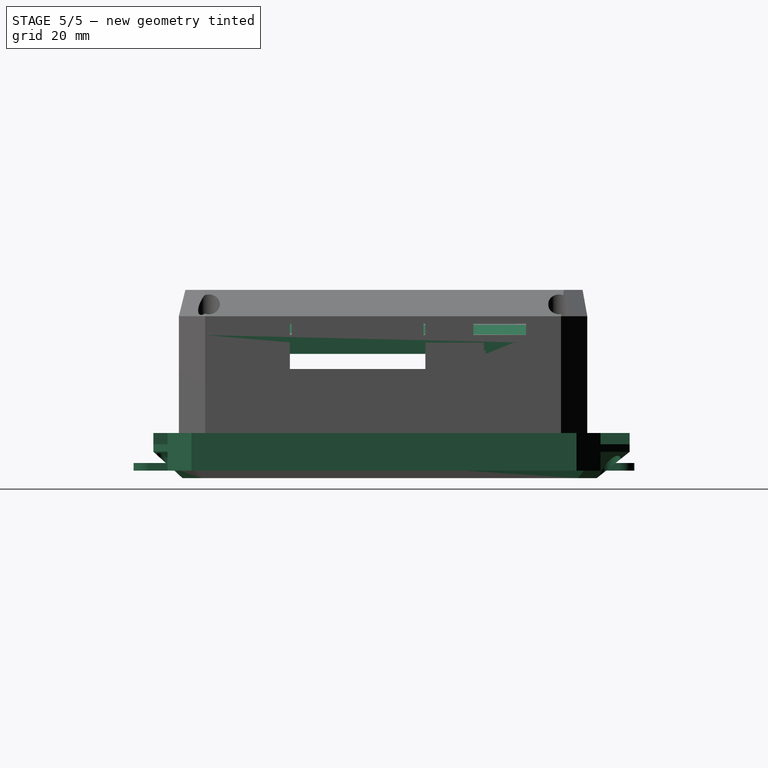
[diagram: stage 5 of 5 — right view after this stage's code; geometry added in this stage tinted green]
FEATURE [Sketcher::SketchObject] Sketch076
  MapMode = 5
  sketch-geometry (12):
    g0: LineSegment StartX=54.25 StartY=-54.5 StartZ=0 EndX=-57.25 EndY=-54.5 EndZ=0
    g1: LineSegment [constr] StartX=50.25 StartY=47.25 StartZ=0 EndX=50.25 EndY=-47.25 EndZ=0
    g2: LineSegment [constr] StartX=50.25 StartY=-47.25 StartZ=0 EndX=-50.25 EndY=-47.25 EndZ=0
    g3: LineSegment [constr] StartX=-50.25 StartY=-47.25 StartZ=0 EndX=-50.25 EndY=47.25 EndZ=0
    g4: LineSegment [constr] StartX=-50.25 StartY=47.25 StartZ=0 EndX=50.25 EndY=47.25 EndZ=0
    g5: LineSegment StartX=-57.25 StartY=54 StartZ=0 EndX=54.25 EndY=54 EndZ=0
    g6: LineSegment StartX=-57.25 StartY=54 StartZ=0 EndX=-65.25 EndY=46 EndZ=0
    g7: LineSegment StartX=-65.25 StartY=46 StartZ=0 EndX=-65.25 EndY=-46.5 EndZ=0
    g8: LineSegment StartX=-65.25 StartY=-46.5 StartZ=0 EndX=-57.25 EndY=-54.5 EndZ=0
    g9: LineSegment StartX=54.25 StartY=54 StartZ=0 EndX=61.25 EndY=47 EndZ=0
    g10: LineSegment StartX=61.25 StartY=47 StartZ=0 EndX=61.25 EndY=-47.5 EndZ=0
    g11: LineSegment StartX=61.25 StartY=-47.5 StartZ=0 EndX=54.25 EndY=-54.5 EndZ=0
  constraints (36):
    c: Horizontal(g0)
    c: Coincident(g1,g2)
    c: Coincident(g2,g3)
    c: Vertical(g1)
    c: Vertical(g3)
    c: Symmetric(g3,g2,g-1)
    c: Coincident(g4,g1)
    c: Horizontal(g4)
    c: Symmetric(g2,g1,g-2)
    c: DistanceY(g1,g1) = 94.5
    c: Symmetric(g1,g1,g-1)
    c: Coincident(g4,g3)
    c: DistanceX(g2,g1) = 100.5
    c: Horizontal(g5)
    c: DistanceX(g1,g5) = 4
    c: DistanceX(g5,g3) = 7
    c: Coincident(g6,g7)
    c: Vertical(g7)
    c: Coincident(g7,g8)
    c: Equal(g6,g8)
    c: Coincident(g8,g0)
    c: Coincident(g6,g5)
    c: Angle(g7,g6) = 2.35619
    c: DistanceX(g6,g5) = 8
    c: Coincident(g9,g10)
    c: Vertical(g10)
    c: Coincident(g10,g11)
    c: Equal(g11,g9)
    c: Coincident(g9,g5)
    c: Coincident(g11,g0)
    c: Equal(g0,g5)
    c: Angle(g9,g10) = 2.35619
    c: DistanceX(g5,g9) = 7
    c: DistanceY(g0,g2) = 7.25
    c: Angle(g8,g7) = 2.35619
    c: DistanceY(g3,g5) = 6.75
FEATURE [Sketcher::SketchObject] Sketch077
  MapMode = 5
  Placement = pos=(0,0,9) rot=(0,0,1;0rad)
  sketch-geometry (12):
    g0: LineSegment StartX=48.5 StartY=-52.75 StartZ=0 EndX=-51.5 EndY=-52.75 EndZ=0
    g1: LineSegment [constr] StartX=43.5 StartY=45 StartZ=0 EndX=43.5 EndY=-45 EndZ=0
    g2: LineSegment [constr] StartX=43.5 StartY=-45 StartZ=0 EndX=-43.5 EndY=-45 EndZ=0
    g3: LineSegment [constr] StartX=-43.5 StartY=-45 StartZ=0 EndX=-43.5 EndY=45 EndZ=0
    g4: LineSegment [constr] StartX=-43.5 StartY=45 StartZ=0 EndX=43.5 EndY=45 EndZ=0
    g5: LineSegment StartX=-51.5 StartY=52.75 StartZ=0 EndX=48.5 EndY=52.75 EndZ=0
    g6: LineSegment StartX=-51.5 StartY=52.75 StartZ=0 EndX=-56.5 EndY=47.75 EndZ=0
    g7: LineSegment StartX=-56.5 StartY=47.75 StartZ=0 EndX=-56.5 EndY=-47.75 EndZ=0
    g8: LineSegment StartX=-56.5 StartY=-47.75 StartZ=0 EndX=-51.5 EndY=-52.75 EndZ=0
    g9: LineSegment StartX=48.5 StartY=52.75 StartZ=0 EndX=53.5 EndY=47.75 EndZ=0
    g10: LineSegment StartX=53.5 StartY=47.75 StartZ=0 EndX=53.5 EndY=-47.75 EndZ=0
    g11: LineSegment StartX=53.5 StartY=-47.75 StartZ=0 EndX=48.5 EndY=-52.75 EndZ=0
  constraints (35):
    c: Horizontal(g0)
    c: Symmetric(g5,g0,g-1)
    c: Coincident(g1,g2)
    c: Coincident(g2,g3)
    c: Vertical(g1)
    c: Vertical(g3)
    c: Symmetric(g3,g2,g-1)
    c: Coincident(g4,g1)
    c: Horizontal(g4)
    c: Symmetric(g2,g1,g-2)
    c: DistanceY(g1,g1) = 90
    c: Symmetric(g1,g1,g-1)
    c: Coincident(g4,g3)
    c: DistanceX(g2,g1) = 87
    c: Horizontal(g5)
    c: DistanceX(g1,g5) = 5
    c: DistanceX(g5,g3) = 8
    c: Coincident(g6,g7)
    c: Vertical(g7)
    c: Coincident(g7,g8)
    c: Equal(g6,g8)
    c: Coincident(g8,g0)
    c: Coincident(g6,g5)
    c: Angle(g7,g6) = 2.35619
    c: DistanceX(g6,g5) = 5
    c: Coincident(g9,g10)
    c: Vertical(g10)
    c: Coincident(g10,g11)
    c: Equal(g11,g9)
    c: Coincident(g9,g5)
    c: Coincident(g11,g0)
    c: Equal(g0,g5)
    c: Angle(g9,g10) = 2.35619
    c: DistanceX(g5,g9) = 5
    c: DistanceY(g0,g2) = 7.75
FEATURE [Sketcher::SketchObject] Sketch078
  MapMode = 5
  sketch-geometry (12):
    g0: LineSegment StartX=47.5 StartY=-52.25 StartZ=0 EndX=-50.5 EndY=-52.25 EndZ=0
    g1: LineSegment [constr] StartX=43.5 StartY=45.25 StartZ=0 EndX=43.5 EndY=-45.25 EndZ=0
    g2: LineSegment [constr] StartX=43.5 StartY=-45.25 StartZ=0 EndX=-43.5 EndY=-45.25 EndZ=0
    g3: LineSegment [constr] StartX=-43.5 StartY=-45.25 StartZ=0 EndX=-43.5 EndY=45.25 EndZ=0
    g4: LineSegment [constr] StartX=-43.5 StartY=45.25 StartZ=0 EndX=43.5 EndY=45.25 EndZ=0
    g5: LineSegment StartX=-50.5 StartY=51.75 StartZ=0 EndX=47.5 EndY=51.75 EndZ=0
    g6: LineSegment StartX=-50.5 StartY=51.75 StartZ=0 EndX=-57.5 EndY=44.75 EndZ=0
    g7: LineSegment StartX=-57.5 StartY=44.75 StartZ=0 EndX=-57.5 EndY=-45.25 EndZ=0
    g8: LineSegment StartX=-57.5 StartY=-45.25 StartZ=0 EndX=-50.5 EndY=-52.25 EndZ=0
    g9: LineSegment StartX=47.5 StartY=51.75 StartZ=0 EndX=55 EndY=44.25 EndZ=0
    g10: LineSegment StartX=55 StartY=44.25 StartZ=0 EndX=55 EndY=-44.75 EndZ=0
    g11: LineSegment StartX=55 StartY=-44.75 StartZ=0 EndX=47.5 EndY=-52.25 EndZ=0
  constraints (36):
    c: Horizontal(g0)
    c: Coincident(g1,g2)
    c: Coincident(g2,g3)
    c: Vertical(g1)
    c: Vertical(g3)
    c: Symmetric(g3,g2,g-1)
    c: Coincident(g4,g1)
    c: Horizontal(g4)
    c: Symmetric(g2,g1,g-2)
    c: DistanceY(g1,g1) = 90.5
    c: Symmetric(g1,g1,g-1)
    c: Coincident(g4,g3)
    c: DistanceX(g2,g1) = 87
    c: Horizontal(g5)
    c: DistanceX(g1,g5) = 4
    c: DistanceX(g5,g3) = 7
    c: Coincident(g6,g7)
    c: Vertical(g7)
    c: Coincident(g7,g8)
    c: Equal(g6,g8)
    c: Coincident(g8,g0)
    c: Coincident(g6,g5)
    c: Angle(g7,g6) = 2.35619
    c: DistanceX(g6,g5) = 7
    c: Coincident(g9,g10)
    c: Vertical(g10)
    c: Coincident(g10,g11)
    c: Equal(g11,g9)
    c: Coincident(g9,g5)
    c: Coincident(g11,g0)
    c: Equal(g0,g5)
    c: Angle(g9,g10) = 2.35619
    c: DistanceX(g5,g9) = 7.5
    c: DistanceY(g0,g2) = 7
    c: Angle(g8,g7) = 2.35619
    c: DistanceY(g3,g5) = 6.5
FEATURE [Sketcher::SketchObject] Sketch079
  MapMode = 5
  Placement = pos=(0,0,4.5) rot=(0,0,1;0rad)
  sketch-geometry (12):
    g0: LineSegment StartX=45 StartY=-51.75 StartZ=0 EndX=-48 EndY=-51.75 EndZ=0
    g1: LineSegment [constr] StartX=41 StartY=44 StartZ=0 EndX=41 EndY=-44 EndZ=0
    g2: LineSegment [constr] StartX=41 StartY=-44 StartZ=0 EndX=-41 EndY=-44 EndZ=0
    g3: LineSegment [constr] StartX=-41 StartY=-44 StartZ=0 EndX=-41 EndY=44 EndZ=0
    g4: LineSegment [constr] StartX=-41 StartY=44 StartZ=0 EndX=41 EndY=44 EndZ=0
    g5: LineSegment StartX=-48 StartY=51.75 StartZ=0 EndX=45 EndY=51.75 EndZ=0
    g6: LineSegment StartX=-48 StartY=51.75 StartZ=0 EndX=-56 EndY=43.75 EndZ=0
    g7: LineSegment StartX=-56 StartY=43.75 StartZ=0 EndX=-56 EndY=-43.75 EndZ=0
    g8: LineSegment StartX=-56 StartY=-43.75 StartZ=0 EndX=-48 EndY=-51.75 EndZ=0
    g9: LineSegment StartX=45 StartY=51.75 StartZ=0 EndX=53 EndY=43.75 EndZ=0
    g10: LineSegment StartX=53 StartY=43.75 StartZ=0 EndX=53 EndY=-43.75 EndZ=0
    g11: LineSegment StartX=53 StartY=-43.75 StartZ=0 EndX=45 EndY=-51.75 EndZ=0
  constraints (35):
    c: Horizontal(g0)
    c: Symmetric(g5,g0,g-1)
    c: Coincident(g1,g2)
    c: Coincident(g2,g3)
    c: Vertical(g1)
    c: Vertical(g3)
    c: Symmetric(g3,g2,g-1)
    c: Coincident(g4,g1)
    c: Horizontal(g4)
    c: Symmetric(g2,g1,g-2)
    c: DistanceY(g1,g1) = 88
    c: Symmetric(g1,g1,g-1)
    c: Coincident(g4,g3)
    c: DistanceX(g2,g1) = 82
    c: Horizontal(g5)
    c: DistanceX(g1,g5) = 4
    c: DistanceX(g5,g3) = 7
    c: Coincident(g6,g7)
    c: Vertical(g7)
    c: Coincident(g7,g8)
    c: Equal(g6,g8)
    c: Coincident(g8,g0)
    c: Coincident(g6,g5)
    c: Angle(g7,g6) = 2.35619
    c: DistanceX(g6,g5) = 8
    c: Coincident(g9,g10)
    c: Vertical(g10)
    c: Coincident(g10,g11)
    c: Equal(g11,g9)
    c: Coincident(g9,g5)
    c: Coincident(g11,g0)
    c: Equal(g0,g5)
    c: Angle(g9,g10) = 2.35619
    c: DistanceX(g5,g9) = 8
    c: DistanceY(g0,g2) = 7.75
FEATURE [Part::Loft] Loft001
  Closed = false
  MaxDegree = 5
  Ruled = true
  Sections = -> [Sketch078,Sketch079]
  Solid = true
FEATURE [Sketcher::SketchObject] Sketch080
  MapMode = 5
  sketch-geometry (12):
    g0: LineSegment StartX=-52 StartY=43 StartZ=0 EndX=52 EndY=43 EndZ=0
    g1: LineSegment StartX=52 StartY=43 StartZ=0 EndX=52 EndY=-21 EndZ=0
    g2: LineSegment StartX=52 StartY=-21 StartZ=0 EndX=-52 EndY=-21 EndZ=0
    g3: LineSegment StartX=-52 StartY=-21 StartZ=0 EndX=-52 EndY=43 EndZ=0
    g4: LineSegment StartX=18.5 StartY=-33 StartZ=0 EndX=23.5 EndY=-33 EndZ=0
    g5: LineSegment StartX=23.5 StartY=-33 StartZ=0 EndX=23.5 EndY=-39 EndZ=0
    g6: LineSegment StartX=23.5 StartY=-39 StartZ=0 EndX=18.5 EndY=-39 EndZ=0
    g7: LineSegment StartX=18.5 StartY=-39 StartZ=0 EndX=18.5 EndY=-33 EndZ=0
    g8: LineSegment StartX=5 StartY=-46 StartZ=0 EndX=14 EndY=-46 EndZ=0
    g9: LineSegment StartX=14 StartY=-46 StartZ=0 EndX=14 EndY=-49 EndZ=0
    g10: LineSegment StartX=14 StartY=-49 StartZ=0 EndX=5 EndY=-49 EndZ=0
    g11: LineSegment StartX=5 StartY=-49 StartZ=0 EndX=5 EndY=-46 EndZ=0
  constraints (36):
    c: Coincident(g0,g1)
    c: Coincident(g1,g2)
    c: Coincident(g2,g3)
    c: Coincident(g3,g0)
    c: Horizontal(g0)
    c: Horizontal(g2)
    c: Vertical(g1)
    c: Vertical(g3)
    c: Symmetric(g0,g0,g-2)
    c: DistanceX(g0,g0) = 104
    c: DistanceY(g1,g-1) = 21
    c: DistanceY(g-1,g0) = 43
    c: Coincident(g4,g5)
    c: Coincident(g5,g6)
    c: Coincident(g6,g7)
    c: Coincident(g7,g4)
    c: Horizontal(g4)
    c: Horizontal(g6)
    c: Vertical(g5)
    c: Vertical(g7)
    c: Coincident(g8,g9)
    c: Coincident(g9,g10)
    c: Coincident(g10,g11)
    c: Coincident(g11,g8)
    c: Horizontal(g8)
    c: Horizontal(g10)
    c: Vertical(g9)
    c: Vertical(g11)
    c: DistanceX(g8,g8) = 9
    c: DistanceY(g9,g9) = 3
    c: DistanceY(g7,g7) = 6
    c: DistanceY(g6,g-1) = 39
    c: DistanceX(g-1,g4) = 18.5
    c: DistanceY(g10,g-1) = 49
    c: DistanceX(g-1,g8) = 5
    c: DistanceX(g4,g4) = 5
FEATURE [Part::Extrusion] Extrude074
  Base = -> Sketch080
  Dir = (0,0,5)
  DirMode = 0
  FaceMakerClass = Part::FaceMakerExtrusion
  LengthFwd = 0
  LengthRev = 0
  Placement = pos=(0,0,2.5) rot=(0,0,1;0rad)
  Solid = true
  Symmetric = false
FEATURE [Sketcher::SketchObject] Sketch081
  MapMode = 5
  sketch-geometry (8):
    g0: Circle CenterX=-60 CenterY=46.5 CenterZ=0 NormalX=0 NormalY=0 NormalZ=1 AngleXU=0 Radius=1.7
    g1: Circle CenterX=57.75 CenterY=46.5 CenterZ=0 NormalX=0 NormalY=0 NormalZ=1 AngleXU=0 Radius=1.7
    g2: Circle CenterX=-60 CenterY=-46.5 CenterZ=0 NormalX=0 NormalY=0 NormalZ=1 AngleXU=0 Radius=1.7
    g3: Circle CenterX=57.75 CenterY=-46.5 CenterZ=0 NormalX=0 NormalY=0 NormalZ=1 AngleXU=0 Radius=1.7
    g4: LineSegment [constr] StartX=-60 StartY=46.5 StartZ=0 EndX=57.75 EndY=46.5 EndZ=0
    g5: LineSegment [constr] StartX=57.75 StartY=46.5 StartZ=0 EndX=57.75 EndY=-46.5 EndZ=0
    g6: LineSegment [constr] StartX=57.75 StartY=-46.5 StartZ=0 EndX=-60 EndY=-46.5 EndZ=0
    g7: LineSegment [constr] StartX=-60 StartY=-46.5 StartZ=0 EndX=-60 EndY=46.5 EndZ=0
  constraints (20):
    c: Radius(g0) = 1.7
    c: Equal(g0,g1)
    c: Equal(g0,g3)
    c: Equal(g0,g2)
    c: Coincident(g4,g5)
    c: Coincident(g5,g6)
    c: Coincident(g6,g7)
    c: Coincident(g7,g4)
    c: Horizontal(g4)
    c: Horizontal(g6)
    c: Vertical(g5)
    c: Vertical(g7)
    c: Coincident(g4,g0)
    c: Coincident(g5,g3)
    c: Coincident(g1,g4)
    c: Coincident(g2,g6)
    c: Symmetric(g2,g0,g-1)
    c: DistanceY(g7,g7) = 93
    c: DistanceX(g2,g-1) = 60
    c: DistanceX(g-1,g3) = 57.75
FEATURE [Part::Extrusion] Extrude075
  Base = -> Sketch081
  Dir = (0,0,5)
  DirMode = 0
  FaceMakerClass = Part::FaceMakerExtrusion
  LengthFwd = 0
  LengthRev = 0
  Solid = true
  Symmetric = false
FEATURE [Sketcher::SketchObject] Sketch082
  MapMode = 5
  sketch-geometry (8):
    g0: Circle CenterX=-60 CenterY=46.5 CenterZ=0 NormalX=0 NormalY=0 NormalZ=1 AngleXU=0 Radius=2.9
    g1: Circle CenterX=57.75 CenterY=46.5 CenterZ=0 NormalX=0 NormalY=0 NormalZ=1 AngleXU=0 Radius=2.9
    g2: Circle CenterX=-60 CenterY=-46.5 CenterZ=0 NormalX=0 NormalY=0 NormalZ=1 AngleXU=0 Radius=2.9
    g3: Circle CenterX=57.75 CenterY=-46.5 CenterZ=0 NormalX=0 NormalY=0 NormalZ=1 AngleXU=0 Radius=2.9
    g4: LineSegment [constr] StartX=-60 StartY=46.5 StartZ=0 EndX=57.75 EndY=46.5 EndZ=0
    g5: LineSegment [constr] StartX=57.75 StartY=46.5 StartZ=0 EndX=57.75 EndY=-46.5 EndZ=0
    g6: LineSegment [constr] StartX=57.75 StartY=-46.5 StartZ=0 EndX=-60 EndY=-46.5 EndZ=0
    g7: LineSegment [constr] StartX=-60 StartY=-46.5 StartZ=0 EndX=-60 EndY=46.5 EndZ=0
  constraints (20):
    c: Radius(g0) = 2.9
    c: Equal(g0,g1)
    c: Equal(g0,g3)
    c: Equal(g0,g2)
    c: Coincident(g4,g5)
    c: Coincident(g5,g6)
    c: Coincident(g6,g7)
    c: Coincident(g7,g4)
    c: Horizontal(g4)
    c: Horizontal(g6)
    c: Vertical(g5)
    c: Vertical(g7)
    c: Coincident(g4,g0)
    c: Coincident(g5,g3)
    c: Coincident(g1,g4)
    c: Coincident(g2,g6)
    c: Symmetric(g2,g0,g-1)
    c: DistanceY(g7,g7) = 93
    c: DistanceX(g2,g-1) = 60
    c: DistanceX(g-1,g3) = 57.75
FEATURE [Part::Extrusion] Extrude076
  Base = -> Sketch082
  Dir = (0,0,10)
  DirMode = 0
  FaceMakerClass = Part::FaceMakerExtrusion
  LengthFwd = 0
  LengthRev = 0
  Placement = pos=(0,0,2) rot=(0,0,1;0rad)
  Solid = true
  Symmetric = false
FEATURE [Part::MultiFuse] Fusion030
  Shapes = -> [Extrude075,Extrude076]
FEATURE [Part::MultiFuse] Fusion029
  Shapes = -> [Extrude074,Loft001,Fusion030,Extrude077,Loft002,Loft003]
FEATURE [Sketcher::SketchObject] Sketch088
  MapMode = 5
  sketch-geometry (37):
    g0: LineSegment StartX=-65.25 StartY=12.5 StartZ=0 EndX=-57.5 EndY=12.5 EndZ=0
    g1: LineSegment StartX=-57.5 StartY=12.5 StartZ=0 EndX=-57.5 EndY=-43.5 EndZ=0
    g2: LineSegment StartX=-57.5 StartY=-43.5 StartZ=0 EndX=-65.25 EndY=-43.5 EndZ=0
    g3: LineSegment StartX=-65.25 StartY=-43.5 StartZ=0 EndX=-65.25 EndY=12.5 EndZ=0
    g4: LineSegment StartX=-61.5 StartY=33 StartZ=0 EndX=-57.5 EndY=33 EndZ=0
    g5: LineSegment StartX=-57.5 StartY=33 StartZ=0 EndX=-57.5 EndY=16 EndZ=0
    g6: LineSegment StartX=-57.5 StartY=16 StartZ=0 EndX=-61.5 EndY=16 EndZ=0
    g7: LineSegment StartX=-61.5 StartY=16 StartZ=0 EndX=-61.5 EndY=33 EndZ=0
    g8: LineSegment StartX=55 StartY=10.5 StartZ=0 EndX=61.25 EndY=10.5 EndZ=0
    g9: LineSegment StartX=61.25 StartY=10.5 StartZ=0 EndX=61.25 EndY=-24.5 EndZ=0
    g10: LineSegment StartX=61.25 StartY=-24.5 StartZ=0 EndX=55 EndY=-24.5 EndZ=0
    g11: LineSegment StartX=55 StartY=-24.5 StartZ=0 EndX=55 EndY=10.5 EndZ=0
    g12: LineSegment StartX=-34.75 StartY=-52.25 StartZ=0 EndX=21.75 EndY=-52.25 EndZ=0
    g13: LineSegment StartX=21.75 StartY=-52.25 StartZ=0 EndX=21.75 EndY=-54.5 EndZ=0
    g14: LineSegment StartX=21.75 StartY=-54.5 StartZ=0 EndX=-34.75 EndY=-54.5 EndZ=0
    g15: LineSegment StartX=-34.75 StartY=-54.5 StartZ=0 EndX=-34.75 EndY=-52.25 EndZ=0
    g16: LineSegment StartX=55 StartY=34.5 StartZ=0 EndX=57 EndY=34.5 EndZ=0
    g17: LineSegment StartX=57 StartY=34.5 StartZ=0 EndX=57 EndY=27 EndZ=0
    g18: LineSegment StartX=57 StartY=27 StartZ=0 EndX=55 EndY=27 EndZ=0
    g19: LineSegment StartX=55 StartY=27 StartZ=0 EndX=55 EndY=34.5 EndZ=0
    g20: LineSegment StartX=33.25 StartY=54 StartZ=0 EndX=40.75 EndY=54 EndZ=0
    g21: LineSegment StartX=40.75 StartY=54 StartZ=0 EndX=40.75 EndY=52 EndZ=0
    g22: LineSegment StartX=40.75 StartY=52 StartZ=0 EndX=33.25 EndY=52 EndZ=0
    g23: LineSegment StartX=33.25 StartY=52 StartZ=0 EndX=33.25 EndY=54 EndZ=0
    g24: LineSegment StartX=-45.5 StartY=54 StartZ=0 EndX=-38 EndY=54 EndZ=0
    g25: LineSegment StartX=-38 StartY=54 StartZ=0 EndX=-38 EndY=52 EndZ=0
    g26: LineSegment StartX=-38 StartY=52 StartZ=0 EndX=-45.5 EndY=52 EndZ=0
    g27: LineSegment StartX=-45.5 StartY=52 StartZ=0 EndX=-45.5 EndY=54 EndZ=0
    g28: LineSegment StartX=1.25 StartY=54 StartZ=0 EndX=13.25 EndY=54 EndZ=0
    g29: LineSegment StartX=13.25 StartY=54 StartZ=0 EndX=13.25 EndY=52 EndZ=0
    g30: LineSegment StartX=13.25 StartY=52 StartZ=0 EndX=1.25 EndY=52 EndZ=0
    g31: LineSegment StartX=1.25 StartY=52 StartZ=0 EndX=1.25 EndY=54 EndZ=0
    g32: LineSegment StartX=19.75 StartY=54 StartZ=0 EndX=26.75 EndY=54 EndZ=0
    g33: LineSegment StartX=26.75 StartY=54 StartZ=0 EndX=26.75 EndY=52 EndZ=0
    g34: LineSegment StartX=26.75 StartY=52 StartZ=0 EndX=19.75 EndY=52 EndZ=0
    g35: LineSegment StartX=19.75 StartY=52 StartZ=0 EndX=19.75 EndY=54 EndZ=0
    g36: LineSegment [constr] StartX=-45.5 StartY=52 StartZ=0 EndX=40.75 EndY=52 EndZ=0
  constraints (110):
    c: Coincident(g0,g1)
    c: Coincident(g1,g2)
    c: Coincident(g2,g3)
    c: Coincident(g3,g0)
    c: Horizontal(g0)
    c: Horizontal(g2)
    c: Vertical(g1)
    c: Vertical(g3)
    c: DistanceY(g3,g3) = 56
    c: DistanceX(g2,g2) = 7.75
    c: DistanceX(g0,g-1) = 57.5
    c: DistanceY(g-1,g0) = 12.5
    c: Coincident(g4,g5)
    c: Coincident(g5,g6)
    c: Coincident(g6,g7)
    c: Coincident(g7,g4)
    c: Horizontal(g4)
    c: Horizontal(g6)
    c: Vertical(g5)
    c: Vertical(g7)
    c: DistanceX(g4,g4) = 4
    c: DistanceY(g7,g7) = 17
    c: DistanceX(g5,g-1) = 57.5
    c: DistanceY(g-1,g5) = 16
    c: Coincident(g8,g9)
    c: Coincident(g9,g10)
    c: Coincident(g10,g11)
    c: Coincident(g11,g8)
    c: Horizontal(g8)
    c: Horizontal(g10)
    c: Vertical(g9)
    c: Vertical(g11)
    c: DistanceX(g10,g10) = 6.25
    c: DistanceY(g9,g9) = 35
    c: DistanceX(g-1,g10) = 55
    c: DistanceY(g10,g-1) = 24.5
    c: Coincident(g12,g13)
    c: Coincident(g13,g14)
    c: Coincident(g14,g15)
    c: Coincident(g15,g12)
    c: Horizontal(g12)
    c: Horizontal(g14)
    c: Vertical(g13)
    c: Vertical(g15)
    c: DistanceY(g13,g13) = 2.25
    c: DistanceY(g12,g-1) = 52.25
    c: Coincident(g16,g17)
    c: Coincident(g17,g18)
    c: Coincident(g18,g19)
    c: Coincident(g19,g16)
    c: Horizontal(g16)
    c: Horizontal(g18)
    c: Vertical(g17)
    c: Vertical(g19)
    c: DistanceX(g18,g18) = 2
    c: Coincident(g20,g21)
    c: Coincident(g21,g22)
    c: Coincident(g22,g23)
    c: Coincident(g23,g20)
    c: Horizontal(g20)
    c: Horizontal(g22)
    c: Vertical(g21)
    c: Vertical(g23)
    c: Coincident(g24,g25)
    c: Coincident(g25,g26)
    c: Coincident(g26,g27)
    c: Coincident(g27,g24)
    c: Horizontal(g24)
    c: Horizontal(g26)
    c: Vertical(g25)
    c: Vertical(g27)
    c: Coincident(g28,g29)
    c: Coincident(g29,g30)
    c: Coincident(g30,g31)
    c: Coincident(g31,g28)
    c: Horizontal(g28)
    c: Horizontal(g30)
    c: Vertical(g29)
    c: Vertical(g31)
    c: Coincident(g32,g33)
    c: Coincident(g33,g34)
    c: Coincident(g34,g35)
    c: Coincident(g35,g32)
    c: Horizontal(g32)
    c: Horizontal(g34)
    c: Vertical(g33)
    c: Vertical(g35)
    c: Coincident(g36,g26)
    c: Coincident(g36,g21)
    c: Horizontal(g36)
    c: PointOnObject(g33,g36)
    c: PointOnObject(g29,g36)
    c: Equal(g21,g33)
    c: Equal(g33,g29)
    c: Equal(g29,g25)
    c: DistanceY(g27,g27) = 2
    c: DistanceY(g-1,g21) = 52
    c: Equal(g20,g24)
    c: DistanceX(g20,g20) = 7.5
    c: DistanceX(g-1,g21) = 40.75
    c: DistanceX(g32,g20) = 14
    c: DistanceX(g32,g32) = 7
    c: DistanceX(g28,g20) = 27.5
    c: DistanceX(g28,g28) = 12
    c: DistanceX(g24,g20) = 78.75
    c: PointOnObject(g18,g11)
    c: DistanceY(g8,g17) = 16.5
    c: DistanceY(g17,g17) = 7.5
    c: DistanceX(g12,g-1) = 34.75
    c: DistanceX(g14,g14) = 56.5
FEATURE [Part::Extrusion] Extrude078
  Base = -> Sketch088
  Dir = (0,0,-3)
  DirMode = 0
  FaceMakerClass = Part::FaceMakerExtrusion
  LengthFwd = 0
  LengthRev = 0
  Solid = true
  Symmetric = false
FEATURE [Sketcher::SketchObject] Sketch089
  MapMode = 5
  sketch-geometry (4):
    g0: LineSegment StartX=-45 StartY=-20 StartZ=0 EndX=45 EndY=-20 EndZ=0
    g1: LineSegment StartX=45 StartY=-20 StartZ=0 EndX=45 EndY=-52 EndZ=0
    g2: LineSegment StartX=45 StartY=-52 StartZ=0 EndX=-45 EndY=-52 EndZ=0
    g3: LineSegment StartX=-45 StartY=-52 StartZ=0 EndX=-45 EndY=-20 EndZ=0
  constraints (12):
    c: Coincident(g0,g1)
    c: Coincident(g1,g2)
    c: Coincident(g2,g3)
    c: Coincident(g3,g0)
    c: Horizontal(g0)
    c: Horizontal(g2)
    c: Vertical(g1)
    c: Vertical(g3)
    c: Symmetric(g0,g0,g-2)
    c: DistanceX(g2,g2) = 90
    c: DistanceY(g1,g1) = 32
    c: DistanceY(g0,g-1) = 20
FEATURE [Part::Extrusion] Extrude079
  Base = -> Sketch089
  Dir = (0,0,10)
  DirMode = 0
  FaceMakerClass = Part::FaceMakerExtrusion
  LengthFwd = 0
  LengthRev = 0
  Solid = true
  Symmetric = false
FEATURE [Part::Cut] Cut002
  Base = -> Loft
  Tool = -> Fusion029
FEATURE [Part::MultiFuse] Fusion031
  Placement = pos=(0,0,27) rot=(0,0,1;0rad)
  Shapes = -> [Extrude078,Cut002]
FEATURE [Part::FeaturePython] Clone001  label="Clone of Fusion031"  # Draft clone (typed FeaturePython)
  Objects = -> [Fusion031]
  Scale = (1,1,1)
FEATURE [Part::Cut] Cut004
  Base = -> Clone001
  Placement = pos=(0,0,0) rot=(0.707107,-0.707107,0;3.14159rad)
  Tool = -> Extrude079
FEATURE [Part::Box] Box013  label="Cube013"
  AttacherType = Attacher::AttachEngine3D
  Height = 18
  Length = 14
  Placement = pos=(8,-54.5,7) rot=(0,0,1;0rad)
  Width = 3
FEATURE [Part::FeaturePython] Clone  label="Clone of Cut003"  # Draft clone (typed FeaturePython)
  Objects = -> [Cut003]
  Scale = (1,1,1)
FEATURE [Part::Cut] Cut005
  Base = -> Clone
  Tool = -> Box013
FEATURE [Sketcher::SketchObject] Sketch092
  MapMode = 5
  sketch-geometry (16):
    g0: LineSegment StartX=57.25 StartY=-57.5 StartZ=0 EndX=-60.25 EndY=-57.5 EndZ=0
    g1: LineSegment [constr] StartX=53.25 StartY=50.25 StartZ=0 EndX=53.25 EndY=-50.25 EndZ=0
    g2: LineSegment [constr] StartX=53.25 StartY=-50.25 StartZ=0 EndX=-53.25 EndY=-50.25 EndZ=0
    g3: LineSegment [constr] StartX=-53.25 StartY=-50.25 StartZ=0 EndX=-53.25 EndY=50.25 EndZ=0
    g4: LineSegment [constr] StartX=-53.25 StartY=50.25 StartZ=0 EndX=53.25 EndY=50.25 EndZ=0
    g5: LineSegment StartX=-60.25 StartY=57 StartZ=0 EndX=57.25 EndY=57 EndZ=0
    g6: LineSegment StartX=-60.25 StartY=57 StartZ=0 EndX=-68.25 EndY=49 EndZ=0
    g7: LineSegment StartX=-68.25 StartY=49 StartZ=0 EndX=-68.25 EndY=-49.5 EndZ=0
    g8: LineSegment StartX=-68.25 StartY=-49.5 StartZ=0 EndX=-60.25 EndY=-57.5 EndZ=0
    g9: LineSegment StartX=57.25 StartY=57 StartZ=0 EndX=63.25 EndY=51 EndZ=0
    g10: LineSegment StartX=63.25 StartY=51 StartZ=0 EndX=63.25 EndY=-51.5 EndZ=0
    g11: LineSegment StartX=63.25 StartY=-51.5 StartZ=0 EndX=57.25 EndY=-57.5 EndZ=0
    g12: LineSegment StartX=-35 StartY=-37 StartZ=0 EndX=9 EndY=-37 EndZ=0
    g13: LineSegment StartX=9 StartY=-37 StartZ=0 EndX=9 EndY=-49 EndZ=0
    g14: LineSegment StartX=9 StartY=-49 StartZ=0 EndX=-35 EndY=-49 EndZ=0
    g15: LineSegment StartX=-35 StartY=-49 StartZ=0 EndX=-35 EndY=-37 EndZ=0
  constraints (48):
    c: Horizontal(g0)
    c: Coincident(g1,g2)
    c: Coincident(g2,g3)
    c: Vertical(g1)
    c: Vertical(g3)
    c: Symmetric(g3,g2,g-1)
    c: Coincident(g4,g1)
    c: Horizontal(g4)
    c: Symmetric(g2,g1,g-2)
    c: DistanceY(g1,g1) = 100.5
    c: Symmetric(g1,g1,g-1)
    c: Coincident(g4,g3)
    c: DistanceX(g2,g1) = 106.5
    c: Horizontal(g5)
    c: DistanceX(g1,g5) = 4
    c: DistanceX(g5,g3) = 7
    c: Coincident(g6,g7)
    c: Vertical(g7)
    c: Coincident(g7,g8)
    c: Equal(g6,g8)
    c: Coincident(g8,g0)
    c: Coincident(g6,g5)
    c: Angle(g7,g6) = 2.35619
    c: DistanceX(g6,g5) = 8
    c: Coincident(g9,g10)
    c: Vertical(g10)
    c: Coincident(g10,g11)
    c: Equal(g11,g9)
    c: Coincident(g9,g5)
    c: Coincident(g11,g0)
    c: Equal(g0,g5)
    c: Angle(g9,g10) = 2.35619
    c: DistanceX(g5,g9) = 6
    c: DistanceY(g0,g2) = 7.25
    c: Angle(g8,g7) = 2.35619
    c: DistanceY(g3,g5) = 6.75
    c: Coincident(g12,g13)
    c: Coincident(g13,g14)
    c: Coincident(g14,g15)
    c: Coincident(g15,g12)
    c: Horizontal(g12)
    c: Horizontal(g14)
    c: Vertical(g13)
    c: Vertical(g15)
    c: DistanceY(g12,g-1) = 37
    c: DistanceX(g-1,g12) = 9
    c: DistanceY(g13,g-1) = 49
    c: DistanceX(g12,g-1) = 35
FEATURE [Sketcher::SketchObject] Sketch093
  MapMode = 5
  sketch-geometry (23):
    g0: LineSegment StartX=-59.6612 StartY=57.5 StartZ=0 EndX=57.636 EndY=57.5 EndZ=0
    g1: LineSegment StartX=57.636 StartY=57.5 StartZ=0 EndX=64 EndY=51.136 EndZ=0
    g2: LineSegment StartX=64 StartY=51.136 StartZ=0 EndX=64 EndY=-51.136 EndZ=0
    g3: LineSegment StartX=64 StartY=-51.136 StartZ=0 EndX=57.636 EndY=-57.5 EndZ=0
    g4: LineSegment StartX=57.636 StartY=-57.5 StartZ=0 EndX=-59.6612 EndY=-57.5 EndZ=0
    g5: LineSegment StartX=-59.6612 StartY=-57.5 StartZ=0 EndX=-68.5 EndY=-48.6612 EndZ=0
    g6: LineSegment StartX=-68.5 StartY=-48.6612 StartZ=0 EndX=-68.5 EndY=48.6612 EndZ=0
    g7: LineSegment StartX=-68.5 StartY=48.6612 StartZ=0 EndX=-59.6612 EndY=57.5 EndZ=0
    g8: LineSegment StartX=-57.1612 StartY=55 StartZ=0 EndX=55.136 EndY=55 EndZ=0
    g9: LineSegment StartX=55.136 StartY=55 StartZ=0 EndX=61.5 EndY=48.636 EndZ=0
    g10: LineSegment StartX=61.5 StartY=48.636 StartZ=0 EndX=61.5 EndY=-48.636 EndZ=0
    g11: LineSegment StartX=61.5 StartY=-48.636 StartZ=0 EndX=55.136 EndY=-55 EndZ=0
    g12: LineSegment StartX=55.136 StartY=-55 StartZ=0 EndX=-57.1612 EndY=-55 EndZ=0
    g13: LineSegment StartX=-57.1612 StartY=-55 StartZ=0 EndX=-66 EndY=-46.1612 EndZ=0
    g14: LineSegment StartX=-66 StartY=-46.1612 StartZ=0 EndX=-66 EndY=46.1612 EndZ=0
    g15: LineSegment StartX=-66 StartY=46.1612 StartZ=0 EndX=-57.1612 EndY=55 EndZ=0
    g16: LineSegment [constr] StartX=-68.5 StartY=48.6612 StartZ=0 EndX=-66 EndY=46.1612 EndZ=0
    g17: LineSegment [constr] StartX=-59.6612 StartY=57.5 StartZ=0 EndX=-57.1612 EndY=55 EndZ=0
    g18: LineSegment [constr] StartX=-68.5 StartY=-48.6612 StartZ=0 EndX=-66 EndY=-46.1612 EndZ=0
    g19: LineSegment [constr] StartX=-59.6612 StartY=-57.5 StartZ=0 EndX=-57.1612 EndY=-55 EndZ=0
    g20: LineSegment [constr] StartX=55.136 StartY=55 StartZ=0 EndX=57.636 EndY=57.5 EndZ=0
    g21: LineSegment [constr] StartX=61.5 StartY=48.636 StartZ=0 EndX=64 EndY=51.136 EndZ=0
    g22: LineSegment [constr] StartX=55.136 StartY=-55 StartZ=0 EndX=57.636 EndY=-57.5 EndZ=0
  constraints (62):
    c: Horizontal(g0)
    c: Coincident(g0,g1)
    c: Coincident(g1,g2)
    c: Vertical(g2)
    c: Coincident(g2,g3)
    c: Coincident(g3,g4)
    c: Horizontal(g4)
    c: Coincident(g4,g5)
    c: Coincident(g5,g6)
    c: Vertical(g6)
    c: Coincident(g6,g7)
    c: Coincident(g0,g7)
    c: Equal(g5,g7)
    c: Equal(g1,g3)
    c: Angle(g6,g7) = 2.35619
    c: Angle(g5,g6) = 2.35619
    c: Angle(g2,g3) = 2.35619
    c: Angle(g1,g2) = 2.35619
    c: DistanceY(g3,g0) = 115
    c: DistanceX(g-1,g2) = 64
    c: DistanceX(g5,g-1) = 68.5
    c: Distance(g5) = 12.5
    c: Symmetric(g5,g6,g-1)
    c: Horizontal(g8)
    c: Coincident(g8,g9)
    c: Coincident(g9,g10)
    c: Vertical(g10)
    c: Coincident(g10,g11)
    c: Coincident(g11,g12)
    c: Horizontal(g12)
    c: Coincident(g12,g13)
    c: Coincident(g13,g14)
    c: Vertical(g14)
    c: Coincident(g14,g15)
    c: Coincident(g15,g8)
    c: Parallel(g15,g7)
    c: Coincident(g16,g6)
    c: Coincident(g16,g14)
    c: Perpendicular(g7,g16)
    c: Coincident(g17,g0)
    c: Coincident(g17,g8)
    c: Perpendicular(g7,g17)
    c: Coincident(g18,g5)
    c: Coincident(g18,g13)
    c: Coincident(g19,g4)
    c: Coincident(g19,g12)
    c: Perpendicular(g5,g18)
    c: Perpendicular(g5,g19)
    c: Parallel(g13,g5)
    c: DistanceX(g6,g14) = 2.5
    c: Parallel(g9,g1)
    c: Coincident(g20,g8)
    c: Coincident(g20,g0)
    c: Coincident(g21,g9)
    c: Coincident(g21,g1)
    c: Perpendicular(g1,g21)
    c: Perpendicular(g1,g20)
    c: Parallel(g11,g3)
    c: Coincident(g22,g11)
    c: Coincident(g22,g3)
    c: Perpendicular(g3,g22)
    c: Distance(g11) = 9
FEATURE [Part::Extrusion] Extrude082
  Base = -> Sketch093
  Dir = (0,0,10)
  DirMode = 0
  FaceMakerClass = Part::FaceMakerExtrusion
  LengthFwd = 0
  LengthRev = 0
  Solid = true
  Symmetric = false
FEATURE [Sketcher::SketchObject] Sketch094
  MapMode = 5
  sketch-geometry (18):
    g0: LineSegment StartX=-51 StartY=36 StartZ=0 EndX=-47 EndY=40 EndZ=0
    g1: LineSegment StartX=-47 StartY=40 StartZ=0 EndX=42 EndY=40 EndZ=0
    g2: LineSegment StartX=42 StartY=40 StartZ=0 EndX=46 EndY=36 EndZ=0
    g3: LineSegment StartX=46 StartY=36 StartZ=0 EndX=46 EndY=-17 EndZ=0
    g4: LineSegment StartX=46 StartY=-17 StartZ=0 EndX=42 EndY=-21 EndZ=0
    g5: LineSegment StartX=42 StartY=-21 StartZ=0 EndX=-47 EndY=-21 EndZ=0
    g6: LineSegment StartX=-47 StartY=-21 StartZ=0 EndX=-51 EndY=-17 EndZ=0
    g7: LineSegment StartX=-51 StartY=-17 StartZ=0 EndX=-51 EndY=36 EndZ=0
    g8: LineSegment StartX=-45 StartY=38 StartZ=0 EndX=40 EndY=38 EndZ=0
    g9: LineSegment StartX=40 StartY=38 StartZ=0 EndX=44 EndY=34 EndZ=0
    g10: LineSegment StartX=44 StartY=34 StartZ=0 EndX=44 EndY=-15 EndZ=0
    g11: LineSegment StartX=44 StartY=-15 StartZ=0 EndX=40 EndY=-19 EndZ=0
    g12: LineSegment StartX=40 StartY=-19 StartZ=0 EndX=-45 EndY=-19 EndZ=0
    g13: LineSegment StartX=-45 StartY=-19 StartZ=0 EndX=-49 EndY=-15 EndZ=0
    g14: LineSegment StartX=-49 StartY=-15 StartZ=0 EndX=-49 EndY=34 EndZ=0
    g15: LineSegment StartX=-49 StartY=34 StartZ=0 EndX=-45 EndY=38 EndZ=0
    g16: LineSegment [constr] StartX=-47 StartY=40 StartZ=0 EndX=-45 EndY=38 EndZ=0
    g17: LineSegment [constr] StartX=-51 StartY=36 StartZ=0 EndX=-49 EndY=34 EndZ=0
  constraints (55):
    c: Coincident(g0,g1)
    c: Horizontal(g1)
    c: Coincident(g1,g2)
    c: Coincident(g2,g3)
    c: Vertical(g3)
    c: Coincident(g3,g4)
    c: Coincident(g4,g5)
    c: Horizontal(g5)
    c: Coincident(g5,g6)
    c: Coincident(g6,g7)
    c: Vertical(g7)
    c: Coincident(g7,g0)
    c: Angle(g7,g0) = 2.35619
    c: Angle(g6,g7) = 2.35619
    c: Angle(g2,g3) = 2.35619
    c: Angle(g3,g4) = 2.35619
    c: Equal(g6,g0)
    c: Equal(g0,g2)
    c: Equal(g2,g4)
    c: DistanceX(g6,g-1) = 51
    c: DistanceX(g-1,g3) = 46
    c: DistanceY(g5,g-1) = 21
    c: DistanceY(g7,g7) = 53
    c: DistanceX(g1,g1) = 89
    c: Horizontal(g8)
    c: Coincident(g8,g9)
    c: Coincident(g9,g10)
    c: Vertical(g10)
    c: Coincident(g10,g11)
    c: Coincident(g11,g12)
    c: Horizontal(g12)
    c: Coincident(g12,g13)
    c: Coincident(g13,g14)
    c: Vertical(g14)
    c: Coincident(g14,g15)
    c: Coincident(g15,g8)
    c: Equal(g13,g15)
    c: Equal(g15,g9)
    c: Equal(g9,g11)
    c: Parallel(g15,g0)
    c: Parallel(g13,g6)
    c: Parallel(g9,g2)
    c: Parallel(g4,g11)
    c: Coincident(g16,g0)
    c: Coincident(g16,g8)
    c: Coincident(g17,g0)
    c: Coincident(g17,g14)
    c: Parallel(g17,g16)
    c: Perpendicular(g17,g0)
    c: Equal(g15,g9)
    c: Equal(g9,g11)
    c: Equal(g11,g13)
    c: DistanceY(g8,g0) = 2
    c: DistanceY(g5,g12) = 2
    c: DistanceX(g9,g2) = 2
FEATURE [Part::Extrusion] Extrude083
  Base = -> Sketch094
  Dir = (0,0,9)
  DirMode = 0
  FaceMakerClass = Part::FaceMakerExtrusion
  LengthFwd = 0
  LengthRev = 0
  Solid = true
  Symmetric = false
FEATURE [Sketcher::SketchObject] Sketch095
  MapMode = 5
  sketch-geometry (32):
    g0: LineSegment StartX=57.636 StartY=57.5 StartZ=0 EndX=64 EndY=51.136 EndZ=0
    g1: LineSegment StartX=64 StartY=51.136 StartZ=0 EndX=64 EndY=-51.136 EndZ=0
    g2: LineSegment StartX=64 StartY=-51.136 StartZ=0 EndX=57.636 EndY=-57.5 EndZ=0
    g3: LineSegment StartX=-59.6612 StartY=-57.5 StartZ=0 EndX=-68.5 EndY=-48.6612 EndZ=0
    g4: LineSegment StartX=-68.5 StartY=-48.6612 StartZ=0 EndX=-68.5 EndY=48.6612 EndZ=0
    g5: LineSegment StartX=-68.5 StartY=48.6612 StartZ=0 EndX=-59.6612 EndY=57.5 EndZ=0
    g6: LineSegment StartX=-35 StartY=-38 StartZ=0 EndX=9 EndY=-38 EndZ=0
    g7: LineSegment StartX=9 StartY=-38 StartZ=0 EndX=9 EndY=-48 EndZ=0
    g8: LineSegment StartX=9 StartY=-48 StartZ=0 EndX=-35 EndY=-48 EndZ=0
    g9: LineSegment StartX=-35 StartY=-48 StartZ=0 EndX=-35 EndY=-38 EndZ=0
    g10: ArcOfCircle CenterX=-18 CenterY=62.5 CenterZ=0 NormalX=0 NormalY=0 NormalZ=1 AngleXU=0 Radius=4 StartAngle=6.28319 EndAngle=9.42478
    g11: LineSegment StartX=-22 StartY=62.5 StartZ=0 EndX=-22 EndY=57.5 EndZ=0
    g12: LineSegment StartX=-14 StartY=62.5 StartZ=0 EndX=-14 EndY=57.5 EndZ=0
    g13: Circle CenterX=-18 CenterY=62.5 CenterZ=0 NormalX=0 NormalY=0 NormalZ=1 AngleXU=0 Radius=1.85
    g14: ArcOfCircle CenterX=14 CenterY=62.5 CenterZ=0 NormalX=0 NormalY=0 NormalZ=1 AngleXU=0 Radius=4 StartAngle=6.28319 EndAngle=9.42478
    g15: LineSegment StartX=18 StartY=62.5 StartZ=0 EndX=18 EndY=57.5 EndZ=0
    g16: LineSegment StartX=10 StartY=62.5 StartZ=0 EndX=10 EndY=57.5 EndZ=0
    g17: Circle CenterX=14 CenterY=62.5 CenterZ=0 NormalX=0 NormalY=0 NormalZ=1 AngleXU=0 Radius=1.85
    g18: ArcOfCircle CenterX=-18 CenterY=-62.5 CenterZ=0 NormalX=0 NormalY=0 NormalZ=1 AngleXU=0 Radius=4 StartAngle=3.1416 EndAngle=6.28318
    g19: LineSegment StartX=-22 StartY=-62.5 StartZ=0 EndX=-22 EndY=-57.5 EndZ=0
    g20: LineSegment StartX=-14 StartY=-62.5 StartZ=0 EndX=-14 EndY=-57.5 EndZ=0
    g21: Circle CenterX=-18 CenterY=-62.5 CenterZ=0 NormalX=0 NormalY=0 NormalZ=1 AngleXU=0 Radius=1.85
    g22: ArcOfCircle CenterX=14 CenterY=-62.5 CenterZ=0 NormalX=0 NormalY=0 NormalZ=1 AngleXU=0 Radius=4 StartAngle=3.14159 EndAngle=6.28319
    g23: LineSegment StartX=18 StartY=-62.5 StartZ=0 EndX=18 EndY=-57.5 EndZ=0
    g24: LineSegment StartX=10 StartY=-62.5 StartZ=0 EndX=10 EndY=-57.5 EndZ=0
    g25: Circle CenterX=14 CenterY=-62.5 CenterZ=0 NormalX=0 NormalY=0 NormalZ=1 AngleXU=0 Radius=1.85
    g26: LineSegment StartX=-59.6612 StartY=-57.5 StartZ=0 EndX=-22 EndY=-57.5 EndZ=0
    g27: LineSegment StartX=-14 StartY=-57.5 StartZ=0 EndX=10 EndY=-57.5 EndZ=0
    g28: LineSegment StartX=18 StartY=-57.5 StartZ=0 EndX=57.636 EndY=-57.5 EndZ=0
    g29: LineSegment StartX=-59.6612 StartY=57.5 StartZ=0 EndX=-22 EndY=57.5 EndZ=0
    g30: LineSegment StartX=-14 StartY=57.5 StartZ=0 EndX=10 EndY=57.5 EndZ=0
    g31: LineSegment StartX=18 StartY=57.5 StartZ=0 EndX=57.636 EndY=57.5 EndZ=0
  constraints (94):
    c: Coincident(g0,g1)
    c: Vertical(g1)
    c: Coincident(g1,g2)
    c: Coincident(g3,g4)
    c: Coincident(g4,g5)
    c: Equal(g3,g5)
    c: Equal(g0,g2)
    c: Angle(g4,g5) = 2.35619
    c: Angle(g3,g4) = 2.35619
    c: Angle(g1,g2) = 2.35619
    c: Angle(g0,g1) = 2.35619
    c: DistanceY(g2,g0) = 115
    c: DistanceX(g-1,g1) = 64
    c: DistanceX(g3,g-1) = 68.5
    c: Distance(g3) = 12.5
    c: Symmetric(g3,g4,g-1)
    c: Coincident(g6,g7)
    c: Coincident(g7,g8)
    c: Coincident(g8,g9)
    c: Coincident(g9,g6)
    c: Horizontal(g6)
    c: Horizontal(g8)
    c: Vertical(g7)
    c: Vertical(g9)
    c: DistanceX(g6,g6) = 44
    c: DistanceY(g7,g7) = 10
    c: DistanceY(g6,g-1) = 38
    c: DistanceX(g-1,g6) = 9
    c: Distance(g2) = 9
    c: Coincident(g11,g10)
    c: Vertical(g11)
    c: Coincident(g12,g10)
    c: Vertical(g12)
    c: Tangent(g11,g10)
    c: Radius(g10) = 4
    c: Coincident(g13,g10)
    c: Radius(g13) = 1.85
    c: Coincident(g15,g14)
    c: Vertical(g15)
    c: Coincident(g16,g14)
    c: Vertical(g16)
    c: Tangent(g15,g14)
    c: Coincident(g17,g14)
    c: Equal(g13,g17)
    c: Equal(g10,g14)
    c: Equal(g15,g16)
    c: Coincident(g19,g18)
    c: Vertical(g19)
    c: Coincident(g20,g18)
    c: Vertical(g20)
    c: Tangent(g19,g18)
    c: Coincident(g21,g18)
    c: Coincident(g23,g22)
    c: Vertical(g23)
    c: Coincident(g24,g22)
    c: Vertical(g24)
    c: Tangent(g23,g22)
    c: Coincident(g25,g22)
    c: Equal(g21,g25)
    c: Equal(g18,g22)
    c: Equal(g25,g13)
    c: Equal(g19,g20)
    c: Equal(g20,g24)
    c: Equal(g24,g23)
    c: Equal(g18,g10)
    c: Coincident(g27,g20)
    c: Coincident(g27,g24)
    c: Coincident(g28,g23)
    c: Horizontal(g28)
    c: Coincident(g28,g2)
    c: Coincident(g26,g19)
    c: Horizontal(g26)
    c: Coincident(g26,g3)
    c: PointOnObject(g20,g26)
    c: Equal(g11,g12)
    c: Coincident(g29,g5)
    c: Coincident(g29,g11)
    c: Horizontal(g29)
    c: Coincident(g30,g12)
    c: Coincident(g30,g16)
    c: Horizontal(g30)
    c: Coincident(g31,g15)
    c: Coincident(g31,g0)
    c: Horizontal(g31)
    c: PointOnObject(g12,g29)
    c: PointOnObject(g15,g30)
    c: PointOnObject(g23,g27)
    c: Equal(g30,g27)
    c: Symmetric(g10,g18,g-1)
    c: Equal(g12,g16)
    c: DistanceY(g18,g10) = 125
    c: DistanceX(g22,g1) = 50
    c: DistanceX(g3,g18) = 50.5
    c: Horizontal(g27)
FEATURE [Part::Extrusion] Extrude084
  Base = -> Sketch095
  Dir = (0,0,2)
  DirMode = 0
  FaceMakerClass = Part::FaceMakerExtrusion
  LengthFwd = 0
  LengthRev = 0
  Solid = true
  Symmetric = false
FEATURE [Part::MultiFuse] Fusion033
  Placement = pos=(0,0,-7) rot=(0,0,1;0rad)
  Shapes = -> [Extrude082,Extrude083,Extrude084]
FEATURE [Part::MultiFuse] Fusion035
  Shapes = -> [Fusion031,Cut003,Fusion034]
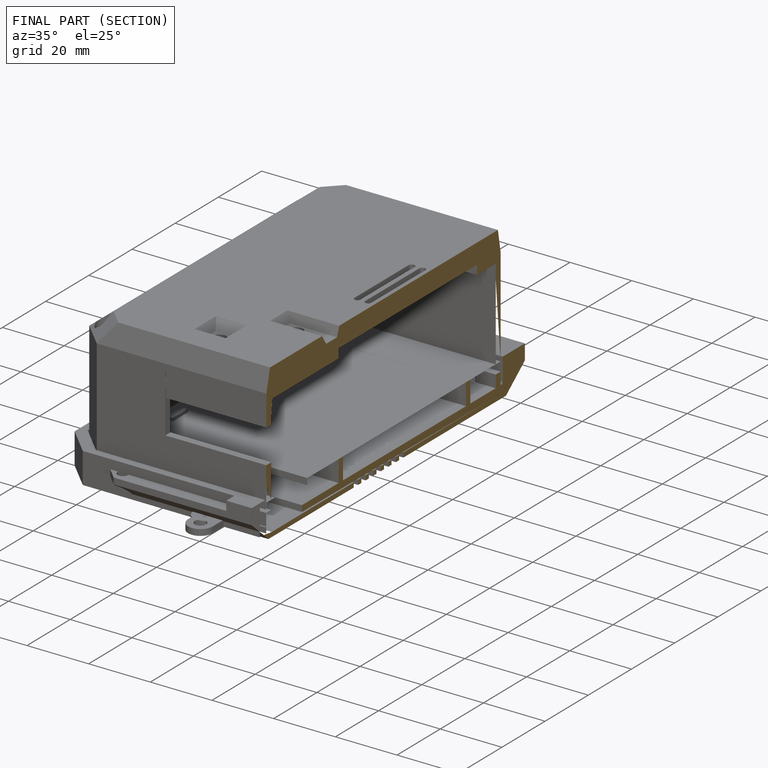
[diagram: finished part — half-section view (interior)]
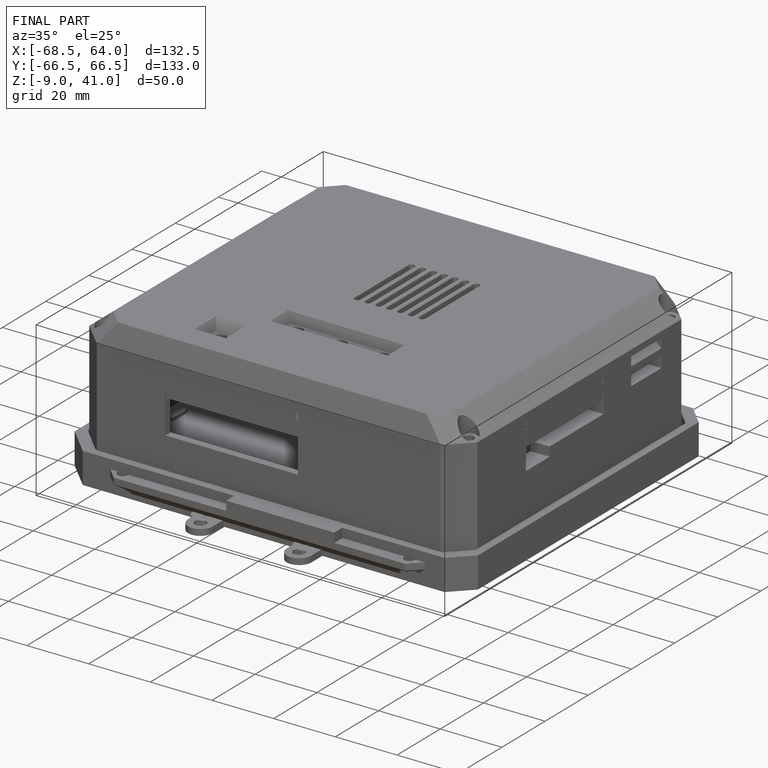
[diagram: finished part — iso view with bounding-box wireframe]
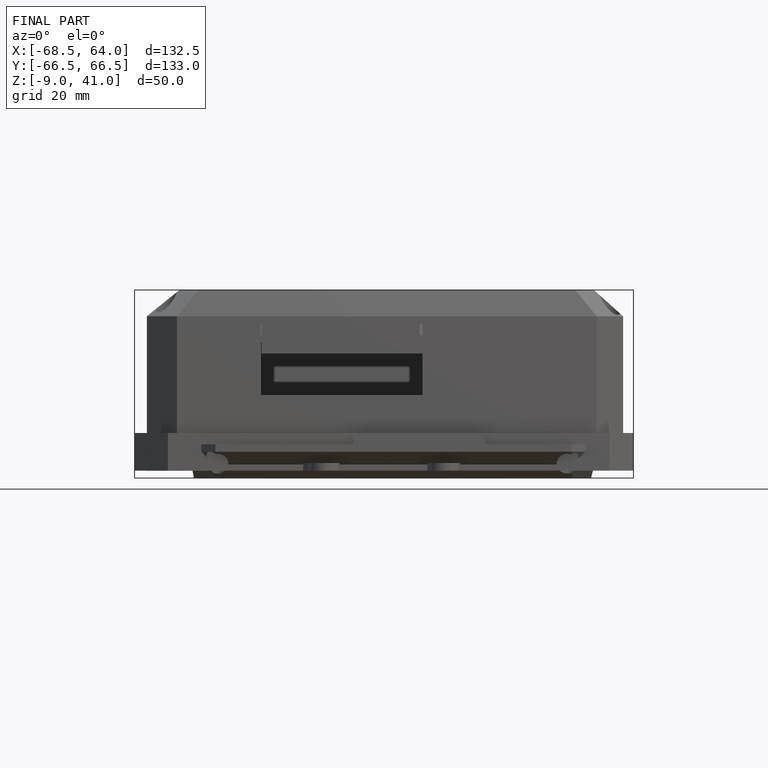
[diagram: finished part — front view with bounding-box wireframe]
